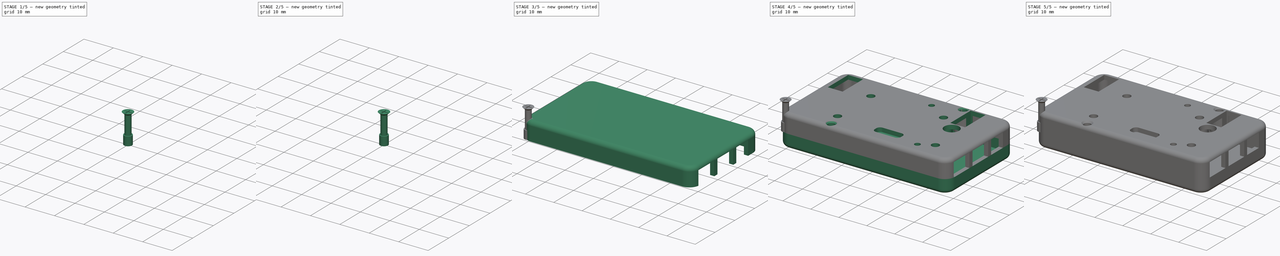
[diagram: build sequence overview — one tinted view per stage of 5, left to right]
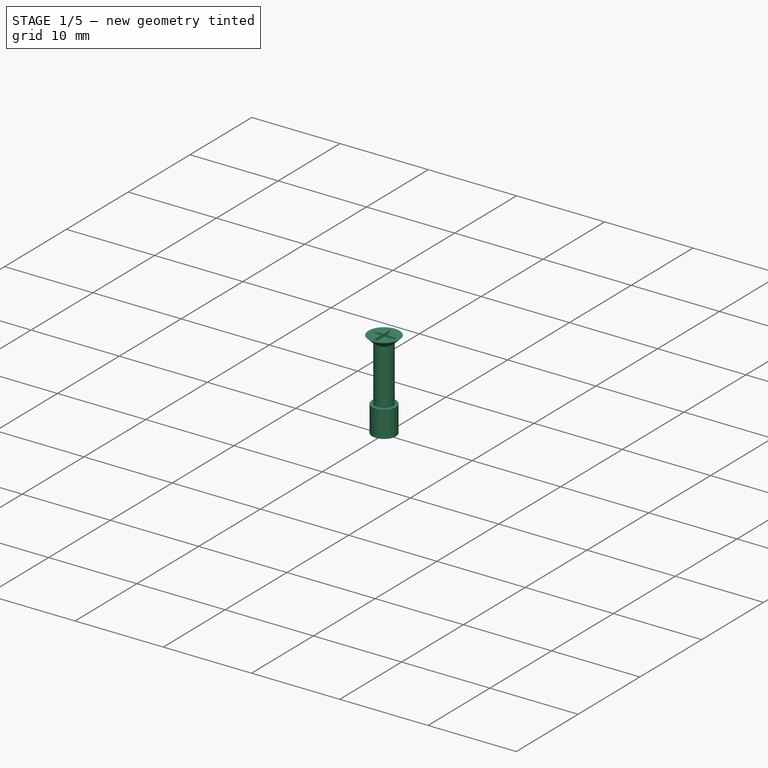
[diagram: stage 1 of 5 — iso view after this stage's code; geometry added in this stage tinted green]
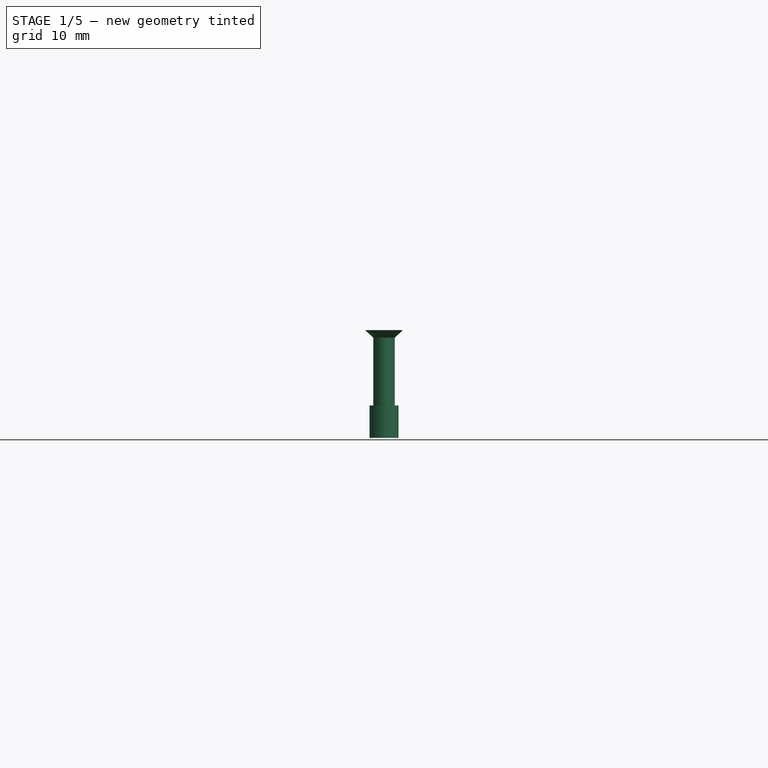
[diagram: stage 1 of 5 — front view after this stage's code; geometry added in this stage tinted green]
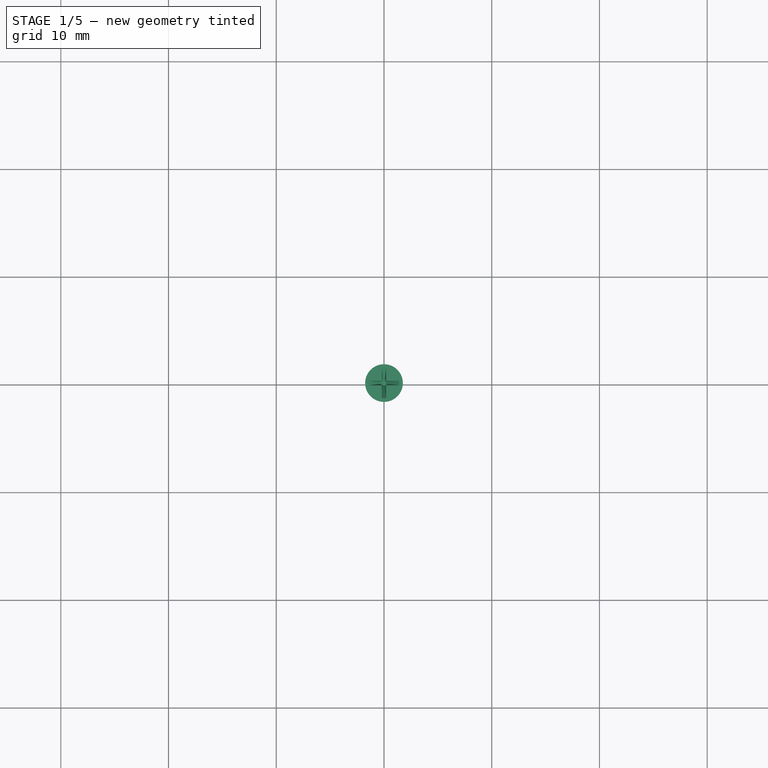
[diagram: stage 1 of 5 — top view after this stage's code; geometry added in this stage tinted green]
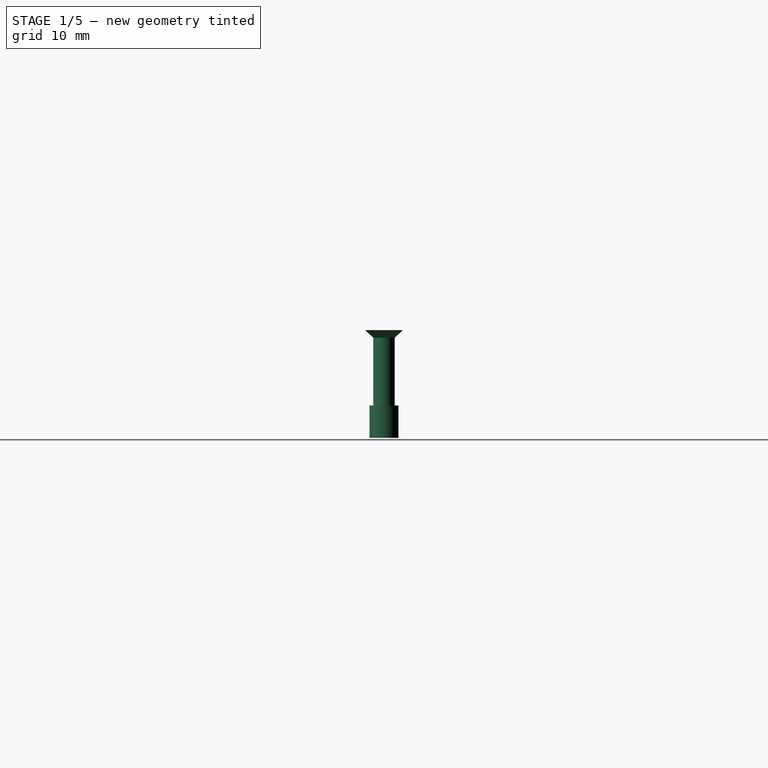
[diagram: stage 1 of 5 — right view after this stage's code; geometry added in this stage tinted green]
FCSTD DOCUMENT  (FreeCAD 0.21R33771 (Git))
Label: enclosure
License: All rights reserved
LicenseURL: https://en.wikipedia.org/wiki/All_rights_reserved
objects: Sketcher::SketchObject×30, PartDesign::AdditiveCylinder×30, PartDesign::Body×26, PartDesign::SubtractiveCylinder×18, PartDesign::AdditiveCone×10, PartDesign::SubtractiveLoft×10, PartDesign::Pad×6, PartDesign::SubtractiveBox×6, PartDesign::AdditiveBox×6, PartDesign::Pocket×4, PartDesign::Thickness×3, PartDesign::Chamfer×3, App::DocumentObjectGroup×3, PartDesign::SubtractiveCone×2, PartDesign::Fillet×2, Spreadsheet::Sheet×1, App::VRMLObject×1
note: 256 computed .brp shape members not serialized (recipe doc carries the construction recipe); baked Part::Feature solids carry a one-line shape summary decoded from their .brp

FEATURE [PartDesign::Body] Body007  label="Nut006"
  Group = -> [Cylinder016,Cylinder017]
  Origin = -> Origin007
  Placement = pos=(42.8,5.5,-4.9) rot=(0,0,1;0rad)
  Tip = -> Cylinder017
FEATURE [PartDesign::AdditiveCylinder] Cylinder018
  Angle = 360
  AttacherType = Attacher::AttachEngine3D
  FirstAngle = 0
  Height = 3
  MapMode = 5
  Radius = 1.35
  SecondAngle = 0
  Support = -> [XY_Plane008]
FEATURE [PartDesign::SubtractiveCylinder] Cylinder019
  Angle = 360
  AttacherType = Attacher::AttachEngine3D
  BaseFeature = -> Cylinder018
  FirstAngle = 0
  Height = 3
  MapMode = 5
  Radius = 1
  SecondAngle = 0
  Support = -> [XY_Plane008]
FEATURE [PartDesign::Body] Body008  label="Nut007"
  Group = -> [Cylinder018,Cylinder019]
  Origin = -> Origin008
  Placement = pos=(42.8,25.5,-4.9) rot=(0,0,1;0rad)
  Tip = -> Cylinder019
FEATURE [PartDesign::AdditiveCylinder] Cylinder020
  Angle = 360
  AttacherType = Attacher::AttachEngine3D
  FirstAngle = 0
  Height = 3
  MapMode = 5
  Radius = 1.35
  SecondAngle = 0
  Support = -> [XY_Plane009]
FEATURE [PartDesign::SubtractiveCylinder] Cylinder021
  Angle = 360
  AttacherType = Attacher::AttachEngine3D
  BaseFeature = -> Cylinder020
  FirstAngle = 0
  Height = 3
  MapMode = 5
  Radius = 1
  SecondAngle = 0
  Support = -> [XY_Plane009]
FEATURE [PartDesign::Body] Body009  label="Nut008"
  Group = -> [Cylinder020,Cylinder021]
  Origin = -> Origin009
  Placement = pos=(7.8,25.5,-4.9) rot=(0,0,1;0rad)
  Tip = -> Cylinder021
FEATURE [PartDesign::AdditiveCylinder] Cylinder022
  Angle = 360
  AttacherType = Attacher::AttachEngine3D
  AttachmentOffset = pos=(0,0,4) rot=(0,0,1;0rad)
  FirstAngle = 0
  Height = 5.5
  MapMode = 2
  Placement = pos=(0,0,4) rot=(0,0,1;0rad)
  Radius = 1
  SecondAngle = 0
  Support = -> [XY_Plane010]
FEATURE [PartDesign::AdditiveCone] Cone002
  Angle = 360
  AttacherType = Attacher::AttachEngine3D
  AttachmentOffset = pos=(0,0,9.3) rot=(0,0,1;0rad)
  BaseFeature = -> Cylinder022
  Height = 0.7
  MapMode = 5
  Placement = pos=(0,0,9.3) rot=(0,0,1;0rad)
  Radius1 = 1
  Radius2 = 1.75
  Support = -> [XY_Plane010]
FEATURE [Sketcher::SketchObject] Sketch008
  FullyConstrained = true
  MapMode = 5
  Placement = pos=(0,0,10) rot=(0,0,1;0rad)
  Support = -> [Cone002]
  sketch-geometry (18):
    g0: LineSegment StartX=-0.2 StartY=0.2 StartZ=0 EndX=-0.2 EndY=1.4 EndZ=0
    g1: LineSegment StartX=-0.2 StartY=1.4 StartZ=0 EndX=0.2 EndY=1.4 EndZ=0
    g2: LineSegment StartX=0.2 StartY=1.4 StartZ=0 EndX=0.2 EndY=0.2 EndZ=0
    g3: LineSegment StartX=0.2 StartY=0.2 StartZ=0 EndX=1.4 EndY=0.2 EndZ=0
    g4: LineSegment StartX=1.4 StartY=0.2 StartZ=0 EndX=1.4 EndY=-0.2 EndZ=0
    g5: LineSegment StartX=1.4 StartY=-0.2 StartZ=0 EndX=0.2 EndY=-0.2 EndZ=0
    g6: LineSegment StartX=0.2 StartY=-0.2 StartZ=0 EndX=0.2 EndY=-1.4 EndZ=0
    g7: LineSegment StartX=0.2 StartY=-1.4 StartZ=0 EndX=-0.2 EndY=-1.4 EndZ=0
    g8: LineSegment StartX=-0.2 StartY=-1.4 StartZ=0 EndX=-0.2 EndY=-0.2 EndZ=0
    g9: LineSegment StartX=-0.2 StartY=-0.2 StartZ=0 EndX=-1.4 EndY=-0.2 EndZ=0
    g10: LineSegment StartX=-1.4 StartY=-0.2 StartZ=0 EndX=-1.4 EndY=0.2 EndZ=0
    g11: LineSegment StartX=-1.4 StartY=0.2 StartZ=0 EndX=-0.2 EndY=0.2 EndZ=0
    g12: LineSegment StartX=-0.2 StartY=0.2 StartZ=0 EndX=0.2 EndY=0.2 EndZ=0
    g13: LineSegment StartX=0.2 StartY=0.2 StartZ=0 EndX=0.2 EndY=-0.2 EndZ=0
    g14: LineSegment StartX=0.2 StartY=-0.2 StartZ=0 EndX=-0.2 EndY=-0.2 EndZ=0
    g15: LineSegment StartX=-0.2 StartY=-0.2 StartZ=0 EndX=-0.2 EndY=0.2 EndZ=0
    g16: LineSegment StartX=-0.2 StartY=0.2 StartZ=0 EndX=0.2 EndY=-0.2 EndZ=0
    g17: LineSegment StartX=-0.2 StartY=-0.2 StartZ=0 EndX=0.2 EndY=0.2 EndZ=0
  constraints (48):
    c: Vertical(g0)
    c: Coincident(g0,g1)
    c: Horizontal(g1)
    c: Coincident(g1,g2)
    c: Vertical(g2)
    c: Coincident(g2,g3)
    c: Horizontal(g3)
    c: Coincident(g3,g4)
    c: Vertical(g4)
    c: Coincident(g4,g5)
    c: Horizontal(g5)
    c: Coincident(g5,g6)
    c: Vertical(g6)
    c: Coincident(g6,g7)
    c: Horizontal(g7)
    c: Coincident(g7,g8)
    c: Vertical(g8)
    c: Coincident(g8,g9)
    c: Horizontal(g9)
    c: Coincident(g9,g10)
    c: Vertical(g10)
    c: Coincident(g10,g11)
    c: Coincident(g11,g0)
    c: Horizontal(g11)
    c: Coincident(g12,g13)
    c: Coincident(g13,g14)
    c: Coincident(g14,g15)
    c: Coincident(g15,g12)
    c: Horizontal(g12)
    c: Horizontal(g14)
    c: Vertical(g13)
    c: Vertical(g15)
    c: Coincident(g12,g0)
    c: Coincident(g13,g5)
    c: Coincident(g8,g14)
    c: Coincident(g2,g12)
    c: Equal(g12,g13)
    c: Coincident(g16,g0)
    c: Coincident(g16,g5)
    c: Coincident(g17,g8)
    c: Coincident(g17,g2)
    c: PointOnObject(g-1,g17)
    c: PointOnObject(g-1,g16)
    c: DistanceX(g12,g12) = 0.4
    c: Equal(g2,g11)
    c: Equal(g11,g8)
    c: Equal(g8,g5)
    c: DistanceY(g2,g2) = 1.2
FEATURE [Sketcher::SketchObject] Sketch009
  AttachmentOffset = pos=(0,0,-1) rot=(0,0,1;0rad)
  FullyConstrained = true
  MapMode = 5
  Placement = pos=(0,0,9) rot=(0,0,1;0rad)
  Support = -> [Cone002]
  sketch-geometry (6):
    g0: LineSegment StartX=-0.2 StartY=0.2 StartZ=0 EndX=0.2 EndY=0.2 EndZ=0
    g1: LineSegment StartX=0.2 StartY=0.2 StartZ=0 EndX=0.2 EndY=-0.2 EndZ=0
    g2: LineSegment StartX=0.2 StartY=-0.2 StartZ=0 EndX=-0.2 EndY=-0.2 EndZ=0
    g3: LineSegment StartX=-0.2 StartY=-0.2 StartZ=0 EndX=-0.2 EndY=0.2 EndZ=0
    g4: LineSegment StartX=-0.2 StartY=0.2 StartZ=0 EndX=0.2 EndY=-0.2 EndZ=0
    g5: LineSegment StartX=-0.2 StartY=-0.2 StartZ=0 EndX=0.2 EndY=0.2 EndZ=0
  constraints (16):
    c: Coincident(g0,g1)
    c: Coincident(g1,g2)
    c: Coincident(g2,g3)
    c: Coincident(g3,g0)
    c: Horizontal(g0)
    c: Horizontal(g2)
    c: Vertical(g1)
    c: Vertical(g3)
    c: Equal(g0,g1)
    c: PointOnObject(g-1,g5)
    c: PointOnObject(g-1,g4)
    c: DistanceX(g0,g0) = 0.4
    c: Coincident(g5,g0)
    c: Coincident(g4,g0)
    c: Coincident(g4,g1)
    c: Coincident(g5,g2)
FEATURE [PartDesign::SubtractiveLoft] SubtractiveLoft
  BaseFeature = -> Cone002
  Closed = false
  Placement = pos=(0,0,9.3) rot=(0,0,1;0rad)
  Profile = -> Sketch008
  Ruled = false
  Sections = -> [Sketch009]
FEATURE [PartDesign::Body] Body010  label="ScrewP2.3_001"
  Group = -> [Cylinder022,Cone002,Sketch008,Sketch009,SubtractiveLoft]
  Origin = -> Origin010
  Placement = pos=(16,0.5,-3.5) rot=(0,0,1;0rad)
  Tip = -> SubtractiveLoft
FEATURE [PartDesign::AdditiveCylinder] Cylinder023
  Angle = 360
  AttacherType = Attacher::AttachEngine3D
  FirstAngle = 0
  Height = 9.5
  MapMode = 2
  Radius = 1
  SecondAngle = 0
  Support = -> [XY_Plane011]
FEATURE [PartDesign::AdditiveCone] Cone003
  Angle = 360
  AttacherType = Attacher::AttachEngine3D
  AttachmentOffset = pos=(0,0,9.3) rot=(0,0,1;0rad)
  BaseFeature = -> Cylinder023
  Height = 0.7
  MapMode = 5
  Placement = pos=(0,0,9.3) rot=(0,0,1;0rad)
  Radius1 = 1
  Radius2 = 1.75
  Support = -> [XY_Plane011]
FEATURE [Sketcher::SketchObject] Sketch010
  FullyConstrained = true
  MapMode = 5
  Placement = pos=(0,0,10) rot=(0,0,1;0rad)
  Support = -> [Cone003]
  sketch-geometry (18):
    g0: LineSegment StartX=-0.2 StartY=0.2 StartZ=0 EndX=-0.2 EndY=1.4 EndZ=0
    g1: LineSegment StartX=-0.2 StartY=1.4 StartZ=0 EndX=0.2 EndY=1.4 EndZ=0
    g2: LineSegment StartX=0.2 StartY=1.4 StartZ=0 EndX=0.2 EndY=0.2 EndZ=0
    g3: LineSegment StartX=0.2 StartY=0.2 StartZ=0 EndX=1.4 EndY=0.2 EndZ=0
    g4: LineSegment StartX=1.4 StartY=0.2 StartZ=0 EndX=1.4 EndY=-0.2 EndZ=0
    g5: LineSegment StartX=1.4 StartY=-0.2 StartZ=0 EndX=0.2 EndY=-0.2 EndZ=0
    g6: LineSegment StartX=0.2 StartY=-0.2 StartZ=0 EndX=0.2 EndY=-1.4 EndZ=0
    g7: LineSegment StartX=0.2 StartY=-1.4 StartZ=0 EndX=-0.2 EndY=-1.4 EndZ=0
    g8: LineSegment StartX=-0.2 StartY=-1.4 StartZ=0 EndX=-0.2 EndY=-0.2 EndZ=0
    g9: LineSegment StartX=-0.2 StartY=-0.2 StartZ=0 EndX=-1.4 EndY=-0.2 EndZ=0
    g10: LineSegment StartX=-1.4 StartY=-0.2 StartZ=0 EndX=-1.4 EndY=0.2 EndZ=0
    g11: LineSegment StartX=-1.4 StartY=0.2 StartZ=0 EndX=-0.2 EndY=0.2 EndZ=0
    g12: LineSegment StartX=-0.2 StartY=0.2 StartZ=0 EndX=0.2 EndY=0.2 EndZ=0
    g13: LineSegment StartX=0.2 StartY=0.2 StartZ=0 EndX=0.2 EndY=-0.2 EndZ=0
    g14: LineSegment StartX=0.2 StartY=-0.2 StartZ=0 EndX=-0.2 EndY=-0.2 EndZ=0
    g15: LineSegment StartX=-0.2 StartY=-0.2 StartZ=0 EndX=-0.2 EndY=0.2 EndZ=0
    g16: LineSegment StartX=-0.2 StartY=0.2 StartZ=0 EndX=0.2 EndY=-0.2 EndZ=0
    g17: LineSegment StartX=-0.2 StartY=-0.2 StartZ=0 EndX=0.2 EndY=0.2 EndZ=0
  constraints (48):
    c: Vertical(g0)
    c: Coincident(g0,g1)
    c: Horizontal(g1)
    c: Coincident(g1,g2)
    c: Vertical(g2)
    c: Coincident(g2,g3)
    c: Horizontal(g3)
    c: Coincident(g3,g4)
    c: Vertical(g4)
    c: Coincident(g4,g5)
    c: Horizontal(g5)
    c: Coincident(g5,g6)
    c: Vertical(g6)
    c: Coincident(g6,g7)
    c: Horizontal(g7)
    c: Coincident(g7,g8)
    c: Vertical(g8)
    c: Coincident(g8,g9)
    c: Horizontal(g9)
    c: Coincident(g9,g10)
    c: Vertical(g10)
    c: Coincident(g10,g11)
    c: Coincident(g11,g0)
    c: Horizontal(g11)
    c: Coincident(g12,g13)
    c: Coincident(g13,g14)
    c: Coincident(g14,g15)
    c: Coincident(g15,g12)
    c: Horizontal(g12)
    c: Horizontal(g14)
    c: Vertical(g13)
    c: Vertical(g15)
    c: Coincident(g12,g0)
    c: Coincident(g13,g5)
    c: Coincident(g8,g14)
    c: Coincident(g2,g12)
    c: Equal(g12,g13)
    c: Coincident(g16,g0)
    c: Coincident(g16,g5)
    c: Coincident(g17,g8)
    c: Coincident(g17,g2)
    c: PointOnObject(g-1,g17)
    c: PointOnObject(g-1,g16)
    c: DistanceX(g12,g12) = 0.4
    c: Equal(g2,g11)
    c: Equal(g11,g8)
    c: Equal(g8,g5)
    c: DistanceY(g2,g2) = 1.2
FEATURE [Sketcher::SketchObject] Sketch011
  AttachmentOffset = pos=(0,0,-1) rot=(0,0,1;0rad)
  FullyConstrained = true
  MapMode = 5
  Placement = pos=(0,0,9) rot=(0,0,1;0rad)
  Support = -> [Cone003]
  sketch-geometry (6):
    g0: LineSegment StartX=-0.2 StartY=0.2 StartZ=0 EndX=0.2 EndY=0.2 EndZ=0
    g1: LineSegment StartX=0.2 StartY=0.2 StartZ=0 EndX=0.2 EndY=-0.2 EndZ=0
    g2: LineSegment StartX=0.2 StartY=-0.2 StartZ=0 EndX=-0.2 EndY=-0.2 EndZ=0
    g3: LineSegment StartX=-0.2 StartY=-0.2 StartZ=0 EndX=-0.2 EndY=0.2 EndZ=0
    g4: LineSegment StartX=-0.2 StartY=0.2 StartZ=0 EndX=0.2 EndY=-0.2 EndZ=0
    g5: LineSegment StartX=-0.2 StartY=-0.2 StartZ=0 EndX=0.2 EndY=0.2 EndZ=0
  constraints (16):
    c: Coincident(g0,g1)
    c: Coincident(g1,g2)
    c: Coincident(g2,g3)
    c: Coincident(g3,g0)
    c: Horizontal(g0)
    c: Horizontal(g2)
    c: Vertical(g1)
    c: Vertical(g3)
    c: Equal(g0,g1)
    c: PointOnObject(g-1,g5)
    c: PointOnObject(g-1,g4)
    c: DistanceX(g0,g0) = 0.4
    c: Coincident(g5,g0)
    c: Coincident(g4,g0)
    c: Coincident(g4,g1)
    c: Coincident(g5,g2)
FEATURE [PartDesign::SubtractiveLoft] SubtractiveLoft001
  BaseFeature = -> Cone003
  Closed = false
  Placement = pos=(0,0,9.3) rot=(0,0,1;0rad)
  Profile = -> Sketch010
  Ruled = false
  Sections = -> [Sketch011]
FEATURE [PartDesign::Body] Body011  label="ScrewP2.3_002"
  Group = -> [Cylinder023,Cone003,Sketch010,Sketch011,SubtractiveLoft001]
  Origin = -> Origin011
  Placement = pos=(42.25,30.5,-3.5) rot=(0,0,1;0rad)
  Tip = -> SubtractiveLoft001
FEATURE [App::VRMLObject] bionico
  Resources = bionico/C_0402_1005Metric.wrl | bionico/ | bionico/ | bionico/ | bionico/ | bionico/ | bionico/ | bionico/ | bionico/ | bionico/ | bionico/ | bionico/ | bionico/ | bionico/ | bionico/ | bionico/ | bionico/ | bionico/ | bionico/ | bionico/ | bionico/
FEATURE [PartDesign::AdditiveBox] Box010
  AttacherType = Attacher::AttachEngine3D
  AttachmentOffset = pos=(-11.6,-1.7,-5) rot=(0,0,1;0rad)
  Height = 11.5
  Length = 80.7
  MapMode = 5
  Placement = pos=(-11.6,-1.7,-5) rot=(0,0,1;0rad)
  Support = -> [XY_Plane012]
  Width = 44.2
FEATURE [PartDesign::Fillet] Fillet
  Base = -> Box010 [Edge1,Edge3,Edge5,Edge7]
  BaseFeature = -> Box010
  Placement = pos=(-11.6,-1.7,-5) rot=(0,0,1;0rad)
  Radius = 5
  SupportTransform = false
  UseAllEdges = false
FEATURE [PartDesign::Thickness] Thickness002
  Base = -> Fillet [Face2,Face5]
  BaseFeature = -> Fillet
  Intersection = false
  Join = 0
  Mode = 0
  SupportTransform = false
  Value = 1.5
FEATURE [Sketcher::SketchObject] Sketch012
  AttachmentOffset = pos=(0,0,6.5) rot=(0,0,1;0rad)
  FullyConstrained = true
  MapMode = 5
  Placement = pos=(0,0,6.5) rot=(0,0,1;0rad)
  Support = -> [XY_Plane012]
  sketch-geometry (16):
    g0: LineSegment StartX=-6.6 StartY=-1.7 StartZ=0 EndX=64.1 EndY=-1.7 EndZ=0
    g1: LineSegment StartX=69.1 StartY=3.3 StartZ=0 EndX=69.1 EndY=37.5 EndZ=0
    g2: LineSegment StartX=64.1 StartY=42.5 StartZ=0 EndX=-6.6 EndY=42.5 EndZ=0
    g3: LineSegment StartX=-11.6 StartY=37.5 StartZ=0 EndX=-11.6 EndY=3.3 EndZ=0
    g4: ArcOfCircle CenterX=-6.6 CenterY=37.5 CenterZ=0 NormalX=0 NormalY=0 NormalZ=1 AngleXU=0 Radius=5 StartAngle=1.5708 EndAngle=3.14159
    g5: ArcOfCircle CenterX=64.1 CenterY=37.5 CenterZ=0 NormalX=0 NormalY=0 NormalZ=1 AngleXU=0 Radius=5 StartAngle=0 EndAngle=1.5708
    g6: ArcOfCircle CenterX=64.1 CenterY=3.3 CenterZ=0 NormalX=0 NormalY=0 NormalZ=1 AngleXU=0 Radius=5 StartAngle=4.71239 EndAngle=6.28319
    g7: ArcOfCircle CenterX=-6.6 CenterY=3.3 CenterZ=0 NormalX=0 NormalY=0 NormalZ=1 AngleXU=0 Radius=5 StartAngle=3.14159 EndAngle=4.71239
    g8: LineSegment StartX=-6.6 StartY=47.5 StartZ=0 EndX=64.1 EndY=47.5 EndZ=0
    g9: LineSegment StartX=74.1 StartY=37.5 StartZ=0 EndX=74.1 EndY=3.3 EndZ=0
    g10: LineSegment StartX=64.1 StartY=-6.7 StartZ=0 EndX=-6.6 EndY=-6.7 EndZ=0
    g11: LineSegment StartX=-16.6 StartY=3.3 StartZ=0 EndX=-16.6 EndY=37.5 EndZ=0
    g12: ArcOfCircle CenterX=-6.6 CenterY=37.5 CenterZ=0 NormalX=0 NormalY=0 NormalZ=1 AngleXU=0 Radius=10 StartAngle=1.5708 EndAngle=3.14159
    g13: ArcOfCircle CenterX=64.1 CenterY=37.5 CenterZ=0 NormalX=0 NormalY=0 NormalZ=1 AngleXU=0 Radius=10 StartAngle=0 EndAngle=1.5708
    g14: ArcOfCircle CenterX=64.1 CenterY=3.3 CenterZ=0 NormalX=0 NormalY=0 NormalZ=1 AngleXU=0 Radius=10 StartAngle=4.71239 EndAngle=6.28319
    g15: ArcOfCircle CenterX=-6.6 CenterY=3.3 CenterZ=0 NormalX=0 NormalY=0 NormalZ=1 AngleXU=0 Radius=10 StartAngle=3.14159 EndAngle=4.71239
  constraints (36):
    c: Horizontal(g0)
    c: Horizontal(g2)
    c: Vertical(g1)
    c: Vertical(g3)
    c: Tangent(g3,g4) = -1.5708
    c: Tangent(g2,g4) = -1.5708
    c: Tangent(g2,g5) = -1.5708
    c: Tangent(g1,g5) = -1.5708
    c: Tangent(g1,g6) = -1.5708
    c: Tangent(g0,g6) = -1.5708
    c: Tangent(g3,g7) = -1.5708
    c: Tangent(g0,g7) = -1.5708
    c: Equal(g4,g7)
    c: Equal(g4,g6)
    c: Equal(g4,g5)
    c: Radius(g4) = 5
    c: DistanceX(g3,g1) = 80.7
    c: DistanceY(g0,g2) = 44.2
    c: DistanceY(g0,g-1) = 1.7
    c: DistanceX(g3,g-1) = 11.6
    c: Horizontal(g8)
    c: Vertical(g9)
    c: Tangent(g11,g12) = 1.5708
    c: Tangent(g8,g12) = 1.5708
    c: Tangent(g8,g13) = 1.5708
    c: Tangent(g9,g13) = 1.5708
    c: Tangent(g9,g14) = 1.5708
    c: Tangent(g10,g14) = 1.5708
    c: Tangent(g10,g15) = 1.5708
    c: Tangent(g11,g15) = 1.5708
    c: Coincident(g15,g7)
    c: Coincident(g4,g12)
    c: Coincident(g5,g13)
    c: Coincident(g14,g6)
    c: Equal(g12,g15)
    c: DistanceX(g1,g9) = 5
FEATURE [PartDesign::Pad] Pad004
  BaseFeature = -> Thickness002
  Direction = (0,0,1)
  Length = 1.5
  Length2 = 10
  Profile = -> Sketch012
  ReferenceAxis = -> Sketch012 [N_Axis]
  Type = 0
FEATURE [PartDesign::AdditiveCylinder] Cylinder024
  Angle = 360
  AttacherType = Attacher::AttachEngine3D
  AttachmentOffset = pos=(-10.6,-0.7,-5) rot=(0,0,1;0rad)
  BaseFeature = -> Pad004
  FirstAngle = 0
  Height = 13
  MapMode = 5
  Placement = pos=(-10.6,-0.7,-5) rot=(0,0,1;0rad)
  Radius = 2.65
  SecondAngle = 0
  Support = -> [XY_Plane012]
FEATURE [PartDesign::AdditiveCylinder] Cylinder025
  Angle = 360
  AttacherType = Attacher::AttachEngine3D
  AttachmentOffset = pos=(68.1,-0.7,-5) rot=(0,0,1;0rad)
  BaseFeature = -> Cylinder024
  FirstAngle = 0
  Height = 13
  MapMode = 5
  Placement = pos=(68.1,-0.7,-5) rot=(0,0,1;0rad)
  Radius = 2.65
  SecondAngle = 0
  Support = -> [XY_Plane012]
FEATURE [PartDesign::AdditiveCylinder] Cylinder026
  Angle = 360
  AttacherType = Attacher::AttachEngine3D
  AttachmentOffset = pos=(-10.6,41.5,-5) rot=(0,0,1;0rad)
  BaseFeature = -> Cylinder025
  FirstAngle = 0
  Height = 13
  MapMode = 5
  Placement = pos=(-10.6,41.5,-5) rot=(0,0,1;0rad)
  Radius = 2.65
  SecondAngle = 0
  Support = -> [XY_Plane012]
FEATURE [PartDesign::AdditiveCylinder] Cylinder027
  Angle = 360
  AttacherType = Attacher::AttachEngine3D
  AttachmentOffset = pos=(68.1,41.5,-5) rot=(0,0,1;0rad)
  BaseFeature = -> Cylinder026
  FirstAngle = 0
  Height = 13
  MapMode = 5
  Placement = pos=(68.1,41.5,-5) rot=(0,0,1;0rad)
  Radius = 2.65
  SecondAngle = 0
  Support = -> [XY_Plane012]
FEATURE [PartDesign::SubtractiveCylinder] Cylinder028
  Angle = 360
  AttacherType = Attacher::AttachEngine3D
  AttachmentOffset = pos=(-10.6,-0.7,-5) rot=(0,0,1;0rad)
  BaseFeature = -> Cylinder027
  FirstAngle = 0
  Height = 13
  MapMode = 5
  Placement = pos=(-10.6,-0.7,-5) rot=(0,0,1;0rad)
  Radius = 1.35
  SecondAngle = 0
  Support = -> [XY_Plane012]
FEATURE [PartDesign::SubtractiveCylinder] Cylinder029
  Angle = 360
  AttacherType = Attacher::AttachEngine3D
  AttachmentOffset = pos=(-10.6,41.5,-5) rot=(0,0,1;0rad)
  BaseFeature = -> Cylinder028
  FirstAngle = 0
  Height = 13
  MapMode = 5
  Placement = pos=(-10.6,41.5,-5) rot=(0,0,1;0rad)
  Radius = 1.37
  SecondAngle = 0
  Support = -> [XY_Plane012]
FEATURE [PartDesign::SubtractiveCylinder] Cylinder030
  Angle = 360
  AttacherType = Attacher::AttachEngine3D
  AttachmentOffset = pos=(68.1,-0.7,-5) rot=(0,0,1;0rad)
  BaseFeature = -> Cylinder029
  FirstAngle = 0
  Height = 13
  MapMode = 5
  Placement = pos=(68.1,-0.7,-5) rot=(0,0,1;0rad)
  Radius = 1.35
  SecondAngle = 0
  Support = -> [XY_Plane012]
FEATURE [PartDesign::SubtractiveCylinder] Cylinder031
  Angle = 360
  AttacherType = Attacher::AttachEngine3D
  AttachmentOffset = pos=(68.1,41.5,-5) rot=(0,0,1;0rad)
  BaseFeature = -> Cylinder030
  FirstAngle = 0
  Height = 13
  MapMode = 5
  Placement = pos=(68.1,41.5,-5) rot=(0,0,1;0rad)
  Radius = 1.35
  SecondAngle = 0
  Support = -> [XY_Plane012]
FEATURE [PartDesign::Body] Body012  label="Hatch"
  Group = -> [Box010,Fillet,Thickness002,Sketch012,Pad004,Cylinder024,Cylinder025,Cylinder026,Cylinder027,Cylinder028,Cylinder029,Cylinder030,Cylinder031]
  Origin = -> Origin012
  Tip = -> Cylinder031
FEATURE [Sketcher::SketchObject] Sketch013
  AttachmentOffset = pos=(0,0,8) rot=(0,0,1;0rad)
  FullyConstrained = true
  MapMode = 5
  Placement = pos=(0,0,8) rot=(0,0,1;0rad)
  Support = -> [XY_Plane013]
  sketch-geometry (35):
    g0: LineSegment StartX=-10.6 StartY=41.5 StartZ=0 EndX=68.1 EndY=41.5 EndZ=0
    g1: LineSegment StartX=68.1 StartY=41.5 StartZ=0 EndX=68.1 EndY=-0.7 EndZ=0
    g2: LineSegment StartX=68.1 StartY=-0.7 StartZ=0 EndX=-10.6 EndY=-0.7 EndZ=0
    g3: LineSegment StartX=-10.6 StartY=-0.7 StartZ=0 EndX=-10.6 EndY=41.5 EndZ=0
    g4: ArcOfCircle CenterX=-10.6 CenterY=41.5 CenterZ=0 NormalX=0 NormalY=0 NormalZ=1 AngleXU=0 Radius=2.85 StartAngle=4.48534 EndAngle=6.51023
    g5: ArcOfCircle CenterX=68.1 CenterY=41.5 CenterZ=0 NormalX=0 NormalY=0 NormalZ=1 AngleXU=0 Radius=2.85 StartAngle=2.91454 EndAngle=4.93944
    g6: ArcOfCircle CenterX=68.1 CenterY=-0.7 CenterZ=0 NormalX=0 NormalY=0 NormalZ=1 AngleXU=0 Radius=2.85 StartAngle=1.34375 EndAngle=3.36864
    g7: ArcOfCircle CenterX=-10.6 CenterY=-0.7 CenterZ=0 NormalX=0 NormalY=0 NormalZ=1 AngleXU=0 Radius=2.85 StartAngle=6.05614 EndAngle=8.08103
    g8: LineSegment StartX=-6.6 StartY=37.5 StartZ=0 EndX=64.1 EndY=37.5 EndZ=0
    g9: LineSegment StartX=64.1 StartY=37.5 StartZ=0 EndX=64.1 EndY=3.3 EndZ=0
    g10: LineSegment StartX=64.1 StartY=3.3 StartZ=0 EndX=-6.6 EndY=3.3 EndZ=0
    g11: LineSegment StartX=-6.6 StartY=3.3 StartZ=0 EndX=-6.6 EndY=37.5 EndZ=0
    g12: LineSegment StartX=-10.6 StartY=41.5 StartZ=0 EndX=-6.6 EndY=37.5 EndZ=0
    g13: LineSegment StartX=64.1 StartY=3.3 StartZ=0 EndX=68.1 EndY=-0.7 EndZ=0
    g14: LineSegment StartX=68.1 StartY=41.5 StartZ=0 EndX=64.1 EndY=37.5 EndZ=0
    g15: LineSegment StartX=-10.6 StartY=-0.7 StartZ=0 EndX=-6.6 EndY=3.3 EndZ=0
    g16: ArcOfCircle CenterX=-6.6 CenterY=37.5 CenterZ=0 NormalX=0 NormalY=0 NormalZ=1 AngleXU=0 Radius=4.8 StartAngle=1.5708 EndAngle=1.82846
    g17: ArcOfCircle CenterX=-6.6 CenterY=37.5 CenterZ=0 NormalX=0 NormalY=0 NormalZ=1 AngleXU=0 Radius=4.8 StartAngle=2.88393 EndAngle=3.14159
    g18: LineSegment StartX=-6.6 StartY=42.3 StartZ=0 EndX=64.1 EndY=42.3 EndZ=0
    g19: ArcOfCircle CenterX=64.1 CenterY=37.5 CenterZ=0 NormalX=0 NormalY=0 NormalZ=1 AngleXU=0 Radius=4.8 StartAngle=1.31313 EndAngle=1.5708
    g20: ArcOfCircle CenterX=64.1 CenterY=37.5 CenterZ=0 NormalX=0 NormalY=0 NormalZ=1 AngleXU=0 Radius=4.8 StartAngle=5e-16 EndAngle=0.257664
    g21: LineSegment StartX=68.9 StartY=37.5 StartZ=0 EndX=68.9 EndY=3.3 EndZ=0
    g22: ArcOfCircle CenterX=64.1 CenterY=3.3 CenterZ=0 NormalX=0 NormalY=0 NormalZ=1 AngleXU=0 Radius=4.8 StartAngle=6.02552 EndAngle=6.28319
    g23: ArcOfCircle CenterX=64.1 CenterY=3.3 CenterZ=0 NormalX=0 NormalY=0 NormalZ=1 AngleXU=0 Radius=4.8 StartAngle=4.71239 EndAngle=4.97005
    g24: LineSegment StartX=64.1 StartY=-1.5 StartZ=0 EndX=-6.6 EndY=-1.5 EndZ=0
    g25: ArcOfCircle CenterX=-6.6 CenterY=3.3 CenterZ=0 NormalX=0 NormalY=0 NormalZ=1 AngleXU=0 Radius=4.8 StartAngle=4.45473 EndAngle=4.71239
    g26: ArcOfCircle CenterX=-6.6 CenterY=3.3 CenterZ=0 NormalX=0 NormalY=0 NormalZ=1 AngleXU=0 Radius=4.8 StartAngle=3.14159 EndAngle=3.39926
    g27: LineSegment StartX=-11.4 StartY=37.5 StartZ=0 EndX=-11.4 EndY=3.3 EndZ=0
    g28: LineSegment StartX=-11.4 StartY=42.3 StartZ=0 EndX=68.9 EndY=42.3 EndZ=0
    g29: LineSegment StartX=68.9 StartY=42.3 StartZ=0 EndX=68.9 EndY=-1.5 EndZ=0
    g30: LineSegment StartX=68.9 StartY=-1.5 StartZ=0 EndX=-11.4 EndY=-1.5 EndZ=0
    g31: LineSegment StartX=-11.4 StartY=-1.5 StartZ=0 EndX=-11.4 EndY=42.3 EndZ=0
    g32: LineSegment StartX=-11.4 StartY=42.3 StartZ=0 EndX=-10.6 EndY=41.5 EndZ=0
    g33: LineSegment StartX=68.1 StartY=41.5 StartZ=0 EndX=68.9 EndY=42.3 EndZ=0
    g34: LineSegment StartX=68.1 StartY=-0.7 StartZ=0 EndX=68.9 EndY=-1.5 EndZ=0
  constraints (90):
    c: Coincident(g0,g1)
    c: Coincident(g1,g2)
    c: Coincident(g2,g3)
    c: Coincident(g3,g0)
    c: Horizontal(g0)
    c: Horizontal(g2)
    c: Vertical(g1)
    c: Vertical(g3)
    c: DistanceY(g1,g1) = 42.2
    c: DistanceX(g0,g0) = 78.7
    c: Coincident(g4,g0)
    c: Coincident(g5,g0)
    c: Coincident(g6,g1)
    c: Coincident(g7,g2)
    c: Coincident(g8,g9)
    c: Coincident(g9,g10)
    c: Coincident(g10,g11)
    c: Coincident(g11,g8)
    c: Horizontal(g8)
    c: Horizontal(g10)
    c: Vertical(g9)
    c: Vertical(g11)
    c: Coincident(g12,g4)
    c: Coincident(g12,g8)
    c: Coincident(g13,g9)
    c: Coincident(g13,g6)
    c: Coincident(g14,g5)
    c: Coincident(g14,g8)
    c: Coincident(g15,g7)
    c: Coincident(g15,g10)
    c: Equal(g15,g14)
    c: Equal(g12,g13)
    c: DistanceY(g8,g4) = 4
    c: Angle(g3,g12) = 0.785398
    c: DistanceX(g7,g-1) = 10.6
    c: DistanceY(g7,g-1) = 0.7
    c: Equal(g7,g4)
    c: Equal(g7,g5)
    c: Equal(g7,g6)
    c: Radius(g7) = 2.85
    c: Coincident(g16,g8)
    c: Coincident(g16,g4)
    c: Coincident(g17,g16)
    c: Coincident(g17,g4)
    c: Horizontal(g18)
    c: Tangent(g18,g16) = 1.5708
    c: Coincident(g19,g8)
    c: Coincident(g19,g5)
    c: Tangent(g19,g18) = 1.5708
    c: Coincident(g20,g19)
    c: Coincident(g20,g5)
    c: Vertical(g21)
    c: Tangent(g21,g20) = 1.5708
    c: Coincident(g22,g9)
    c: Coincident(g22,g6)
    c: Tangent(g22,g21) = 1.5708
    c: Coincident(g23,g22)
    c: Coincident(g23,g6)
    c: Horizontal(g24)
    c: Tangent(g24,g23) = 1.5708
    c: Coincident(g25,g10)
    c: Coincident(g25,g7)
    c: Tangent(g25,g24) = 1.5708
    c: Coincident(g26,g25)
    c: Coincident(g26,g7)
    c: Vertical(g27)
    c: Tangent(g27,g26) = -1.5708
    c: Tangent(g27,g17) = -1.5708
    c: Coincident(g28,g29)
    c: Coincident(g29,g30)
    c: Coincident(g30,g31)
    c: Coincident(g31,g28)
    c: Horizontal(g28)
    c: Horizontal(g30)
    c: Vertical(g29)
    c: Vertical(g31)
    c: PointOnObject(g23,g30)
    c: PointOnObject(g26,g31)
    c: PointOnObject(g16,g28)
    c: PointOnObject(g20,g29)
    c: Coincident(g32,g28)
    c: Coincident(g32,g4)
    c: Parallel(g12,g32)
    c: Coincident(g33,g5)
    c: Coincident(g33,g28)
    c: Parallel(g33,g14)
    c: Coincident(g34,g6)
    c: Coincident(g34,g29)
    c: Parallel(g34,g13)
    c: DistanceX(g30,g7) = 0.8
FEATURE [PartDesign::Pad] Pad005
  Direction = (0,0,1)
  Length = 1.5
  Length2 = 10
  Profile = -> Sketch013
  ReferenceAxis = -> Sketch013 [N_Axis]
  Reversed = true
  Type = 0
FEATURE [PartDesign::AdditiveBox] Box011
  AttacherType = Attacher::AttachEngine3D
  AttachmentOffset = pos=(-16.6,-6.7,8) rot=(0,0,1;0rad)
  BaseFeature = -> Pad005
  Height = 1.5
  Length = 90.7
  MapMode = 5
  Placement = pos=(-16.6,-6.7,8) rot=(0,0,1;0rad)
  Support = -> [XY_Plane013]
  Width = 54.2
FEATURE [PartDesign::Fillet] Fillet001
  Base = -> Box011 [Edge1,Edge6,Edge11,Edge3]
  BaseFeature = -> Box011
  Placement = pos=(-16.6,-6.7,8) rot=(0,0,1;0rad)
  Radius = 10
  SupportTransform = false
  UseAllEdges = false
FEATURE [Sketcher::SketchObject] Sketch014
  AttachmentOffset = pos=(0,0,9.5) rot=(0,0,1;0rad)
  FullyConstrained = true
  MapMode = 5
  Placement = pos=(0,0,9.5) rot=(0,0,1;0rad)
  Support = -> [XY_Plane013]
  sketch-geometry (44):
    g0: LineSegment StartX=0.95 StartY=30.59 StartZ=0 EndX=6.25 EndY=30.59 EndZ=0
    g1: LineSegment StartX=6.25 StartY=30.59 StartZ=0 EndX=6.25 EndY=20.19 EndZ=0
    g2: LineSegment StartX=6.25 StartY=20.19 StartZ=0 EndX=0.95 EndY=20.19 EndZ=0
    g3: LineSegment StartX=0.95 StartY=20.19 StartZ=0 EndX=0.95 EndY=30.59 EndZ=0
    g4: LineSegment StartX=44.55 StartY=30.9 StartZ=0 EndX=49.85 EndY=30.9 EndZ=0
    g5: LineSegment StartX=49.85 StartY=30.9 StartZ=0 EndX=49.85 EndY=20.5 EndZ=0
    g6: LineSegment StartX=49.85 StartY=20.5 StartZ=0 EndX=44.55 EndY=20.5 EndZ=0
    g7: LineSegment StartX=44.55 StartY=20.5 StartZ=0 EndX=44.55 EndY=30.9 EndZ=0
    g8: LineSegment StartX=30.2 StartY=2.925 StartZ=0 EndX=37 EndY=2.925 EndZ=0
    g9: LineSegment StartX=37 StartY=6.425 StartZ=0 EndX=30.2 EndY=6.425 EndZ=0
    g10: Circle CenterX=47.135 CenterY=17.52 CenterZ=0 NormalX=0 NormalY=0 NormalZ=1 AngleXU=0 Radius=2.65
    g11: LineSegment StartX=0.95 StartY=30.59 StartZ=0 EndX=6.25 EndY=20.19 EndZ=0
    g12: LineSegment StartX=0.95 StartY=20.19 StartZ=0 EndX=6.25 EndY=30.59 EndZ=0
    g13: LineSegment StartX=44.55 StartY=20.5 StartZ=0 EndX=49.85 EndY=30.9 EndZ=0
    g14: LineSegment StartX=44.55 StartY=30.9 StartZ=0 EndX=49.85 EndY=20.5 EndZ=0
    g15: GeomPoint X=3.6 Y=25.39 Z=0
    g16: GeomPoint X=47.2 Y=25.7 Z=0
    g17: LineSegment StartX=30.2 StartY=6.425 StartZ=0 EndX=37 EndY=2.925 EndZ=0
    g18: LineSegment StartX=37 StartY=6.425 StartZ=0 EndX=30.2 EndY=2.925 EndZ=0
    g19: GeomPoint X=33.6 Y=4.675 Z=0
    g20: LineSegment StartX=30.2 StartY=6.425 StartZ=0 EndX=30.2 EndY=2.925 EndZ=0
    g21: LineSegment StartX=28.9 StartY=5.125 StartZ=0 EndX=28.9 EndY=4.225 EndZ=0
    g22: LineSegment StartX=38.3 StartY=5.125 StartZ=0 EndX=38.3 EndY=4.225 EndZ=0
    g23: LineSegment StartX=28.9 StartY=5.125 StartZ=0 EndX=38.3 EndY=4.225 EndZ=0
    g24: LineSegment StartX=38.3 StartY=5.125 StartZ=0 EndX=28.9 EndY=4.225 EndZ=0
    g25: ArcOfCircle CenterX=30.2 CenterY=5.125 CenterZ=0 NormalX=0 NormalY=0 NormalZ=1 AngleXU=0 Radius=1.3 StartAngle=1.5708 EndAngle=3.14159
    g26: ArcOfCircle CenterX=30.2 CenterY=4.225 CenterZ=0 NormalX=0 NormalY=0 NormalZ=1 AngleXU=0 Radius=1.3 StartAngle=3.14159 EndAngle=4.71239
    g27: ArcOfCircle CenterX=37 CenterY=5.125 CenterZ=0 NormalX=0 NormalY=0 NormalZ=1 AngleXU=0 Radius=1.3 StartAngle=3e-16 EndAngle=1.5708
    g28: ArcOfCircle CenterX=37 CenterY=4.225 CenterZ=0 NormalX=0 NormalY=0 NormalZ=1 AngleXU=0 Radius=1.3 StartAngle=4.71239 EndAngle=6.28319
    g29: LineSegment StartX=37 StartY=6.425 StartZ=0 EndX=37 EndY=2.925 EndZ=0
    g30: Circle CenterX=45.15 CenterY=2.85 CenterZ=0 NormalX=0 NormalY=0 NormalZ=1 AngleXU=0 Radius=1
    g31: Circle CenterX=33.1 CenterY=27.275 CenterZ=0 NormalX=0 NormalY=0 NormalZ=1 AngleXU=0 Radius=1
    g32: Circle CenterX=14.8 CenterY=22.4 CenterZ=0 NormalX=0 NormalY=0 NormalZ=1 AngleXU=0 Radius=1.1
    g33: Circle CenterX=40.8 CenterY=22.4 CenterZ=0 NormalX=0 NormalY=0 NormalZ=1 AngleXU=0 Radius=1.1
    g34: Circle CenterX=49.8 CenterY=5.4 CenterZ=0 NormalX=0 NormalY=0 NormalZ=1 AngleXU=0 Radius=1.1
    g35: Circle CenterX=14.8 CenterY=5.4 CenterZ=0 NormalX=0 NormalY=0 NormalZ=1 AngleXU=0 Radius=1.1
    g36: LineSegment StartX=-10.6 StartY=41.5 StartZ=0 EndX=68.1 EndY=41.5 EndZ=0
    g37: LineSegment StartX=68.1 StartY=41.5 StartZ=0 EndX=68.1 EndY=-0.7 EndZ=0
    g38: LineSegment StartX=68.1 StartY=-0.7 StartZ=0 EndX=-10.6 EndY=-0.7 EndZ=0
    g39: LineSegment StartX=-10.6 StartY=-0.7 StartZ=0 EndX=-10.6 EndY=41.5 EndZ=0
    g40: Circle CenterX=-10.6 CenterY=41.5 CenterZ=0 NormalX=0 NormalY=0 NormalZ=1 AngleXU=0 Radius=1.1
    g41: Circle CenterX=68.1 CenterY=41.5 CenterZ=0 NormalX=0 NormalY=0 NormalZ=1 AngleXU=0 Radius=1.1
    g42: Circle CenterX=68.1 CenterY=-0.7 CenterZ=0 NormalX=0 NormalY=0 NormalZ=1 AngleXU=0 Radius=1.1
    g43: Circle CenterX=-10.6 CenterY=-0.7 CenterZ=0 NormalX=0 NormalY=0 NormalZ=1 AngleXU=0 Radius=1.1
  constraints (111):
    c: Coincident(g0,g1)
    c: Coincident(g1,g2)
    c: Coincident(g2,g3)
    c: Coincident(g3,g0)
    c: Horizontal(g0)
    c: Horizontal(g2)
    c: Vertical(g1)
    c: Vertical(g3)
    c: Coincident(g4,g5)
    c: Coincident(g5,g6)
    c: Coincident(g6,g7)
    c: Coincident(g7,g4)
    c: Horizontal(g4)
    c: Horizontal(g6)
    c: Vertical(g5)
    c: Vertical(g7)
    c: Coincident(g18,g8) = -1.5708
    c: Coincident(g8,g17) = -1.5708
    c: Coincident(g18,g9) = -1.5708
    c: Coincident(g9,g17) = -1.5708
    c: Horizontal(g8)
    c: DistanceX(g-1,g10) = 47.135
    c: DistanceY(g-1,g10) = 17.52
    c: Radius(g10) = 2.65
    c: Equal(g0,g4)
    c: Equal(g1,g5)
    c: DistanceX(g0,g0) = 5.3
    c: DistanceY(g3,g3) = 10.4
    c: Coincident(g11,g0)
    c: Coincident(g11,g1)
    c: Coincident(g12,g2)
    c: Coincident(g12,g0)
    c: Coincident(g13,g6)
    c: Coincident(g13,g4)
    c: Coincident(g14,g4)
    c: Coincident(g14,g5)
    c: PointOnObject(g15,g11)
    c: PointOnObject(g16,g14)
    c: PointOnObject(g16,g13)
    c: PointOnObject(g15,g12)
    c: DistanceX(g-1,g16) = 47.2
    c: DistanceY(g-1,g16) = 25.7
    c: DistanceY(g-1,g15) = 25.39
    c: DistanceX(g-1,g15) = 3.6
    c: PointOnObject(g19,g17)
    c: PointOnObject(g19,g18)
    c: DistanceX(g-1,g19) = 33.6
    c: DistanceY(g-1,g19) = 4.675
    c: Coincident(g20,g9)
    c: Coincident(g20,g8)
    c: Vertical(g20)
    c: DistanceY(g20,g20) = 3.5
    c: Vertical(g21)
    c: Vertical(g22)
    c: DistanceX(g21,g22) = 9.4
    c: Coincident(g23,g21)
    c: Coincident(g23,g22)
    c: Coincident(g24,g22)
    c: Coincident(g24,g21)
    c: PointOnObject(g19,g23)
    c: PointOnObject(g19,g24)
    c: Equal(g22,g21)
    c: Coincident(g29,g9)
    c: Coincident(g29,g8)
    c: Tangent(g25,g9) = -1.5708
    c: Tangent(g25,g21) = -1.5708
    c: Tangent(g26,g21) = -1.5708
    c: Tangent(g26,g8) = -1.5708
    c: Tangent(g28,g8) = -1.5708
    c: Tangent(g28,g22) = 1.5708
    c: Tangent(g27,g22) = 1.5708
    c: Tangent(g27,g9) = -1.5708
    c: Radius(g25) = 1.3
    c: Equal(g31,g30)
    c: Diameter(g31) = 2
    c: DistanceX(g-1,g30) = 45.15
    c: DistanceY(g-1,g30) = 2.85
    c: DistanceY(g-1,g31) = 27.275
    c: DistanceX(g-1,g31) = 33.1
    c: Equal(g35,g32)
    c: Equal(g35,g33)
    c: Equal(g35,g34)
    c: Diameter(g35) = 2.2
    c: DistanceX(g-1,g32) = 14.8
    c: DistanceY(g-1,g32) = 22.4
    c: DistanceX(g-1,g35) = 14.8
    c: DistanceY(g-1,g35) = 5.4
    c: DistanceX(g-1,g34) = 49.8
    c: DistanceY(g-1,g34) = 5.4
    c: DistanceX(g-1,g33) = 40.8
    c: DistanceY(g-1,g33) = 22.4
    c: Coincident(g36,g37)
    c: Coincident(g37,g38)
    c: Coincident(g38,g39)
    c: Coincident(g39,g36)
    c: Horizontal(g36)
    c: Horizontal(g38)
    c: Vertical(g37)
    c: Vertical(g39)
    c: DistanceX(g36,g36) = 78.7
    c: DistanceY(g37,g37) = 42.2
    c: DistanceY(g38,g-1) = 0.7
    c: DistanceX(g38,g-1) = 10.6
    c: Coincident(g40,g36)
    c: Coincident(g41,g36)
    c: Coincident(g42,g37)
    c: Coincident(g43,g38)
    c: Equal(g43,g40)
    c: Equal(g43,g41)
    c: Equal(g43,g42)
    c: Equal(g35,g43)
FEATURE [PartDesign::Pocket] Pocket003
  BaseFeature = -> Fillet001
  Direction = (0,0,-1)
  Length = 5
  Length2 = 5
  Placement = pos=(-16.6,-6.7,8) rot=(0,0,1;0rad)
  Profile = -> Sketch014
  ReferenceAxis = -> Sketch014 [N_Axis]
  Type = 1
FEATURE [PartDesign::Chamfer] Chamfer002
  Angle = 45
  Base = -> Pocket003 [Edge12,Edge31,Edge38,Edge23,Edge32,Edge24,Edge13,Edge30]
  BaseFeature = -> Pocket003
  ChamferType = 0
  FlipDirection = false
  Placement = pos=(-16.6,-6.7,8) rot=(0,0,1;0rad)
  Size = 1
  Size2 = 1
  SupportTransform = false
  UseAllEdges = false
FEATURE [PartDesign::Body] Body013  label="Lid"
  Group = -> [Sketch013,Pad005,Box011,Fillet001,Sketch014,Pocket003,Chamfer002]
  Origin = -> Origin013
  Tip = -> Chamfer002
FEATURE [App::DocumentObjectGroup] Group  label="Fab"
  Group = -> [Body,Body001,Body012,Body013]
FEATURE [PartDesign::AdditiveCylinder] Cylinder032
  Angle = 360
  AttacherType = Attacher::AttachEngine3D
  AttachmentOffset = pos=(0,0,4) rot=(0,0,1;0rad)
  FirstAngle = 0
  Height = 5.5
  MapMode = 2
  Placement = pos=(0,0,4) rot=(0,0,1;0rad)
  Radius = 1
  SecondAngle = 0
  Support = -> [XY_Plane014]
FEATURE [PartDesign::AdditiveCone] Cone004
  Angle = 360
  AttacherType = Attacher::AttachEngine3D
  AttachmentOffset = pos=(0,0,9.3) rot=(0,0,1;0rad)
  BaseFeature = -> Cylinder032
  Height = 0.7
  MapMode = 5
  Placement = pos=(0,0,9.3) rot=(0,0,1;0rad)
  Radius1 = 1
  Radius2 = 2
  Support = -> [XY_Plane014]
FEATURE [Sketcher::SketchObject] Sketch015
  FullyConstrained = true
  MapMode = 5
  Placement = pos=(0,0,10) rot=(0,0,1;0rad)
  Support = -> [Cone004]
  sketch-geometry (18):
    g0: LineSegment StartX=-0.2 StartY=0.2 StartZ=0 EndX=-0.2 EndY=1.4 EndZ=0
    g1: LineSegment StartX=-0.2 StartY=1.4 StartZ=0 EndX=0.2 EndY=1.4 EndZ=0
    g2: LineSegment StartX=0.2 StartY=1.4 StartZ=0 EndX=0.2 EndY=0.2 EndZ=0
    g3: LineSegment StartX=0.2 StartY=0.2 StartZ=0 EndX=1.4 EndY=0.2 EndZ=0
    g4: LineSegment StartX=1.4 StartY=0.2 StartZ=0 EndX=1.4 EndY=-0.2 EndZ=0
    g5: LineSegment StartX=1.4 StartY=-0.2 StartZ=0 EndX=0.2 EndY=-0.2 EndZ=0
    g6: LineSegment StartX=0.2 StartY=-0.2 StartZ=0 EndX=0.2 EndY=-1.4 EndZ=0
    g7: LineSegment StartX=0.2 StartY=-1.4 StartZ=0 EndX=-0.2 EndY=-1.4 EndZ=0
    g8: LineSegment StartX=-0.2 StartY=-1.4 StartZ=0 EndX=-0.2 EndY=-0.2 EndZ=0
    g9: LineSegment StartX=-0.2 StartY=-0.2 StartZ=0 EndX=-1.4 EndY=-0.2 EndZ=0
    g10: LineSegment StartX=-1.4 StartY=-0.2 StartZ=0 EndX=-1.4 EndY=0.2 EndZ=0
    g11: LineSegment StartX=-1.4 StartY=0.2 StartZ=0 EndX=-0.2 EndY=0.2 EndZ=0
    g12: LineSegment StartX=-0.2 StartY=0.2 StartZ=0 EndX=0.2 EndY=0.2 EndZ=0
    g13: LineSegment StartX=0.2 StartY=0.2 StartZ=0 EndX=0.2 EndY=-0.2 EndZ=0
    g14: LineSegment StartX=0.2 StartY=-0.2 StartZ=0 EndX=-0.2 EndY=-0.2 EndZ=0
    g15: LineSegment StartX=-0.2 StartY=-0.2 StartZ=0 EndX=-0.2 EndY=0.2 EndZ=0
    g16: LineSegment StartX=-0.2 StartY=0.2 StartZ=0 EndX=0.2 EndY=-0.2 EndZ=0
    g17: LineSegment StartX=-0.2 StartY=-0.2 StartZ=0 EndX=0.2 EndY=0.2 EndZ=0
  constraints (48):
    c: Vertical(g0)
    c: Coincident(g0,g1)
    c: Horizontal(g1)
    c: Coincident(g1,g2)
    c: Vertical(g2)
    c: Coincident(g2,g3)
    c: Horizontal(g3)
    c: Coincident(g3,g4)
    c: Vertical(g4)
    c: Coincident(g4,g5)
    c: Horizontal(g5)
    c: Coincident(g5,g6)
    c: Vertical(g6)
    c: Coincident(g6,g7)
    c: Horizontal(g7)
    c: Coincident(g7,g8)
    c: Vertical(g8)
    c: Coincident(g8,g9)
    c: Horizontal(g9)
    c: Coincident(g9,g10)
    c: Vertical(g10)
    c: Coincident(g10,g11)
    c: Coincident(g11,g0)
    c: Horizontal(g11)
    c: Coincident(g12,g13)
    c: Coincident(g13,g14)
    c: Coincident(g14,g15)
    c: Coincident(g15,g12)
    c: Horizontal(g12)
    c: Horizontal(g14)
    c: Vertical(g13)
    c: Vertical(g15)
    c: Coincident(g12,g0)
    c: Coincident(g13,g5)
    c: Coincident(g8,g14)
    c: Coincident(g2,g12)
    c: Equal(g12,g13)
    c: Coincident(g16,g0)
    c: Coincident(g16,g5)
    c: Coincident(g17,g8)
    c: Coincident(g17,g2)
    c: PointOnObject(g-1,g17)
    c: PointOnObject(g-1,g16)
    c: DistanceX(g12,g12) = 0.4
    c: Equal(g2,g11)
    c: Equal(g11,g8)
    c: Equal(g8,g5)
    c: DistanceY(g2,g2) = 1.2
FEATURE [Sketcher::SketchObject] Sketch016
  AttachmentOffset = pos=(0,0,-1) rot=(0,0,1;0rad)
  FullyConstrained = true
  MapMode = 5
  Placement = pos=(0,0,9) rot=(0,0,1;0rad)
  Support = -> [Cone004]
  sketch-geometry (6):
    g0: LineSegment StartX=-0.2 StartY=0.2 StartZ=0 EndX=0.2 EndY=0.2 EndZ=0
    g1: LineSegment StartX=0.2 StartY=0.2 StartZ=0 EndX=0.2 EndY=-0.2 EndZ=0
    g2: LineSegment StartX=0.2 StartY=-0.2 StartZ=0 EndX=-0.2 EndY=-0.2 EndZ=0
    g3: LineSegment StartX=-0.2 StartY=-0.2 StartZ=0 EndX=-0.2 EndY=0.2 EndZ=0
    g4: LineSegment StartX=-0.2 StartY=0.2 StartZ=0 EndX=0.2 EndY=-0.2 EndZ=0
    g5: LineSegment StartX=-0.2 StartY=-0.2 StartZ=0 EndX=0.2 EndY=0.2 EndZ=0
  constraints (16):
    c: Coincident(g0,g1)
    c: Coincident(g1,g2)
    c: Coincident(g2,g3)
    c: Coincident(g3,g0)
    c: Horizontal(g0)
    c: Horizontal(g2)
    c: Vertical(g1)
    c: Vertical(g3)
    c: Equal(g0,g1)
    c: PointOnObject(g-1,g5)
    c: PointOnObject(g-1,g4)
    c: DistanceX(g0,g0) = 0.4
    c: Coincident(g5,g0)
    c: Coincident(g4,g0)
    c: Coincident(g4,g1)
    c: Coincident(g5,g2)
FEATURE [PartDesign::SubtractiveLoft] SubtractiveLoft002
  BaseFeature = -> Cone004
  Closed = false
  Placement = pos=(0,0,9.3) rot=(0,0,1;0rad)
  Profile = -> Sketch015
  Ruled = false
  Sections = -> [Sketch016]
FEATURE [PartDesign::Body] Body014  label="ScrewM2_001"
  Group = -> [Cylinder032,Cone004,Sketch015,Sketch016,SubtractiveLoft002]
  Origin = -> Origin014
  Placement = pos=(14.8,5.4,-0.5) rot=(0,0,1;0rad)
  Tip = -> SubtractiveLoft002
FEATURE [PartDesign::AdditiveCylinder] Cylinder033
  Angle = 360
  AttacherType = Attacher::AttachEngine3D
  AttachmentOffset = pos=(0,0,4) rot=(0,0,1;0rad)
  FirstAngle = 0
  Height = 5.5
  MapMode = 2
  Placement = pos=(0,0,4) rot=(0,0,1;0rad)
  Radius = 1
  SecondAngle = 0
  Support = -> [XY_Plane015]
FEATURE [PartDesign::AdditiveCone] Cone005
  Angle = 360
  AttacherType = Attacher::AttachEngine3D
  AttachmentOffset = pos=(0,0,9.3) rot=(0,0,1;0rad)
  BaseFeature = -> Cylinder033
  Height = 0.7
  MapMode = 5
  Placement = pos=(0,0,9.3) rot=(0,0,1;0rad)
  Radius1 = 1
  Radius2 = 2
  Support = -> [XY_Plane015]
FEATURE [Sketcher::SketchObject] Sketch017
  FullyConstrained = true
  MapMode = 5
  Placement = pos=(0,0,10) rot=(0,0,1;0rad)
  Support = -> [Cone005]
  sketch-geometry (18):
    g0: LineSegment StartX=-0.2 StartY=0.2 StartZ=0 EndX=-0.2 EndY=1.4 EndZ=0
    g1: LineSegment StartX=-0.2 StartY=1.4 StartZ=0 EndX=0.2 EndY=1.4 EndZ=0
    g2: LineSegment StartX=0.2 StartY=1.4 StartZ=0 EndX=0.2 EndY=0.2 EndZ=0
    g3: LineSegment StartX=0.2 StartY=0.2 StartZ=0 EndX=1.4 EndY=0.2 EndZ=0
    g4: LineSegment StartX=1.4 StartY=0.2 StartZ=0 EndX=1.4 EndY=-0.2 EndZ=0
    g5: LineSegment StartX=1.4 StartY=-0.2 StartZ=0 EndX=0.2 EndY=-0.2 EndZ=0
    g6: LineSegment StartX=0.2 StartY=-0.2 StartZ=0 EndX=0.2 EndY=-1.4 EndZ=0
    g7: LineSegment StartX=0.2 StartY=-1.4 StartZ=0 EndX=-0.2 EndY=-1.4 EndZ=0
    g8: LineSegment StartX=-0.2 StartY=-1.4 StartZ=0 EndX=-0.2 EndY=-0.2 EndZ=0
    g9: LineSegment StartX=-0.2 StartY=-0.2 StartZ=0 EndX=-1.4 EndY=-0.2 EndZ=0
    g10: LineSegment StartX=-1.4 StartY=-0.2 StartZ=0 EndX=-1.4 EndY=0.2 EndZ=0
    g11: LineSegment StartX=-1.4 StartY=0.2 StartZ=0 EndX=-0.2 EndY=0.2 EndZ=0
    g12: LineSegment StartX=-0.2 StartY=0.2 StartZ=0 EndX=0.2 EndY=0.2 EndZ=0
    g13: LineSegment StartX=0.2 StartY=0.2 StartZ=0 EndX=0.2 EndY=-0.2 EndZ=0
    g14: LineSegment StartX=0.2 StartY=-0.2 StartZ=0 EndX=-0.2 EndY=-0.2 EndZ=0
    g15: LineSegment StartX=-0.2 StartY=-0.2 StartZ=0 EndX=-0.2 EndY=0.2 EndZ=0
    g16: LineSegment StartX=-0.2 StartY=0.2 StartZ=0 EndX=0.2 EndY=-0.2 EndZ=0
    g17: LineSegment StartX=-0.2 StartY=-0.2 StartZ=0 EndX=0.2 EndY=0.2 EndZ=0
  constraints (48):
    c: Vertical(g0)
    c: Coincident(g0,g1)
    c: Horizontal(g1)
    c: Coincident(g1,g2)
    c: Vertical(g2)
    c: Coincident(g2,g3)
    c: Horizontal(g3)
    c: Coincident(g3,g4)
    c: Vertical(g4)
    c: Coincident(g4,g5)
    c: Horizontal(g5)
    c: Coincident(g5,g6)
    c: Vertical(g6)
    c: Coincident(g6,g7)
    c: Horizontal(g7)
    c: Coincident(g7,g8)
    c: Vertical(g8)
    c: Coincident(g8,g9)
    c: Horizontal(g9)
    c: Coincident(g9,g10)
    c: Vertical(g10)
    c: Coincident(g10,g11)
    c: Coincident(g11,g0)
    c: Horizontal(g11)
    c: Coincident(g12,g13)
    c: Coincident(g13,g14)
    c: Coincident(g14,g15)
    c: Coincident(g15,g12)
    c: Horizontal(g12)
    c: Horizontal(g14)
    c: Vertical(g13)
    c: Vertical(g15)
    c: Coincident(g12,g0)
    c: Coincident(g13,g5)
    c: Coincident(g8,g14)
    c: Coincident(g2,g12)
    c: Equal(g12,g13)
    c: Coincident(g16,g0)
    c: Coincident(g16,g5)
    c: Coincident(g17,g8)
    c: Coincident(g17,g2)
    c: PointOnObject(g-1,g17)
    c: PointOnObject(g-1,g16)
    c: DistanceX(g12,g12) = 0.4
    c: Equal(g2,g11)
    c: Equal(g11,g8)
    c: Equal(g8,g5)
    c: DistanceY(g2,g2) = 1.2
FEATURE [Sketcher::SketchObject] Sketch018
  AttachmentOffset = pos=(0,0,-1) rot=(0,0,1;0rad)
  FullyConstrained = true
  MapMode = 5
  Placement = pos=(0,0,9) rot=(0,0,1;0rad)
  Support = -> [Cone005]
  sketch-geometry (6):
    g0: LineSegment StartX=-0.2 StartY=0.2 StartZ=0 EndX=0.2 EndY=0.2 EndZ=0
    g1: LineSegment StartX=0.2 StartY=0.2 StartZ=0 EndX=0.2 EndY=-0.2 EndZ=0
    g2: LineSegment StartX=0.2 StartY=-0.2 StartZ=0 EndX=-0.2 EndY=-0.2 EndZ=0
    g3: LineSegment StartX=-0.2 StartY=-0.2 StartZ=0 EndX=-0.2 EndY=0.2 EndZ=0
    g4: LineSegment StartX=-0.2 StartY=0.2 StartZ=0 EndX=0.2 EndY=-0.2 EndZ=0
    g5: LineSegment StartX=-0.2 StartY=-0.2 StartZ=0 EndX=0.2 EndY=0.2 EndZ=0
  constraints (16):
    c: Coincident(g0,g1)
    c: Coincident(g1,g2)
    c: Coincident(g2,g3)
    c: Coincident(g3,g0)
    c: Horizontal(g0)
    c: Horizontal(g2)
    c: Vertical(g1)
    c: Vertical(g3)
    c: Equal(g0,g1)
    c: PointOnObject(g-1,g5)
    c: PointOnObject(g-1,g4)
    c: DistanceX(g0,g0) = 0.4
    c: Coincident(g5,g0)
    c: Coincident(g4,g0)
    c: Coincident(g4,g1)
    c: Coincident(g5,g2)
FEATURE [PartDesign::SubtractiveLoft] SubtractiveLoft003
  BaseFeature = -> Cone005
  Closed = false
  Placement = pos=(0,0,9.3) rot=(0,0,1;0rad)
  Profile = -> Sketch017
  Ruled = false
  Sections = -> [Sketch018]
FEATURE [PartDesign::Body] Body015  label="ScrewM2_002"
  Group = -> [Cylinder033,Cone005,Sketch017,Sketch018,SubtractiveLoft003]
  Origin = -> Origin015
  Placement = pos=(49.8,5.4,-0.5) rot=(0,0,1;0rad)
  Tip = -> SubtractiveLoft003
FEATURE [PartDesign::AdditiveCylinder] Cylinder034
  Angle = 360
  AttacherType = Attacher::AttachEngine3D
  AttachmentOffset = pos=(0,0,4) rot=(0,0,1;0rad)
  FirstAngle = 0
  Height = 5.5
  MapMode = 2
  Placement = pos=(0,0,4) rot=(0,0,1;0rad)
  Radius = 1
  SecondAngle = 0
  Support = -> [XY_Plane016]
FEATURE [PartDesign::AdditiveCone] Cone006
  Angle = 360
  AttacherType = Attacher::AttachEngine3D
  AttachmentOffset = pos=(0,0,9.3) rot=(0,0,1;0rad)
  BaseFeature = -> Cylinder034
  Height = 0.7
  MapMode = 5
  Placement = pos=(0,0,9.3) rot=(0,0,1;0rad)
  Radius1 = 1
  Radius2 = 2
  Support = -> [XY_Plane016]
FEATURE [Sketcher::SketchObject] Sketch019
  FullyConstrained = true
  MapMode = 5
  Placement = pos=(0,0,10) rot=(0,0,1;0rad)
  Support = -> [Cone006]
  sketch-geometry (18):
    g0: LineSegment StartX=-0.2 StartY=0.2 StartZ=0 EndX=-0.2 EndY=1.4 EndZ=0
    g1: LineSegment StartX=-0.2 StartY=1.4 StartZ=0 EndX=0.2 EndY=1.4 EndZ=0
    g2: LineSegment StartX=0.2 StartY=1.4 StartZ=0 EndX=0.2 EndY=0.2 EndZ=0
    g3: LineSegment StartX=0.2 StartY=0.2 StartZ=0 EndX=1.4 EndY=0.2 EndZ=0
    g4: LineSegment StartX=1.4 StartY=0.2 StartZ=0 EndX=1.4 EndY=-0.2 EndZ=0
    g5: LineSegment StartX=1.4 StartY=-0.2 StartZ=0 EndX=0.2 EndY=-0.2 EndZ=0
    g6: LineSegment StartX=0.2 StartY=-0.2 StartZ=0 EndX=0.2 EndY=-1.4 EndZ=0
    g7: LineSegment StartX=0.2 StartY=-1.4 StartZ=0 EndX=-0.2 EndY=-1.4 EndZ=0
    g8: LineSegment StartX=-0.2 StartY=-1.4 StartZ=0 EndX=-0.2 EndY=-0.2 EndZ=0
    g9: LineSegment StartX=-0.2 StartY=-0.2 StartZ=0 EndX=-1.4 EndY=-0.2 EndZ=0
    g10: LineSegment StartX=-1.4 StartY=-0.2 StartZ=0 EndX=-1.4 EndY=0.2 EndZ=0
    g11: LineSegment StartX=-1.4 StartY=0.2 StartZ=0 EndX=-0.2 EndY=0.2 EndZ=0
    g12: LineSegment StartX=-0.2 StartY=0.2 StartZ=0 EndX=0.2 EndY=0.2 EndZ=0
    g13: LineSegment StartX=0.2 StartY=0.2 StartZ=0 EndX=0.2 EndY=-0.2 EndZ=0
    g14: LineSegment StartX=0.2 StartY=-0.2 StartZ=0 EndX=-0.2 EndY=-0.2 EndZ=0
    g15: LineSegment StartX=-0.2 StartY=-0.2 StartZ=0 EndX=-0.2 EndY=0.2 EndZ=0
    g16: LineSegment StartX=-0.2 StartY=0.2 StartZ=0 EndX=0.2 EndY=-0.2 EndZ=0
    g17: LineSegment StartX=-0.2 StartY=-0.2 StartZ=0 EndX=0.2 EndY=0.2 EndZ=0
  constraints (48):
    c: Vertical(g0)
    c: Coincident(g0,g1)
    c: Horizontal(g1)
    c: Coincident(g1,g2)
    c: Vertical(g2)
    c: Coincident(g2,g3)
    c: Horizontal(g3)
    c: Coincident(g3,g4)
    c: Vertical(g4)
    c: Coincident(g4,g5)
    c: Horizontal(g5)
    c: Coincident(g5,g6)
    c: Vertical(g6)
    c: Coincident(g6,g7)
    c: Horizontal(g7)
    c: Coincident(g7,g8)
    c: Vertical(g8)
    c: Coincident(g8,g9)
    c: Horizontal(g9)
    c: Coincident(g9,g10)
    c: Vertical(g10)
    c: Coincident(g10,g11)
    c: Coincident(g11,g0)
    c: Horizontal(g11)
    c: Coincident(g12,g13)
    c: Coincident(g13,g14)
    c: Coincident(g14,g15)
    c: Coincident(g15,g12)
    c: Horizontal(g12)
    c: Horizontal(g14)
    c: Vertical(g13)
    c: Vertical(g15)
    c: Coincident(g12,g0)
    c: Coincident(g13,g5)
    c: Coincident(g8,g14)
    c: Coincident(g2,g12)
    c: Equal(g12,g13)
    c: Coincident(g16,g0)
    c: Coincident(g16,g5)
    c: Coincident(g17,g8)
    c: Coincident(g17,g2)
    c: PointOnObject(g-1,g17)
    c: PointOnObject(g-1,g16)
    c: DistanceX(g12,g12) = 0.4
    c: Equal(g2,g11)
    c: Equal(g11,g8)
    c: Equal(g8,g5)
    c: DistanceY(g2,g2) = 1.2
FEATURE [Sketcher::SketchObject] Sketch020
  AttachmentOffset = pos=(0,0,-1) rot=(0,0,1;0rad)
  FullyConstrained = true
  MapMode = 5
  Placement = pos=(0,0,9) rot=(0,0,1;0rad)
  Support = -> [Cone006]
  sketch-geometry (6):
    g0: LineSegment StartX=-0.2 StartY=0.2 StartZ=0 EndX=0.2 EndY=0.2 EndZ=0
    g1: LineSegment StartX=0.2 StartY=0.2 StartZ=0 EndX=0.2 EndY=-0.2 EndZ=0
    g2: LineSegment StartX=0.2 StartY=-0.2 StartZ=0 EndX=-0.2 EndY=-0.2 EndZ=0
    g3: LineSegment StartX=-0.2 StartY=-0.2 StartZ=0 EndX=-0.2 EndY=0.2 EndZ=0
    g4: LineSegment StartX=-0.2 StartY=0.2 StartZ=0 EndX=0.2 EndY=-0.2 EndZ=0
    g5: LineSegment StartX=-0.2 StartY=-0.2 StartZ=0 EndX=0.2 EndY=0.2 EndZ=0
  constraints (16):
    c: Coincident(g0,g1)
    c: Coincident(g1,g2)
    c: Coincident(g2,g3)
    c: Coincident(g3,g0)
    c: Horizontal(g0)
    c: Horizontal(g2)
    c: Vertical(g1)
    c: Vertical(g3)
    c: Equal(g0,g1)
    c: PointOnObject(g-1,g5)
    c: PointOnObject(g-1,g4)
    c: DistanceX(g0,g0) = 0.4
    c: Coincident(g5,g0)
    c: Coincident(g4,g0)
    c: Coincident(g4,g1)
    c: Coincident(g5,g2)
FEATURE [PartDesign::SubtractiveLoft] SubtractiveLoft004
  BaseFeature = -> Cone006
  Closed = false
  Placement = pos=(0,0,9.3) rot=(0,0,1;0rad)
  Profile = -> Sketch019
  Ruled = false
  Sections = -> [Sketch020]
FEATURE [PartDesign::Body] Body016  label="ScrewM2_003"
  Group = -> [Cylinder034,Cone006,Sketch019,Sketch020,SubtractiveLoft004]
  Origin = -> Origin016
  Placement = pos=(14.8,22.4,-0.5) rot=(0,0,1;0rad)
  Tip = -> SubtractiveLoft004
FEATURE [PartDesign::AdditiveCylinder] Cylinder035
  Angle = 360
  AttacherType = Attacher::AttachEngine3D
  AttachmentOffset = pos=(0,0,4) rot=(0,0,1;0rad)
  FirstAngle = 0
  Height = 5.5
  MapMode = 2
  Placement = pos=(0,0,4) rot=(0,0,1;0rad)
  Radius = 1
  SecondAngle = 0
  Support = -> [XY_Plane017]
FEATURE [PartDesign::AdditiveCone] Cone007
  Angle = 360
  AttacherType = Attacher::AttachEngine3D
  AttachmentOffset = pos=(0,0,9.3) rot=(0,0,1;0rad)
  BaseFeature = -> Cylinder035
  Height = 0.7
  MapMode = 5
  Placement = pos=(0,0,9.3) rot=(0,0,1;0rad)
  Radius1 = 1
  Radius2 = 2
  Support = -> [XY_Plane017]
FEATURE [Sketcher::SketchObject] Sketch021
  FullyConstrained = true
  MapMode = 5
  Placement = pos=(0,0,10) rot=(0,0,1;0rad)
  Support = -> [Cone007]
  sketch-geometry (18):
    g0: LineSegment StartX=-0.2 StartY=0.2 StartZ=0 EndX=-0.2 EndY=1.4 EndZ=0
    g1: LineSegment StartX=-0.2 StartY=1.4 StartZ=0 EndX=0.2 EndY=1.4 EndZ=0
    g2: LineSegment StartX=0.2 StartY=1.4 StartZ=0 EndX=0.2 EndY=0.2 EndZ=0
    g3: LineSegment StartX=0.2 StartY=0.2 StartZ=0 EndX=1.4 EndY=0.2 EndZ=0
    g4: LineSegment StartX=1.4 StartY=0.2 StartZ=0 EndX=1.4 EndY=-0.2 EndZ=0
    g5: LineSegment StartX=1.4 StartY=-0.2 StartZ=0 EndX=0.2 EndY=-0.2 EndZ=0
    g6: LineSegment StartX=0.2 StartY=-0.2 StartZ=0 EndX=0.2 EndY=-1.4 EndZ=0
    g7: LineSegment StartX=0.2 StartY=-1.4 StartZ=0 EndX=-0.2 EndY=-1.4 EndZ=0
    g8: LineSegment StartX=-0.2 StartY=-1.4 StartZ=0 EndX=-0.2 EndY=-0.2 EndZ=0
    g9: LineSegment StartX=-0.2 StartY=-0.2 StartZ=0 EndX=-1.4 EndY=-0.2 EndZ=0
    g10: LineSegment StartX=-1.4 StartY=-0.2 StartZ=0 EndX=-1.4 EndY=0.2 EndZ=0
    g11: LineSegment StartX=-1.4 StartY=0.2 StartZ=0 EndX=-0.2 EndY=0.2 EndZ=0
    g12: LineSegment StartX=-0.2 StartY=0.2 StartZ=0 EndX=0.2 EndY=0.2 EndZ=0
    g13: LineSegment StartX=0.2 StartY=0.2 StartZ=0 EndX=0.2 EndY=-0.2 EndZ=0
    g14: LineSegment StartX=0.2 StartY=-0.2 StartZ=0 EndX=-0.2 EndY=-0.2 EndZ=0
    g15: LineSegment StartX=-0.2 StartY=-0.2 StartZ=0 EndX=-0.2 EndY=0.2 EndZ=0
    g16: LineSegment StartX=-0.2 StartY=0.2 StartZ=0 EndX=0.2 EndY=-0.2 EndZ=0
    g17: LineSegment StartX=-0.2 StartY=-0.2 StartZ=0 EndX=0.2 EndY=0.2 EndZ=0
  constraints (48):
    c: Vertical(g0)
    c: Coincident(g0,g1)
    c: Horizontal(g1)
    c: Coincident(g1,g2)
    c: Vertical(g2)
    c: Coincident(g2,g3)
    c: Horizontal(g3)
    c: Coincident(g3,g4)
    c: Vertical(g4)
    c: Coincident(g4,g5)
    c: Horizontal(g5)
    c: Coincident(g5,g6)
    c: Vertical(g6)
    c: Coincident(g6,g7)
    c: Horizontal(g7)
    c: Coincident(g7,g8)
    c: Vertical(g8)
    c: Coincident(g8,g9)
    c: Horizontal(g9)
    c: Coincident(g9,g10)
    c: Vertical(g10)
    c: Coincident(g10,g11)
    c: Coincident(g11,g0)
    c: Horizontal(g11)
    c: Coincident(g12,g13)
    c: Coincident(g13,g14)
    c: Coincident(g14,g15)
    c: Coincident(g15,g12)
    c: Horizontal(g12)
    c: Horizontal(g14)
    c: Vertical(g13)
    c: Vertical(g15)
    c: Coincident(g12,g0)
    c: Coincident(g13,g5)
    c: Coincident(g8,g14)
    c: Coincident(g2,g12)
    c: Equal(g12,g13)
    c: Coincident(g16,g0)
    c: Coincident(g16,g5)
    c: Coincident(g17,g8)
    c: Coincident(g17,g2)
    c: PointOnObject(g-1,g17)
    c: PointOnObject(g-1,g16)
    c: DistanceX(g12,g12) = 0.4
    c: Equal(g2,g11)
    c: Equal(g11,g8)
    c: Equal(g8,g5)
    c: DistanceY(g2,g2) = 1.2
FEATURE [Sketcher::SketchObject] Sketch022
  AttachmentOffset = pos=(0,0,-1) rot=(0,0,1;0rad)
  FullyConstrained = true
  MapMode = 5
  Placement = pos=(0,0,9) rot=(0,0,1;0rad)
  Support = -> [Cone007]
  sketch-geometry (6):
    g0: LineSegment StartX=-0.2 StartY=0.2 StartZ=0 EndX=0.2 EndY=0.2 EndZ=0
    g1: LineSegment StartX=0.2 StartY=0.2 StartZ=0 EndX=0.2 EndY=-0.2 EndZ=0
    g2: LineSegment StartX=0.2 StartY=-0.2 StartZ=0 EndX=-0.2 EndY=-0.2 EndZ=0
    g3: LineSegment StartX=-0.2 StartY=-0.2 StartZ=0 EndX=-0.2 EndY=0.2 EndZ=0
    g4: LineSegment StartX=-0.2 StartY=0.2 StartZ=0 EndX=0.2 EndY=-0.2 EndZ=0
    g5: LineSegment StartX=-0.2 StartY=-0.2 StartZ=0 EndX=0.2 EndY=0.2 EndZ=0
  constraints (16):
    c: Coincident(g0,g1)
    c: Coincident(g1,g2)
    c: Coincident(g2,g3)
    c: Coincident(g3,g0)
    c: Horizontal(g0)
    c: Horizontal(g2)
    c: Vertical(g1)
    c: Vertical(g3)
    c: Equal(g0,g1)
    c: PointOnObject(g-1,g5)
    c: PointOnObject(g-1,g4)
    c: DistanceX(g0,g0) = 0.4
    c: Coincident(g5,g0)
    c: Coincident(g4,g0)
    c: Coincident(g4,g1)
    c: Coincident(g5,g2)
FEATURE [PartDesign::SubtractiveLoft] SubtractiveLoft005
  BaseFeature = -> Cone007
  Closed = false
  Placement = pos=(0,0,9.3) rot=(0,0,1;0rad)
  Profile = -> Sketch021
  Ruled = false
  Sections = -> [Sketch022]
FEATURE [PartDesign::Body] Body017  label="ScrewM2_004"
  Group = -> [Cylinder035,Cone007,Sketch021,Sketch022,SubtractiveLoft005]
  Origin = -> Origin017
  Placement = pos=(40.8,22.4,-0.5) rot=(0,0,1;0rad)
  Tip = -> SubtractiveLoft005
FEATURE [PartDesign::AdditiveCylinder] Cylinder036
  Angle = 360
  AttacherType = Attacher::AttachEngine3D
  AttachmentOffset = pos=(0,0,4) rot=(0,0,1;0rad)
  FirstAngle = 0
  Height = 5.5
  MapMode = 2
  Placement = pos=(0,0,4) rot=(0,0,1;0rad)
  Radius = 1
  SecondAngle = 0
  Support = -> [XY_Plane018]
FEATURE [PartDesign::AdditiveCone] Cone008
  Angle = 360
  AttacherType = Attacher::AttachEngine3D
  AttachmentOffset = pos=(0,0,9.3) rot=(0,0,1;0rad)
  BaseFeature = -> Cylinder036
  Height = 0.7
  MapMode = 5
  Placement = pos=(0,0,9.3) rot=(0,0,1;0rad)
  Radius1 = 1
  Radius2 = 2
  Support = -> [XY_Plane018]
FEATURE [Sketcher::SketchObject] Sketch023
  FullyConstrained = true
  MapMode = 5
  Placement = pos=(0,0,10) rot=(0,0,1;0rad)
  Support = -> [Cone008]
  sketch-geometry (18):
    g0: LineSegment StartX=-0.2 StartY=0.2 StartZ=0 EndX=-0.2 EndY=1.4 EndZ=0
    g1: LineSegment StartX=-0.2 StartY=1.4 StartZ=0 EndX=0.2 EndY=1.4 EndZ=0
    g2: LineSegment StartX=0.2 StartY=1.4 StartZ=0 EndX=0.2 EndY=0.2 EndZ=0
    g3: LineSegment StartX=0.2 StartY=0.2 StartZ=0 EndX=1.4 EndY=0.2 EndZ=0
    g4: LineSegment StartX=1.4 StartY=0.2 StartZ=0 EndX=1.4 EndY=-0.2 EndZ=0
    g5: LineSegment StartX=1.4 StartY=-0.2 StartZ=0 EndX=0.2 EndY=-0.2 EndZ=0
    g6: LineSegment StartX=0.2 StartY=-0.2 StartZ=0 EndX=0.2 EndY=-1.4 EndZ=0
    g7: LineSegment StartX=0.2 StartY=-1.4 StartZ=0 EndX=-0.2 EndY=-1.4 EndZ=0
    g8: LineSegment StartX=-0.2 StartY=-1.4 StartZ=0 EndX=-0.2 EndY=-0.2 EndZ=0
    g9: LineSegment StartX=-0.2 StartY=-0.2 StartZ=0 EndX=-1.4 EndY=-0.2 EndZ=0
    g10: LineSegment StartX=-1.4 StartY=-0.2 StartZ=0 EndX=-1.4 EndY=0.2 EndZ=0
    g11: LineSegment StartX=-1.4 StartY=0.2 StartZ=0 EndX=-0.2 EndY=0.2 EndZ=0
    g12: LineSegment StartX=-0.2 StartY=0.2 StartZ=0 EndX=0.2 EndY=0.2 EndZ=0
    g13: LineSegment StartX=0.2 StartY=0.2 StartZ=0 EndX=0.2 EndY=-0.2 EndZ=0
    g14: LineSegment StartX=0.2 StartY=-0.2 StartZ=0 EndX=-0.2 EndY=-0.2 EndZ=0
    g15: LineSegment StartX=-0.2 StartY=-0.2 StartZ=0 EndX=-0.2 EndY=0.2 EndZ=0
    g16: LineSegment StartX=-0.2 StartY=0.2 StartZ=0 EndX=0.2 EndY=-0.2 EndZ=0
    g17: LineSegment StartX=-0.2 StartY=-0.2 StartZ=0 EndX=0.2 EndY=0.2 EndZ=0
  constraints (48):
    c: Vertical(g0)
    c: Coincident(g0,g1)
    c: Horizontal(g1)
    c: Coincident(g1,g2)
    c: Vertical(g2)
    c: Coincident(g2,g3)
    c: Horizontal(g3)
    c: Coincident(g3,g4)
    c: Vertical(g4)
    c: Coincident(g4,g5)
    c: Horizontal(g5)
    c: Coincident(g5,g6)
    c: Vertical(g6)
    c: Coincident(g6,g7)
    c: Horizontal(g7)
    c: Coincident(g7,g8)
    c: Vertical(g8)
    c: Coincident(g8,g9)
    c: Horizontal(g9)
    c: Coincident(g9,g10)
    c: Vertical(g10)
    c: Coincident(g10,g11)
    c: Coincident(g11,g0)
    c: Horizontal(g11)
    c: Coincident(g12,g13)
    c: Coincident(g13,g14)
    c: Coincident(g14,g15)
    c: Coincident(g15,g12)
    c: Horizontal(g12)
    c: Horizontal(g14)
    c: Vertical(g13)
    c: Vertical(g15)
    c: Coincident(g12,g0)
    c: Coincident(g13,g5)
    c: Coincident(g8,g14)
    c: Coincident(g2,g12)
    c: Equal(g12,g13)
    c: Coincident(g16,g0)
    c: Coincident(g16,g5)
    c: Coincident(g17,g8)
    c: Coincident(g17,g2)
    c: PointOnObject(g-1,g17)
    c: PointOnObject(g-1,g16)
    c: DistanceX(g12,g12) = 0.4
    c: Equal(g2,g11)
    c: Equal(g11,g8)
    c: Equal(g8,g5)
    c: DistanceY(g2,g2) = 1.2
FEATURE [Sketcher::SketchObject] Sketch024
  AttachmentOffset = pos=(0,0,-1) rot=(0,0,1;0rad)
  FullyConstrained = true
  MapMode = 5
  Placement = pos=(0,0,9) rot=(0,0,1;0rad)
  Support = -> [Cone008]
  sketch-geometry (6):
    g0: LineSegment StartX=-0.2 StartY=0.2 StartZ=0 EndX=0.2 EndY=0.2 EndZ=0
    g1: LineSegment StartX=0.2 StartY=0.2 StartZ=0 EndX=0.2 EndY=-0.2 EndZ=0
    g2: LineSegment StartX=0.2 StartY=-0.2 StartZ=0 EndX=-0.2 EndY=-0.2 EndZ=0
    g3: LineSegment StartX=-0.2 StartY=-0.2 StartZ=0 EndX=-0.2 EndY=0.2 EndZ=0
    g4: LineSegment StartX=-0.2 StartY=0.2 StartZ=0 EndX=0.2 EndY=-0.2 EndZ=0
    g5: LineSegment StartX=-0.2 StartY=-0.2 StartZ=0 EndX=0.2 EndY=0.2 EndZ=0
  constraints (16):
    c: Coincident(g0,g1)
    c: Coincident(g1,g2)
    c: Coincident(g2,g3)
    c: Coincident(g3,g0)
    c: Horizontal(g0)
    c: Horizontal(g2)
    c: Vertical(g1)
    c: Vertical(g3)
    c: Equal(g0,g1)
    c: PointOnObject(g-1,g5)
    c: PointOnObject(g-1,g4)
    c: DistanceX(g0,g0) = 0.4
    c: Coincident(g5,g0)
    c: Coincident(g4,g0)
    c: Coincident(g4,g1)
    c: Coincident(g5,g2)
FEATURE [PartDesign::SubtractiveLoft] SubtractiveLoft006
  BaseFeature = -> Cone008
  Closed = false
  Placement = pos=(0,0,9.3) rot=(0,0,1;0rad)
  Profile = -> Sketch023
  Ruled = false
  Sections = -> [Sketch024]
FEATURE [PartDesign::Body] Body018  label="ScrewM2_005"
  Group = -> [Cylinder036,Cone008,Sketch023,Sketch024,SubtractiveLoft006]
  Origin = -> Origin018
  Placement = pos=(-10.6,-0.7,-0.5) rot=(0,0,1;0rad)
  Tip = -> SubtractiveLoft006
FEATURE [PartDesign::AdditiveCylinder] Cylinder037
  Angle = 360
  AttacherType = Attacher::AttachEngine3D
  AttachmentOffset = pos=(0,0,4) rot=(0,0,1;0rad)
  FirstAngle = 0
  Height = 5.5
  MapMode = 2
  Placement = pos=(0,0,4) rot=(0,0,1;0rad)
  Radius = 1
  SecondAngle = 0
  Support = -> [XY_Plane019]
FEATURE [PartDesign::AdditiveCone] Cone009
  Angle = 360
  AttacherType = Attacher::AttachEngine3D
  AttachmentOffset = pos=(0,0,9.3) rot=(0,0,1;0rad)
  BaseFeature = -> Cylinder037
  Height = 0.7
  MapMode = 5
  Placement = pos=(0,0,9.3) rot=(0,0,1;0rad)
  Radius1 = 1
  Radius2 = 2
  Support = -> [XY_Plane019]
FEATURE [Sketcher::SketchObject] Sketch025
  FullyConstrained = true
  MapMode = 5
  Placement = pos=(0,0,10) rot=(0,0,1;0rad)
  Support = -> [Cone009]
  sketch-geometry (18):
    g0: LineSegment StartX=-0.2 StartY=0.2 StartZ=0 EndX=-0.2 EndY=1.4 EndZ=0
    g1: LineSegment StartX=-0.2 StartY=1.4 StartZ=0 EndX=0.2 EndY=1.4 EndZ=0
    g2: LineSegment StartX=0.2 StartY=1.4 StartZ=0 EndX=0.2 EndY=0.2 EndZ=0
    g3: LineSegment StartX=0.2 StartY=0.2 StartZ=0 EndX=1.4 EndY=0.2 EndZ=0
    g4: LineSegment StartX=1.4 StartY=0.2 StartZ=0 EndX=1.4 EndY=-0.2 EndZ=0
    g5: LineSegment StartX=1.4 StartY=-0.2 StartZ=0 EndX=0.2 EndY=-0.2 EndZ=0
    g6: LineSegment StartX=0.2 StartY=-0.2 StartZ=0 EndX=0.2 EndY=-1.4 EndZ=0
    g7: LineSegment StartX=0.2 StartY=-1.4 StartZ=0 EndX=-0.2 EndY=-1.4 EndZ=0
    g8: LineSegment StartX=-0.2 StartY=-1.4 StartZ=0 EndX=-0.2 EndY=-0.2 EndZ=0
    g9: LineSegment StartX=-0.2 StartY=-0.2 StartZ=0 EndX=-1.4 EndY=-0.2 EndZ=0
    g10: LineSegment StartX=-1.4 StartY=-0.2 StartZ=0 EndX=-1.4 EndY=0.2 EndZ=0
    g11: LineSegment StartX=-1.4 StartY=0.2 StartZ=0 EndX=-0.2 EndY=0.2 EndZ=0
    g12: LineSegment StartX=-0.2 StartY=0.2 StartZ=0 EndX=0.2 EndY=0.2 EndZ=0
    g13: LineSegment StartX=0.2 StartY=0.2 StartZ=0 EndX=0.2 EndY=-0.2 EndZ=0
    g14: LineSegment StartX=0.2 StartY=-0.2 StartZ=0 EndX=-0.2 EndY=-0.2 EndZ=0
    g15: LineSegment StartX=-0.2 StartY=-0.2 StartZ=0 EndX=-0.2 EndY=0.2 EndZ=0
    g16: LineSegment StartX=-0.2 StartY=0.2 StartZ=0 EndX=0.2 EndY=-0.2 EndZ=0
    g17: LineSegment StartX=-0.2 StartY=-0.2 StartZ=0 EndX=0.2 EndY=0.2 EndZ=0
  constraints (48):
    c: Vertical(g0)
    c: Coincident(g0,g1)
    c: Horizontal(g1)
    c: Coincident(g1,g2)
    c: Vertical(g2)
    c: Coincident(g2,g3)
    c: Horizontal(g3)
    c: Coincident(g3,g4)
    c: Vertical(g4)
    c: Coincident(g4,g5)
    c: Horizontal(g5)
    c: Coincident(g5,g6)
    c: Vertical(g6)
    c: Coincident(g6,g7)
    c: Horizontal(g7)
    c: Coincident(g7,g8)
    c: Vertical(g8)
    c: Coincident(g8,g9)
    c: Horizontal(g9)
    c: Coincident(g9,g10)
    c: Vertical(g10)
    c: Coincident(g10,g11)
    c: Coincident(g11,g0)
    c: Horizontal(g11)
    c: Coincident(g12,g13)
    c: Coincident(g13,g14)
    c: Coincident(g14,g15)
    c: Coincident(g15,g12)
    c: Horizontal(g12)
    c: Horizontal(g14)
    c: Vertical(g13)
    c: Vertical(g15)
    c: Coincident(g12,g0)
    c: Coincident(g13,g5)
    c: Coincident(g8,g14)
    c: Coincident(g2,g12)
    c: Equal(g12,g13)
    c: Coincident(g16,g0)
    c: Coincident(g16,g5)
    c: Coincident(g17,g8)
    c: Coincident(g17,g2)
    c: PointOnObject(g-1,g17)
    c: PointOnObject(g-1,g16)
    c: DistanceX(g12,g12) = 0.4
    c: Equal(g2,g11)
    c: Equal(g11,g8)
    c: Equal(g8,g5)
    c: DistanceY(g2,g2) = 1.2
FEATURE [Sketcher::SketchObject] Sketch026
  AttachmentOffset = pos=(0,0,-1) rot=(0,0,1;0rad)
  FullyConstrained = true
  MapMode = 5
  Placement = pos=(0,0,9) rot=(0,0,1;0rad)
  Support = -> [Cone009]
  sketch-geometry (6):
    g0: LineSegment StartX=-0.2 StartY=0.2 StartZ=0 EndX=0.2 EndY=0.2 EndZ=0
    g1: LineSegment StartX=0.2 StartY=0.2 StartZ=0 EndX=0.2 EndY=-0.2 EndZ=0
    g2: LineSegment StartX=0.2 StartY=-0.2 StartZ=0 EndX=-0.2 EndY=-0.2 EndZ=0
    g3: LineSegment StartX=-0.2 StartY=-0.2 StartZ=0 EndX=-0.2 EndY=0.2 EndZ=0
    g4: LineSegment StartX=-0.2 StartY=0.2 StartZ=0 EndX=0.2 EndY=-0.2 EndZ=0
    g5: LineSegment StartX=-0.2 StartY=-0.2 StartZ=0 EndX=0.2 EndY=0.2 EndZ=0
  constraints (16):
    c: Coincident(g0,g1)
    c: Coincident(g1,g2)
    c: Coincident(g2,g3)
    c: Coincident(g3,g0)
    c: Horizontal(g0)
    c: Horizontal(g2)
    c: Vertical(g1)
    c: Vertical(g3)
    c: Equal(g0,g1)
    c: PointOnObject(g-1,g5)
    c: PointOnObject(g-1,g4)
    c: DistanceX(g0,g0) = 0.4
    c: Coincident(g5,g0)
    c: Coincident(g4,g0)
    c: Coincident(g4,g1)
    c: Coincident(g5,g2)
FEATURE [PartDesign::SubtractiveLoft] SubtractiveLoft007
  BaseFeature = -> Cone009
  Closed = false
  Placement = pos=(0,0,9.3) rot=(0,0,1;0rad)
  Profile = -> Sketch025
  Ruled = false
  Sections = -> [Sketch026]
FEATURE [PartDesign::Body] Body019  label="ScrewM2_006"
  Group = -> [Cylinder037,Cone009,Sketch025,Sketch026,SubtractiveLoft007]
  Origin = -> Origin019
  Placement = pos=(-10.6,41.5,-0.5) rot=(0,0,1;0rad)
  Tip = -> SubtractiveLoft007
FEATURE [PartDesign::AdditiveCylinder] Cylinder038
  Angle = 360
  AttacherType = Attacher::AttachEngine3D
  AttachmentOffset = pos=(0,0,4) rot=(0,0,1;0rad)
  FirstAngle = 0
  Height = 5.5
  MapMode = 2
  Placement = pos=(0,0,4) rot=(0,0,1;0rad)
  Radius = 1
  SecondAngle = 0
  Support = -> [XY_Plane020]
FEATURE [PartDesign::AdditiveCone] Cone010
  Angle = 360
  AttacherType = Attacher::AttachEngine3D
  AttachmentOffset = pos=(0,0,9.3) rot=(0,0,1;0rad)
  BaseFeature = -> Cylinder038
  Height = 0.7
  MapMode = 5
  Placement = pos=(0,0,9.3) rot=(0,0,1;0rad)
  Radius1 = 1
  Radius2 = 2
  Support = -> [XY_Plane020]
FEATURE [Sketcher::SketchObject] Sketch027
  FullyConstrained = true
  MapMode = 5
  Placement = pos=(0,0,10) rot=(0,0,1;0rad)
  Support = -> [Cone010]
  sketch-geometry (18):
    g0: LineSegment StartX=-0.2 StartY=0.2 StartZ=0 EndX=-0.2 EndY=1.4 EndZ=0
    g1: LineSegment StartX=-0.2 StartY=1.4 StartZ=0 EndX=0.2 EndY=1.4 EndZ=0
    g2: LineSegment StartX=0.2 StartY=1.4 StartZ=0 EndX=0.2 EndY=0.2 EndZ=0
    g3: LineSegment StartX=0.2 StartY=0.2 StartZ=0 EndX=1.4 EndY=0.2 EndZ=0
    g4: LineSegment StartX=1.4 StartY=0.2 StartZ=0 EndX=1.4 EndY=-0.2 EndZ=0
    g5: LineSegment StartX=1.4 StartY=-0.2 StartZ=0 EndX=0.2 EndY=-0.2 EndZ=0
    g6: LineSegment StartX=0.2 StartY=-0.2 StartZ=0 EndX=0.2 EndY=-1.4 EndZ=0
    g7: LineSegment StartX=0.2 StartY=-1.4 StartZ=0 EndX=-0.2 EndY=-1.4 EndZ=0
    g8: LineSegment StartX=-0.2 StartY=-1.4 StartZ=0 EndX=-0.2 EndY=-0.2 EndZ=0
    g9: LineSegment StartX=-0.2 StartY=-0.2 StartZ=0 EndX=-1.4 EndY=-0.2 EndZ=0
    g10: LineSegment StartX=-1.4 StartY=-0.2 StartZ=0 EndX=-1.4 EndY=0.2 EndZ=0
    g11: LineSegment StartX=-1.4 StartY=0.2 StartZ=0 EndX=-0.2 EndY=0.2 EndZ=0
    g12: LineSegment StartX=-0.2 StartY=0.2 StartZ=0 EndX=0.2 EndY=0.2 EndZ=0
    g13: LineSegment StartX=0.2 StartY=0.2 StartZ=0 EndX=0.2 EndY=-0.2 EndZ=0
    g14: LineSegment StartX=0.2 StartY=-0.2 StartZ=0 EndX=-0.2 EndY=-0.2 EndZ=0
    g15: LineSegment StartX=-0.2 StartY=-0.2 StartZ=0 EndX=-0.2 EndY=0.2 EndZ=0
    g16: LineSegment StartX=-0.2 StartY=0.2 StartZ=0 EndX=0.2 EndY=-0.2 EndZ=0
    g17: LineSegment StartX=-0.2 StartY=-0.2 StartZ=0 EndX=0.2 EndY=0.2 EndZ=0
  constraints (48):
    c: Vertical(g0)
    c: Coincident(g0,g1)
    c: Horizontal(g1)
    c: Coincident(g1,g2)
    c: Vertical(g2)
    c: Coincident(g2,g3)
    c: Horizontal(g3)
    c: Coincident(g3,g4)
    c: Vertical(g4)
    c: Coincident(g4,g5)
    c: Horizontal(g5)
    c: Coincident(g5,g6)
    c: Vertical(g6)
    c: Coincident(g6,g7)
    c: Horizontal(g7)
    c: Coincident(g7,g8)
    c: Vertical(g8)
    c: Coincident(g8,g9)
    c: Horizontal(g9)
    c: Coincident(g9,g10)
    c: Vertical(g10)
    c: Coincident(g10,g11)
    c: Coincident(g11,g0)
    c: Horizontal(g11)
    c: Coincident(g12,g13)
    c: Coincident(g13,g14)
    c: Coincident(g14,g15)
    c: Coincident(g15,g12)
    c: Horizontal(g12)
    c: Horizontal(g14)
    c: Vertical(g13)
    c: Vertical(g15)
    c: Coincident(g12,g0)
    c: Coincident(g13,g5)
    c: Coincident(g8,g14)
    c: Coincident(g2,g12)
    c: Equal(g12,g13)
    c: Coincident(g16,g0)
    c: Coincident(g16,g5)
    c: Coincident(g17,g8)
    c: Coincident(g17,g2)
    c: PointOnObject(g-1,g17)
    c: PointOnObject(g-1,g16)
    c: DistanceX(g12,g12) = 0.4
    c: Equal(g2,g11)
    c: Equal(g11,g8)
    c: Equal(g8,g5)
    c: DistanceY(g2,g2) = 1.2
FEATURE [Sketcher::SketchObject] Sketch028
  AttachmentOffset = pos=(0,0,-1) rot=(0,0,1;0rad)
  FullyConstrained = true
  MapMode = 5
  Placement = pos=(0,0,9) rot=(0,0,1;0rad)
  Support = -> [Cone010]
  sketch-geometry (6):
    g0: LineSegment StartX=-0.2 StartY=0.2 StartZ=0 EndX=0.2 EndY=0.2 EndZ=0
    g1: LineSegment StartX=0.2 StartY=0.2 StartZ=0 EndX=0.2 EndY=-0.2 EndZ=0
    g2: LineSegment StartX=0.2 StartY=-0.2 StartZ=0 EndX=-0.2 EndY=-0.2 EndZ=0
    g3: LineSegment StartX=-0.2 StartY=-0.2 StartZ=0 EndX=-0.2 EndY=0.2 EndZ=0
    g4: LineSegment StartX=-0.2 StartY=0.2 StartZ=0 EndX=0.2 EndY=-0.2 EndZ=0
    g5: LineSegment StartX=-0.2 StartY=-0.2 StartZ=0 EndX=0.2 EndY=0.2 EndZ=0
  constraints (16):
    c: Coincident(g0,g1)
    c: Coincident(g1,g2)
    c: Coincident(g2,g3)
    c: Coincident(g3,g0)
    c: Horizontal(g0)
    c: Horizontal(g2)
    c: Vertical(g1)
    c: Vertical(g3)
    c: Equal(g0,g1)
    c: PointOnObject(g-1,g5)
    c: PointOnObject(g-1,g4)
    c: DistanceX(g0,g0) = 0.4
    c: Coincident(g5,g0)
    c: Coincident(g4,g0)
    c: Coincident(g4,g1)
    c: Coincident(g5,g2)
FEATURE [PartDesign::SubtractiveLoft] SubtractiveLoft008
  BaseFeature = -> Cone010
  Closed = false
  Placement = pos=(0,0,9.3) rot=(0,0,1;0rad)
  Profile = -> Sketch027
  Ruled = false
  Sections = -> [Sketch028]
FEATURE [PartDesign::Body] Body020  label="ScrewM2_007"
  Group = -> [Cylinder038,Cone010,Sketch027,Sketch028,SubtractiveLoft008]
  Origin = -> Origin020
  Placement = pos=(68.1,41.5,-0.5) rot=(0,0,1;0rad)
  Tip = -> SubtractiveLoft008
FEATURE [PartDesign::AdditiveCylinder] Cylinder039
  Angle = 360
  AttacherType = Attacher::AttachEngine3D
  AttachmentOffset = pos=(0,0,4) rot=(0,0,1;0rad)
  FirstAngle = 0
  Height = 5.5
  MapMode = 2
  Placement = pos=(0,0,4) rot=(0,0,1;0rad)
  Radius = 1
  SecondAngle = 0
  Support = -> [XY_Plane021]
FEATURE [PartDesign::AdditiveCone] Cone011
  Angle = 360
  AttacherType = Attacher::AttachEngine3D
  AttachmentOffset = pos=(0,0,9.3) rot=(0,0,1;0rad)
  BaseFeature = -> Cylinder039
  Height = 0.7
  MapMode = 5
  Placement = pos=(0,0,9.3) rot=(0,0,1;0rad)
  Radius1 = 1
  Radius2 = 2
  Support = -> [XY_Plane021]
FEATURE [Sketcher::SketchObject] Sketch029
  FullyConstrained = true
  MapMode = 5
  Placement = pos=(0,0,10) rot=(0,0,1;0rad)
  Support = -> [Cone011]
  sketch-geometry (18):
    g0: LineSegment StartX=-0.2 StartY=0.2 StartZ=0 EndX=-0.2 EndY=1.4 EndZ=0
    g1: LineSegment StartX=-0.2 StartY=1.4 StartZ=0 EndX=0.2 EndY=1.4 EndZ=0
    g2: LineSegment StartX=0.2 StartY=1.4 StartZ=0 EndX=0.2 EndY=0.2 EndZ=0
    g3: LineSegment StartX=0.2 StartY=0.2 StartZ=0 EndX=1.4 EndY=0.2 EndZ=0
    g4: LineSegment StartX=1.4 StartY=0.2 StartZ=0 EndX=1.4 EndY=-0.2 EndZ=0
    g5: LineSegment StartX=1.4 StartY=-0.2 StartZ=0 EndX=0.2 EndY=-0.2 EndZ=0
    g6: LineSegment StartX=0.2 StartY=-0.2 StartZ=0 EndX=0.2 EndY=-1.4 EndZ=0
    g7: LineSegment StartX=0.2 StartY=-1.4 StartZ=0 EndX=-0.2 EndY=-1.4 EndZ=0
    g8: LineSegment StartX=-0.2 StartY=-1.4 StartZ=0 EndX=-0.2 EndY=-0.2 EndZ=0
    g9: LineSegment StartX=-0.2 StartY=-0.2 StartZ=0 EndX=-1.4 EndY=-0.2 EndZ=0
    g10: LineSegment StartX=-1.4 StartY=-0.2 StartZ=0 EndX=-1.4 EndY=0.2 EndZ=0
    g11: LineSegment StartX=-1.4 StartY=0.2 StartZ=0 EndX=-0.2 EndY=0.2 EndZ=0
    g12: LineSegment StartX=-0.2 StartY=0.2 StartZ=0 EndX=0.2 EndY=0.2 EndZ=0
    g13: LineSegment StartX=0.2 StartY=0.2 StartZ=0 EndX=0.2 EndY=-0.2 EndZ=0
    g14: LineSegment StartX=0.2 StartY=-0.2 StartZ=0 EndX=-0.2 EndY=-0.2 EndZ=0
    g15: LineSegment StartX=-0.2 StartY=-0.2 StartZ=0 EndX=-0.2 EndY=0.2 EndZ=0
    g16: LineSegment StartX=-0.2 StartY=0.2 StartZ=0 EndX=0.2 EndY=-0.2 EndZ=0
    g17: LineSegment StartX=-0.2 StartY=-0.2 StartZ=0 EndX=0.2 EndY=0.2 EndZ=0
  constraints (48):
    c: Vertical(g0)
    c: Coincident(g0,g1)
    c: Horizontal(g1)
    c: Coincident(g1,g2)
    c: Vertical(g2)
    c: Coincident(g2,g3)
    c: Horizontal(g3)
    c: Coincident(g3,g4)
    c: Vertical(g4)
    c: Coincident(g4,g5)
    c: Horizontal(g5)
    c: Coincident(g5,g6)
    c: Vertical(g6)
    c: Coincident(g6,g7)
    c: Horizontal(g7)
    c: Coincident(g7,g8)
    c: Vertical(g8)
    c: Coincident(g8,g9)
    c: Horizontal(g9)
    c: Coincident(g9,g10)
    c: Vertical(g10)
    c: Coincident(g10,g11)
    c: Coincident(g11,g0)
    c: Horizontal(g11)
    c: Coincident(g12,g13)
    c: Coincident(g13,g14)
    c: Coincident(g14,g15)
    c: Coincident(g15,g12)
    c: Horizontal(g12)
    c: Horizontal(g14)
    c: Vertical(g13)
    c: Vertical(g15)
    c: Coincident(g12,g0)
    c: Coincident(g13,g5)
    c: Coincident(g8,g14)
    c: Coincident(g2,g12)
    c: Equal(g12,g13)
    c: Coincident(g16,g0)
    c: Coincident(g16,g5)
    c: Coincident(g17,g8)
    c: Coincident(g17,g2)
    c: PointOnObject(g-1,g17)
    c: PointOnObject(g-1,g16)
    c: DistanceX(g12,g12) = 0.4
    c: Equal(g2,g11)
    c: Equal(g11,g8)
    c: Equal(g8,g5)
    c: DistanceY(g2,g2) = 1.2
FEATURE [Sketcher::SketchObject] Sketch030
  AttachmentOffset = pos=(0,0,-1) rot=(0,0,1;0rad)
  FullyConstrained = true
  MapMode = 5
  Placement = pos=(0,0,9) rot=(0,0,1;0rad)
  Support = -> [Cone011]
  sketch-geometry (6):
    g0: LineSegment StartX=-0.2 StartY=0.2 StartZ=0 EndX=0.2 EndY=0.2 EndZ=0
    g1: LineSegment StartX=0.2 StartY=0.2 StartZ=0 EndX=0.2 EndY=-0.2 EndZ=0
    g2: LineSegment StartX=0.2 StartY=-0.2 StartZ=0 EndX=-0.2 EndY=-0.2 EndZ=0
    g3: LineSegment StartX=-0.2 StartY=-0.2 StartZ=0 EndX=-0.2 EndY=0.2 EndZ=0
    g4: LineSegment StartX=-0.2 StartY=0.2 StartZ=0 EndX=0.2 EndY=-0.2 EndZ=0
    g5: LineSegment StartX=-0.2 StartY=-0.2 StartZ=0 EndX=0.2 EndY=0.2 EndZ=0
  constraints (16):
    c: Coincident(g0,g1)
    c: Coincident(g1,g2)
    c: Coincident(g2,g3)
    c: Coincident(g3,g0)
    c: Horizontal(g0)
    c: Horizontal(g2)
    c: Vertical(g1)
    c: Vertical(g3)
    c: Equal(g0,g1)
    c: PointOnObject(g-1,g5)
    c: PointOnObject(g-1,g4)
    c: DistanceX(g0,g0) = 0.4
    c: Coincident(g5,g0)
    c: Coincident(g4,g0)
    c: Coincident(g4,g1)
    c: Coincident(g5,g2)
FEATURE [PartDesign::SubtractiveLoft] SubtractiveLoft009
  BaseFeature = -> Cone011
  Closed = false
  Placement = pos=(0,0,9.3) rot=(0,0,1;0rad)
  Profile = -> Sketch029
  Ruled = false
  Sections = -> [Sketch030]
FEATURE [PartDesign::Body] Body021  label="ScrewM2_008"
  Group = -> [Cylinder039,Cone011,Sketch029,Sketch030,SubtractiveLoft009]
  Origin = -> Origin021
  Placement = pos=(68.1,-0.7,-0.5) rot=(0,0,1;0rad)
  Tip = -> SubtractiveLoft009
FEATURE [PartDesign::AdditiveCylinder] Cylinder040
  Angle = 360
  AttacherType = Attacher::AttachEngine3D
  FirstAngle = 0
  Height = 3
  MapMode = 5
  Radius = 1.35
  SecondAngle = 0
  Support = -> [XY_Plane022]
FEATURE [PartDesign::SubtractiveCylinder] Cylinder041
  Angle = 360
  AttacherType = Attacher::AttachEngine3D
  BaseFeature = -> Cylinder040
  FirstAngle = 0
  Height = 3
  MapMode = 5
  Radius = 1
  SecondAngle = 0
  Support = -> [XY_Plane022]
FEATURE [PartDesign::Body] Body022  label="Nut009"
  Group = -> [Cylinder040,Cylinder041]
  Origin = -> Origin022
  Placement = pos=(-10.6,-0.7,5) rot=(0,0,1;0rad)
  Tip = -> Cylinder041
FEATURE [PartDesign::AdditiveCylinder] Cylinder042
  Angle = 360
  AttacherType = Attacher::AttachEngine3D
  FirstAngle = 0
  Height = 3
  MapMode = 5
  Radius = 1.35
  SecondAngle = 0
  Support = -> [XY_Plane023]
FEATURE [PartDesign::SubtractiveCylinder] Cylinder043
  Angle = 360
  AttacherType = Attacher::AttachEngine3D
  BaseFeature = -> Cylinder042
  FirstAngle = 0
  Height = 3
  MapMode = 5
  Radius = 1
  SecondAngle = 0
  Support = -> [XY_Plane023]
FEATURE [PartDesign::Body] Body023  label="Nut010"
  Group = -> [Cylinder042,Cylinder043]
  Origin = -> Origin023
  Placement = pos=(68.1,-0.7,5) rot=(0,0,1;0rad)
  Tip = -> Cylinder043
FEATURE [PartDesign::AdditiveCylinder] Cylinder044
  Angle = 360
  AttacherType = Attacher::AttachEngine3D
  FirstAngle = 0
  Height = 3
  MapMode = 5
  Radius = 1.35
  SecondAngle = 0
  Support = -> [XY_Plane024]
FEATURE [PartDesign::SubtractiveCylinder] Cylinder045
  Angle = 360
  AttacherType = Attacher::AttachEngine3D
  BaseFeature = -> Cylinder044
  FirstAngle = 0
  Height = 3
  MapMode = 5
  Radius = 1
  SecondAngle = 0
  Support = -> [XY_Plane024]
FEATURE [PartDesign::Body] Body024  label="Nut011"
  Group = -> [Cylinder044,Cylinder045]
  Origin = -> Origin024
  Placement = pos=(-10.6,41.5,5) rot=(0,0,1;0rad)
  Tip = -> Cylinder045
FEATURE [PartDesign::AdditiveCylinder] Cylinder046
  Angle = 360
  AttacherType = Attacher::AttachEngine3D
  FirstAngle = 0
  Height = 3
  MapMode = 5
  Radius = 1.35
  SecondAngle = 0
  Support = -> [XY_Plane025]
FEATURE [PartDesign::SubtractiveCylinder] Cylinder047
  Angle = 360
  AttacherType = Attacher::AttachEngine3D
  BaseFeature = -> Cylinder046
  FirstAngle = 0
  Height = 3
  MapMode = 5
  Radius = 1
  SecondAngle = 0
  Support = -> [XY_Plane025]
FEATURE [PartDesign::Body] Body025  label="Nut012"
  Group = -> [Cylinder046,Cylinder047]
  Origin = -> Origin025
  Placement = pos=(68.1,41.5,5) rot=(0,0,1;0rad)
  Tip = -> Cylinder047
FEATURE [App::DocumentObjectGroup] Group001  label="NoFab"
  Group = -> [Body002,Body003,Body004,Body005,Body006,Body007,Body008,Body009,Body010,Body011,Body014,Body015,Body016,Body017,Body018,Body019,Body020,Body021,bionico,Body022,Body023,Body024,Body025]
FEATURE [App::DocumentObjectGroup] Group002  label="Global"
  Group = -> [Group,Group001]
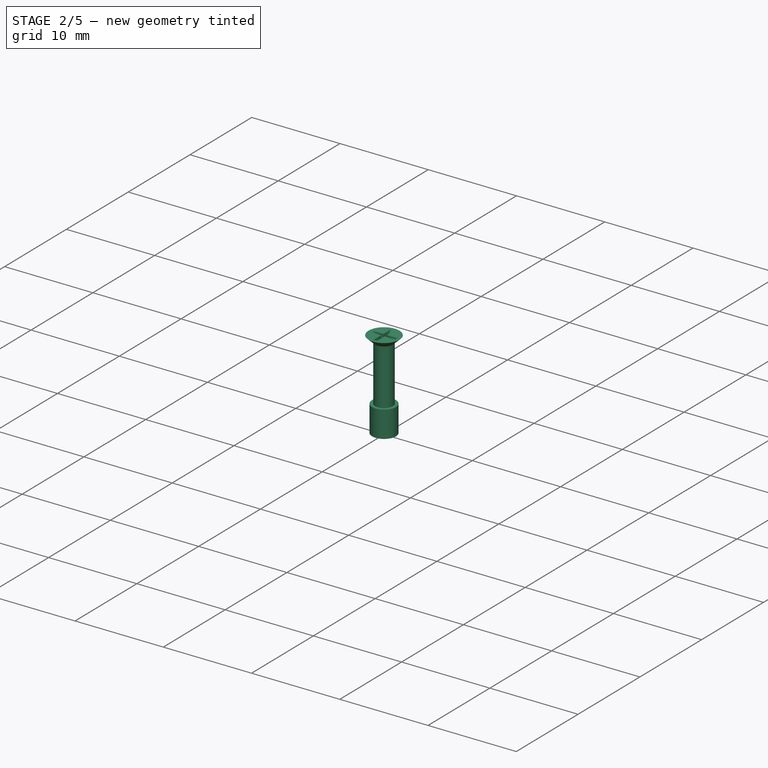
[diagram: stage 2 of 5 — iso view after this stage's code; geometry added in this stage tinted green]
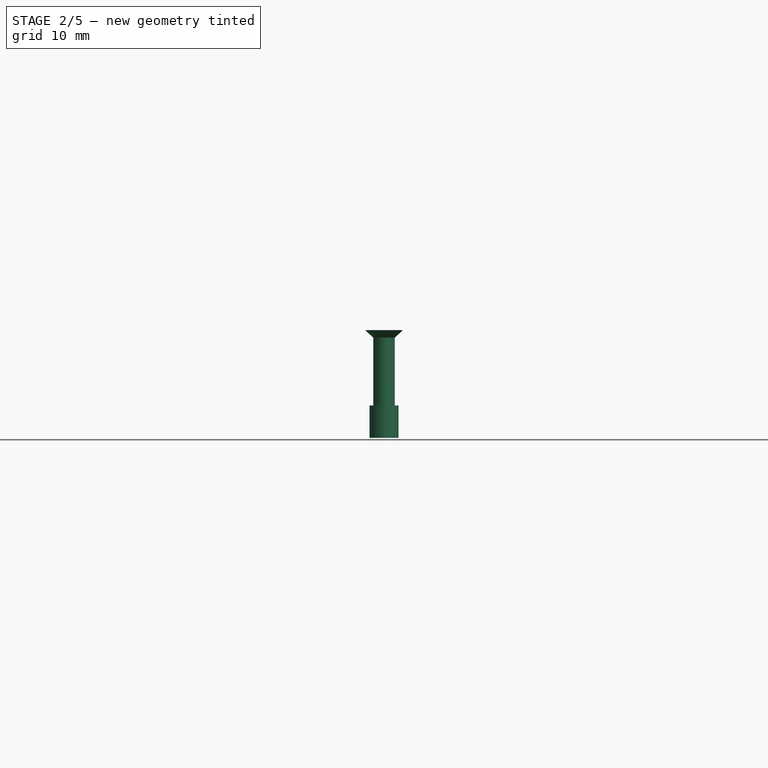
[diagram: stage 2 of 5 — front view after this stage's code; geometry added in this stage tinted green]
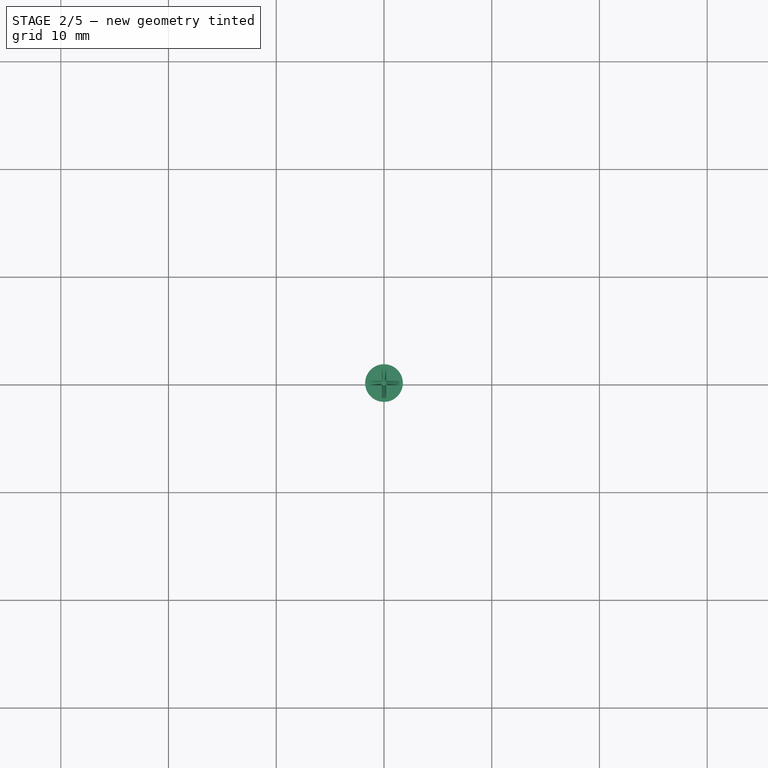
[diagram: stage 2 of 5 — top view after this stage's code; geometry added in this stage tinted green]
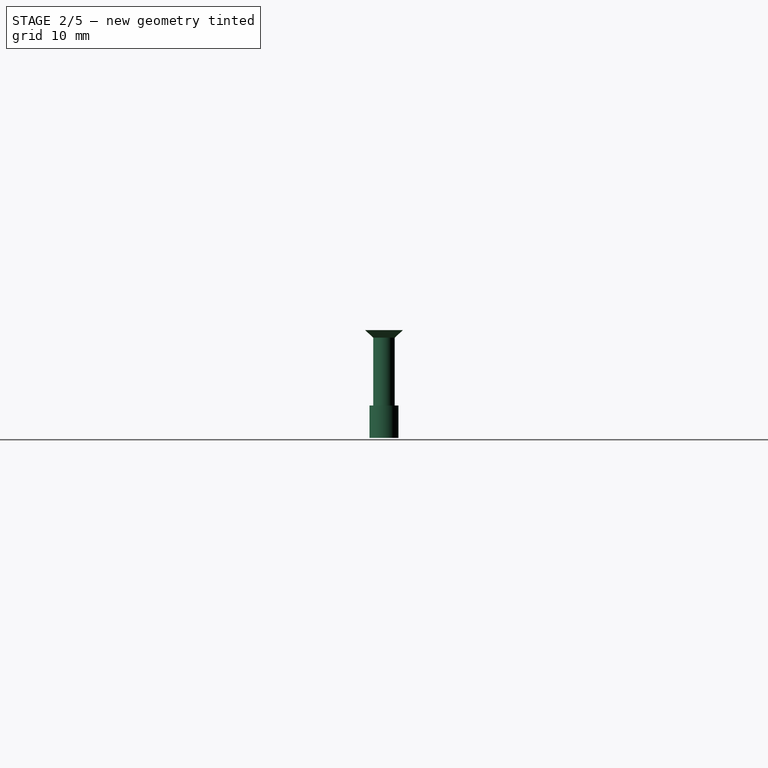
[diagram: stage 2 of 5 — right view after this stage's code; geometry added in this stage tinted green]
FEATURE [PartDesign::Body] Body002  label="Nut001"
  Group = -> [Cylinder006,Cylinder007]
  Origin = -> Origin002
  Placement = pos=(14.8,5.4,3.5) rot=(0,0,1;0rad)
  Tip = -> Cylinder007
FEATURE [PartDesign::AdditiveCylinder] Cylinder008
  Angle = 360
  AttacherType = Attacher::AttachEngine3D
  FirstAngle = 0
  Height = 3
  MapMode = 5
  Radius = 1.35
  SecondAngle = 0
  Support = -> [XY_Plane003]
FEATURE [PartDesign::SubtractiveCylinder] Cylinder009
  Angle = 360
  AttacherType = Attacher::AttachEngine3D
  BaseFeature = -> Cylinder008
  FirstAngle = 0
  Height = 3
  MapMode = 5
  Radius = 1
  SecondAngle = 0
  Support = -> [XY_Plane003]
FEATURE [PartDesign::Body] Body003  label="Nut002"
  Group = -> [Cylinder008,Cylinder009]
  Origin = -> Origin003
  Placement = pos=(14.8,22.4,3.5) rot=(0,0,1;0rad)
  Tip = -> Cylinder009
FEATURE [PartDesign::AdditiveCylinder] Cylinder010
  Angle = 360
  AttacherType = Attacher::AttachEngine3D
  FirstAngle = 0
  Height = 3
  MapMode = 5
  Radius = 1.35
  SecondAngle = 0
  Support = -> [XY_Plane004]
FEATURE [PartDesign::SubtractiveCylinder] Cylinder011
  Angle = 360
  AttacherType = Attacher::AttachEngine3D
  BaseFeature = -> Cylinder010
  FirstAngle = 0
  Height = 3
  MapMode = 5
  Radius = 1
  SecondAngle = 0
  Support = -> [XY_Plane004]
FEATURE [PartDesign::Body] Body004  label="Nut003"
  Group = -> [Cylinder010,Cylinder011]
  Origin = -> Origin004
  Placement = pos=(40.8,22.4,3.5) rot=(0,0,1;0rad)
  Tip = -> Cylinder011
FEATURE [PartDesign::AdditiveCylinder] Cylinder012
  Angle = 360
  AttacherType = Attacher::AttachEngine3D
  FirstAngle = 0
  Height = 3
  MapMode = 5
  Radius = 1.35
  SecondAngle = 0
  Support = -> [XY_Plane005]
FEATURE [PartDesign::SubtractiveCylinder] Cylinder013
  Angle = 360
  AttacherType = Attacher::AttachEngine3D
  BaseFeature = -> Cylinder012
  FirstAngle = 0
  Height = 3
  MapMode = 5
  Radius = 1
  SecondAngle = 0
  Support = -> [XY_Plane005]
FEATURE [PartDesign::Body] Body005  label="Nut004"
  Group = -> [Cylinder012,Cylinder013]
  Origin = -> Origin005
  Placement = pos=(49.8,5.4,3.5) rot=(0,0,1;0rad)
  Tip = -> Cylinder013
FEATURE [PartDesign::AdditiveCylinder] Cylinder014
  Angle = 360
  AttacherType = Attacher::AttachEngine3D
  FirstAngle = 0
  Height = 3
  MapMode = 5
  Radius = 1.35
  SecondAngle = 0
  Support = -> [XY_Plane006]
FEATURE [PartDesign::SubtractiveCylinder] Cylinder015
  Angle = 360
  AttacherType = Attacher::AttachEngine3D
  BaseFeature = -> Cylinder014
  FirstAngle = 0
  Height = 3
  MapMode = 5
  Radius = 1
  SecondAngle = 0
  Support = -> [XY_Plane006]
FEATURE [PartDesign::Body] Body006  label="Nut005"
  Group = -> [Cylinder014,Cylinder015]
  Origin = -> Origin006
  Placement = pos=(7.8,5.5,-4.9) rot=(0,0,1;0rad)
  Tip = -> Cylinder015
FEATURE [PartDesign::AdditiveCylinder] Cylinder016
  Angle = 360
  AttacherType = Attacher::AttachEngine3D
  FirstAngle = 0
  Height = 3
  MapMode = 5
  Radius = 1.35
  SecondAngle = 0
  Support = -> [XY_Plane007]
FEATURE [PartDesign::SubtractiveCylinder] Cylinder017
  Angle = 360
  AttacherType = Attacher::AttachEngine3D
  BaseFeature = -> Cylinder016
  FirstAngle = 0
  Height = 3
  MapMode = 5
  Radius = 1
  SecondAngle = 0
  Support = -> [XY_Plane007]
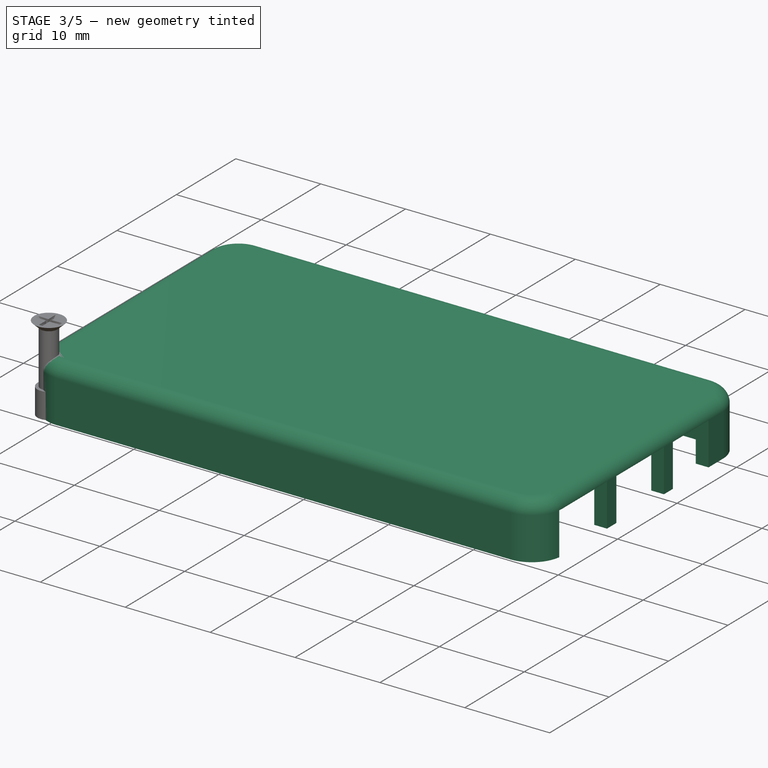
[diagram: stage 3 of 5 — iso view after this stage's code; geometry added in this stage tinted green]
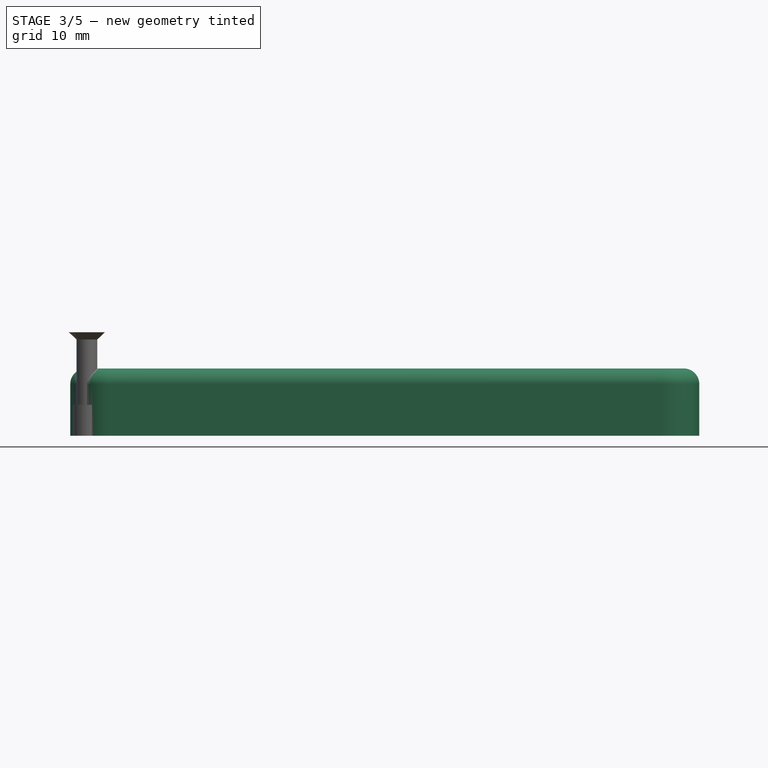
[diagram: stage 3 of 5 — front view after this stage's code; geometry added in this stage tinted green]
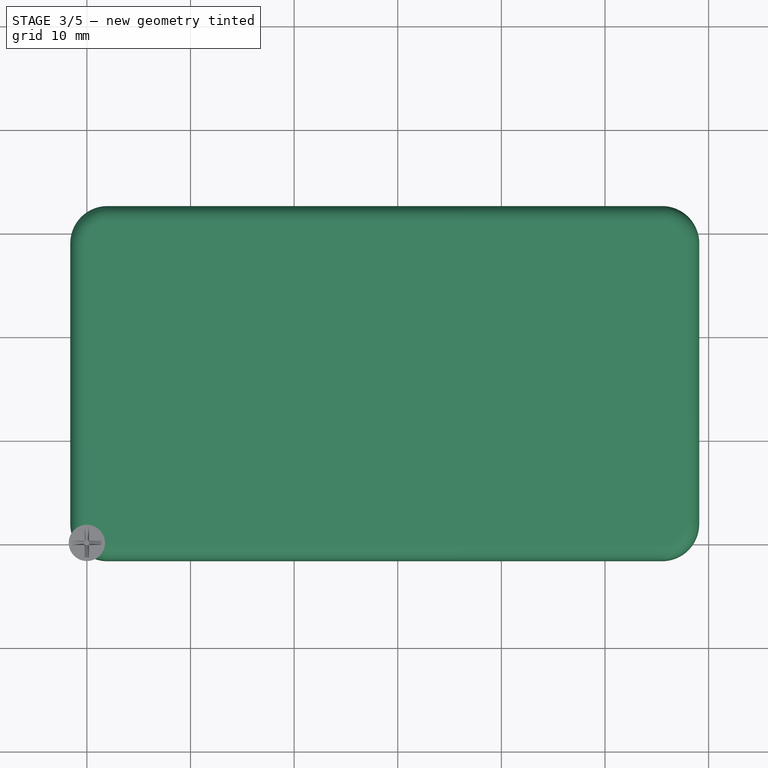
[diagram: stage 3 of 5 — top view after this stage's code; geometry added in this stage tinted green]
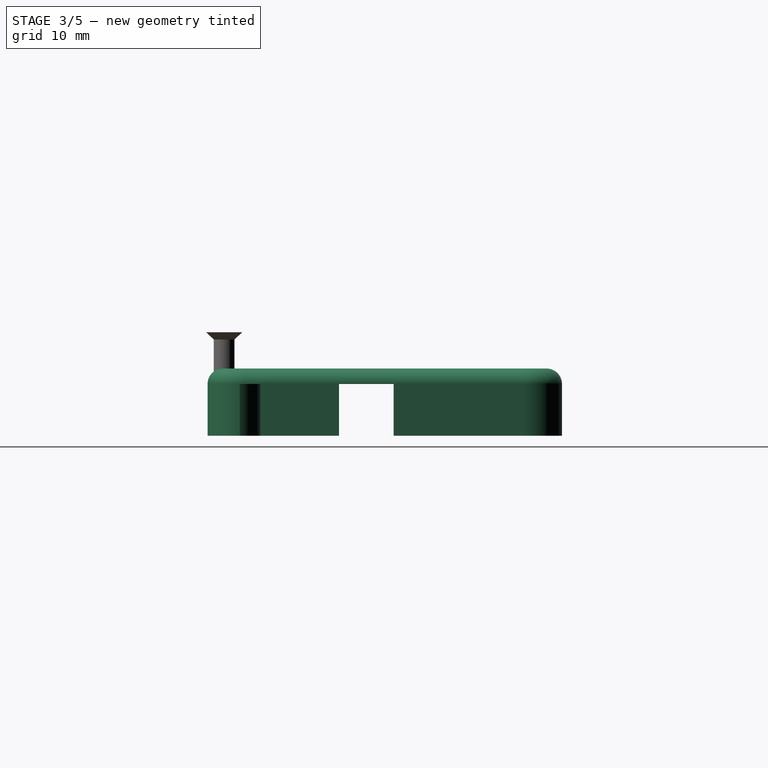
[diagram: stage 3 of 5 — right view after this stage's code; geometry added in this stage tinted green]
FEATURE [Sketcher::SketchObject] Sketch001
  FullyConstrained = true
  MapMode = 5
  Support = -> [XY_Plane001]
  sketch-geometry (16):
    g0: LineSegment StartX=2 StartY=0 StartZ=0 EndX=55.5 EndY=0 EndZ=0
    g1: LineSegment StartX=57.5 StartY=2 StartZ=0 EndX=57.5 EndY=29 EndZ=0
    g2: LineSegment StartX=55.5 StartY=31 StartZ=0 EndX=2 EndY=31 EndZ=0
    g3: LineSegment StartX=1.008e-13 StartY=29 StartZ=0 EndX=1.008e-13 EndY=2 EndZ=0
    g4: ArcOfCircle CenterX=2 CenterY=29 CenterZ=0 NormalX=0 NormalY=0 NormalZ=1 AngleXU=0 Radius=2 StartAngle=1.5708 EndAngle=3.14159
    g5: ArcOfCircle CenterX=55.5 CenterY=29 CenterZ=0 NormalX=0 NormalY=0 NormalZ=1 AngleXU=0 Radius=2 StartAngle=1e-16 EndAngle=1.5708
    g6: ArcOfCircle CenterX=55.5 CenterY=2 CenterZ=0 NormalX=0 NormalY=0 NormalZ=1 AngleXU=0 Radius=2 StartAngle=4.71239 EndAngle=6.28319
    g7: ArcOfCircle CenterX=2 CenterY=2 CenterZ=0 NormalX=0 NormalY=0 NormalZ=1 AngleXU=0 Radius=2 StartAngle=3.14159 EndAngle=4.71239
    g8: LineSegment StartX=2 StartY=31.1 StartZ=0 EndX=55.5 EndY=31.1 EndZ=0
    g9: LineSegment StartX=57.6 StartY=29 StartZ=0 EndX=57.6 EndY=2 EndZ=0
    g10: LineSegment StartX=55.5 StartY=-0.1 StartZ=0 EndX=2 EndY=-0.1 EndZ=0
    g11: LineSegment StartX=-0.1 StartY=2 StartZ=0 EndX=-0.1 EndY=29 EndZ=0
    g12: ArcOfCircle CenterX=2 CenterY=29 CenterZ=0 NormalX=0 NormalY=0 NormalZ=1 AngleXU=0 Radius=2.1 StartAngle=1.5708 EndAngle=3.14159
    g13: ArcOfCircle CenterX=55.5 CenterY=29 CenterZ=0 NormalX=0 NormalY=0 NormalZ=1 AngleXU=0 Radius=2.1 StartAngle=-4.4e-15 EndAngle=1.5708
    g14: ArcOfCircle CenterX=55.5 CenterY=2 CenterZ=0 NormalX=0 NormalY=0 NormalZ=1 AngleXU=0 Radius=2.1 StartAngle=4.71239 EndAngle=6.28319
    g15: ArcOfCircle CenterX=2 CenterY=2 CenterZ=0 NormalX=0 NormalY=0 NormalZ=1 AngleXU=0 Radius=2.1 StartAngle=3.14159 EndAngle=4.71239
  constraints (36):
    c: Horizontal(g0)
    c: Horizontal(g2)
    c: Vertical(g1)
    c: Vertical(g3)
    c: Tangent(g3,g4) = -1.5708
    c: Tangent(g2,g4) = -1.5708
    c: Tangent(g2,g5) = -1.5708
    c: Tangent(g1,g5) = -1.5708
    c: Tangent(g1,g6) = -1.5708
    c: Tangent(g0,g6) = -1.5708
    c: Tangent(g0,g7) = -1.5708
    c: Tangent(g3,g7) = -1.5708
    c: Equal(g4,g7)
    c: Equal(g4,g6)
    c: Equal(g4,g5)
    c: Radius(g4) = 2
    c: DistanceY(g0,g2) = 31
    c: PointOnObject(g0,g-1)
    c: PointOnObject(g3,g-2)
    c: DistanceX(g3,g1) = 57.5
    c: Horizontal(g8)
    c: Horizontal(g10)
    c: Vertical(g9)
    c: Tangent(g11,g12) = 1.5708
    c: Tangent(g8,g12) = 1.5708
    c: Tangent(g8,g13) = 1.5708
    c: Tangent(g9,g13) = 1.5708
    c: Tangent(g9,g14) = 1.5708
    c: Tangent(g10,g14) = 1.5708
    c: Tangent(g10,g15) = 1.5708
    c: Tangent(g11,g15) = 1.5708
    c: Coincident(g15,g7)
    c: Coincident(g5,g13)
    c: Coincident(g4,g12)
    c: Coincident(g6,g14)
    c: Radius(g12) = 2.1
FEATURE [PartDesign::Pad] Pad001
  Direction = (0,0,1)
  Length = 5
  Length2 = 10
  Profile = -> Sketch001
  ReferenceAxis = -> Sketch001 [N_Axis]
  Type = 0
FEATURE [PartDesign::Thickness] Thickness001
  Base = -> Pad001 [Face9]
  BaseFeature = -> Pad001
  Intersection = false
  Join = 0
  Mode = 0
  SupportTransform = false
  Value = 1.5
FEATURE [PartDesign::SubtractiveBox] Box
  AttacherType = Attacher::AttachEngine3D
  AttachmentOffset = pos=(57.5,1.5,0) rot=(0,0,1;0rad)
  BaseFeature = -> Thickness001
  Height = 5
  Length = 2
  MapMode = 5
  Placement = pos=(57.5,1.5,0) rot=(0,0,1;0rad)
  Support = -> [XY_Plane001]
  Width = 8
FEATURE [PartDesign::SubtractiveBox] Box001
  AttacherType = Attacher::AttachEngine3D
  AttachmentOffset = pos=(57.5,11.08,0) rot=(0,0,1;0rad)
  BaseFeature = -> Box
  Height = 5
  Length = 2
  MapMode = 5
  Placement = pos=(57.5,11.08,0) rot=(0,0,1;0rad)
  Support = -> [XY_Plane001]
  Width = 8
FEATURE [PartDesign::SubtractiveBox] Box002
  AttacherType = Attacher::AttachEngine3D
  AttachmentOffset = pos=(57.5,20.575,0) rot=(0,0,1;0rad)
  BaseFeature = -> Box001
  Height = 5
  Length = 2
  MapMode = 5
  Placement = pos=(57.5,20.575,0) rot=(0,0,1;0rad)
  Support = -> [XY_Plane001]
  Width = 6
FEATURE [PartDesign::SubtractiveBox] Box003
  AttacherType = Attacher::AttachEngine3D
  AttachmentOffset = pos=(-2,10.35,0) rot=(0,0,1;0rad)
  BaseFeature = -> Box002
  Height = 5
  Length = 2
  MapMode = 5
  Placement = pos=(-2,10.35,0) rot=(0,0,1;0rad)
  Support = -> [XY_Plane001]
  Width = 6
FEATURE [PartDesign::AdditiveCylinder] Cylinder001
  Angle = 180
  AttacherType = Attacher::AttachEngine3D
  AttachmentOffset = pos=(16,0.5,0) rot=(0,0,1;0rad)
  BaseFeature = -> Box003
  FirstAngle = 0
  Height = 5
  MapMode = 5
  Placement = pos=(16,0.5,0) rot=(0,0,1;0rad)
  Radius = 3
  SecondAngle = 0
  Support = -> [XY_Plane001]
FEATURE [PartDesign::AdditiveBox] Box005
  AttacherType = Attacher::AttachEngine3D
  AttachmentOffset = pos=(13,-0.1,0) rot=(0,0,1;0rad)
  BaseFeature = -> Cylinder001
  Height = 5
  Length = 6
  MapMode = 5
  Placement = pos=(13,-0.1,0) rot=(0,0,1;0rad)
  Support = -> [XY_Plane001]
  Width = 0.6
FEATURE [PartDesign::AdditiveCylinder] Cylinder005
  Angle = 180
  AttacherType = Attacher::AttachEngine3D
  AttachmentOffset = pos=(42.25,30.5,0) rot=(0,0,1;3.14159rad)
  BaseFeature = -> Box005
  FirstAngle = 0
  Height = 5
  MapMode = 5
  Placement = pos=(42.25,30.5,0) rot=(0,0,1;3.14159rad)
  Radius = 3
  SecondAngle = 0
  Support = -> [XY_Plane001]
FEATURE [PartDesign::Body] Body001  label="Top"
  Group = -> [Sketch001,Pad001,Thickness001,Box,Box001,Box002,Box003,Sketch002,Cylinder001,Box005,Cylinder005,Box007,Pocket,Cone,Cone001,Box008,Box009,Sketch006,Pad003,Sketch007,Pocket002]
  Origin = -> Origin001
  Tip = -> Pocket002
FEATURE [PartDesign::AdditiveCylinder] Cylinder006
  Angle = 360
  AttacherType = Attacher::AttachEngine3D
  FirstAngle = 0
  Height = 3
  MapMode = 5
  Radius = 1.35
  SecondAngle = 0
  Support = -> [XY_Plane002]
FEATURE [PartDesign::SubtractiveCylinder] Cylinder007
  Angle = 360
  AttacherType = Attacher::AttachEngine3D
  BaseFeature = -> Cylinder006
  FirstAngle = 0
  Height = 3
  MapMode = 5
  Radius = 1
  SecondAngle = 0
  Support = -> [XY_Plane002]
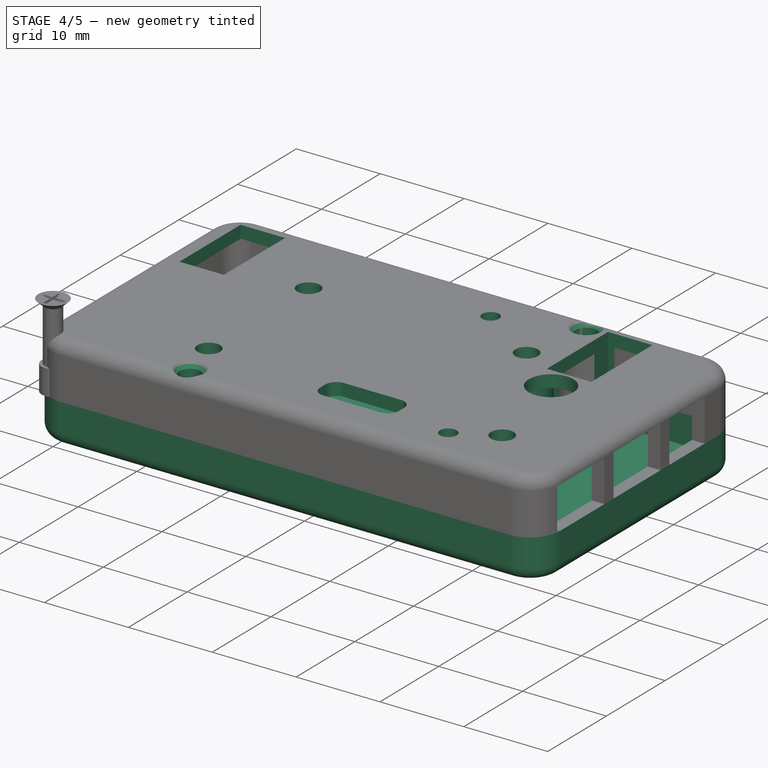
[diagram: stage 4 of 5 — iso view after this stage's code; geometry added in this stage tinted green]
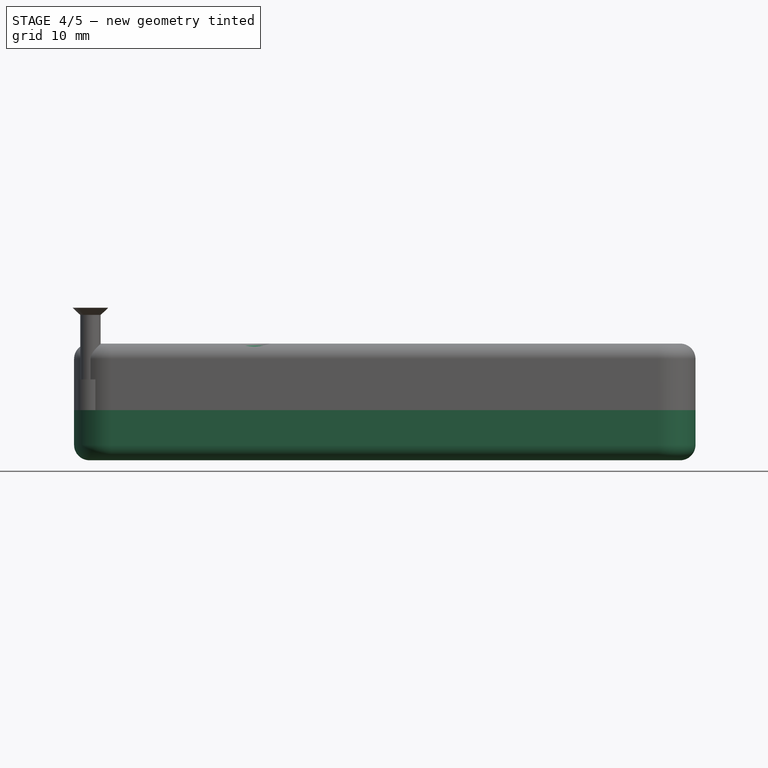
[diagram: stage 4 of 5 — front view after this stage's code; geometry added in this stage tinted green]
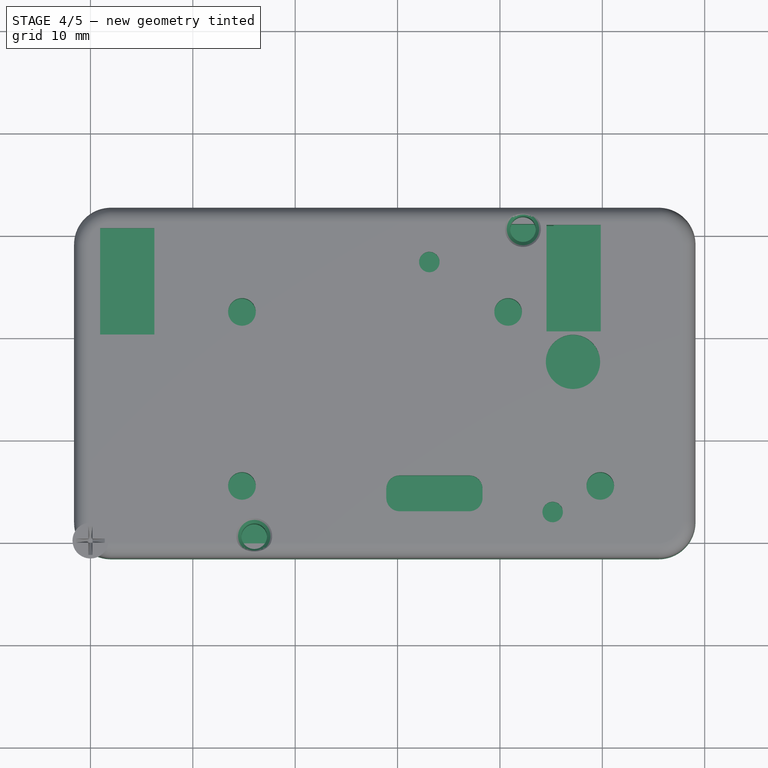
[diagram: stage 4 of 5 — top view after this stage's code; geometry added in this stage tinted green]
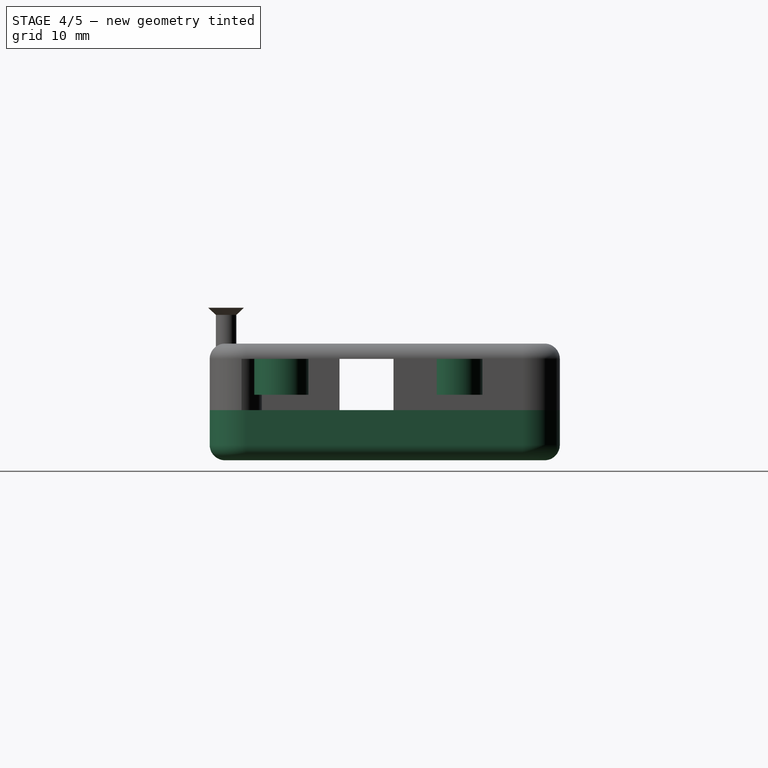
[diagram: stage 4 of 5 — right view after this stage's code; geometry added in this stage tinted green]
FEATURE [Sketcher::SketchObject] Sketch
  FullyConstrained = true
  MapMode = 5
  Support = -> [XY_Plane]
  sketch-geometry (16):
    g0: LineSegment StartX=2 StartY=0 StartZ=0 EndX=55.5 EndY=0 EndZ=0
    g1: LineSegment StartX=57.5 StartY=2 StartZ=0 EndX=57.5 EndY=29 EndZ=0
    g2: LineSegment StartX=55.5 StartY=31 StartZ=0 EndX=2 EndY=31 EndZ=0
    g3: LineSegment StartX=0 StartY=29 StartZ=0 EndX=0 EndY=2 EndZ=0
    g4: ArcOfCircle CenterX=2 CenterY=29 CenterZ=0 NormalX=0 NormalY=0 NormalZ=1 AngleXU=0 Radius=2 StartAngle=1.5708 EndAngle=3.14159
    g5: ArcOfCircle CenterX=55.5 CenterY=29 CenterZ=0 NormalX=0 NormalY=0 NormalZ=1 AngleXU=0 Radius=2 StartAngle=1e-16 EndAngle=1.5708
    g6: ArcOfCircle CenterX=55.5 CenterY=2 CenterZ=0 NormalX=0 NormalY=0 NormalZ=1 AngleXU=0 Radius=2 StartAngle=4.71239 EndAngle=6.28319
    g7: ArcOfCircle CenterX=2 CenterY=2 CenterZ=0 NormalX=0 NormalY=0 NormalZ=1 AngleXU=0 Radius=2 StartAngle=3.14159 EndAngle=4.71239
    g8: LineSegment StartX=2 StartY=31.1 StartZ=0 EndX=55.5 EndY=31.1 EndZ=0
    g9: LineSegment StartX=57.6 StartY=29 StartZ=0 EndX=57.6 EndY=2 EndZ=0
    g10: LineSegment StartX=55.5 StartY=-0.1 StartZ=0 EndX=2 EndY=-0.1 EndZ=0
    g11: LineSegment StartX=-0.1 StartY=2 StartZ=0 EndX=-0.1 EndY=29 EndZ=0
    g12: ArcOfCircle CenterX=2 CenterY=29 CenterZ=0 NormalX=0 NormalY=0 NormalZ=1 AngleXU=0 Radius=2.1 StartAngle=1.5708 EndAngle=3.14159
    g13: ArcOfCircle CenterX=55.5 CenterY=29 CenterZ=0 NormalX=0 NormalY=0 NormalZ=1 AngleXU=0 Radius=2.1 StartAngle=-4.4e-15 EndAngle=1.5708
    g14: ArcOfCircle CenterX=55.5 CenterY=2 CenterZ=0 NormalX=0 NormalY=0 NormalZ=1 AngleXU=0 Radius=2.1 StartAngle=4.71239 EndAngle=6.28319
    g15: ArcOfCircle CenterX=2 CenterY=2 CenterZ=0 NormalX=0 NormalY=0 NormalZ=1 AngleXU=0 Radius=2.1 StartAngle=3.14159 EndAngle=4.71239
  constraints (36):
    c: Horizontal(g0)
    c: Horizontal(g2)
    c: Vertical(g1)
    c: Vertical(g3)
    c: Tangent(g3,g4) = -1.5708
    c: Tangent(g2,g4) = -1.5708
    c: Tangent(g2,g5) = -1.5708
    c: Tangent(g1,g5) = -1.5708
    c: Tangent(g1,g6) = -1.5708
    c: Tangent(g0,g6) = -1.5708
    c: Tangent(g0,g7) = -1.5708
    c: Tangent(g3,g7) = -1.5708
    c: Equal(g4,g7)
    c: Equal(g4,g6)
    c: Equal(g4,g5)
    c: Radius(g4) = 2
    c: DistanceY(g0,g2) = 31
    c: PointOnObject(g0,g-1)
    c: PointOnObject(g3,g-2)
    c: DistanceX(g3,g1) = 57.5
    c: Horizontal(g8)
    c: Horizontal(g10)
    c: Vertical(g9)
    c: Tangent(g11,g12) = 1.5708
    c: Tangent(g8,g12) = 1.5708
    c: Tangent(g8,g13) = 1.5708
    c: Tangent(g9,g13) = 1.5708
    c: Tangent(g9,g14) = 1.5708
    c: Tangent(g10,g14) = 1.5708
    c: Tangent(g10,g15) = 1.5708
    c: Tangent(g11,g15) = 1.5708
    c: Coincident(g15,g7)
    c: Coincident(g5,g13)
    c: Coincident(g4,g12)
    c: Coincident(g6,g14)
    c: Radius(g12) = 2.1
FEATURE [PartDesign::Pad] Pad
  Direction = (0,0,1)
  Length = 3.4
  Length2 = 10
  Profile = -> Sketch
  ReferenceAxis = -> Sketch [N_Axis]
  Reversed = true
  Type = 0
FEATURE [PartDesign::Thickness] Thickness
  Base = -> Pad [Face9]
  BaseFeature = -> Pad
  Intersection = false
  Join = 0
  Mode = 0
  SupportTransform = false
  Value = 1.5
FEATURE [PartDesign::AdditiveBox] Box007
  AttacherType = Attacher::AttachEngine3D
  AttachmentOffset = pos=(39.25,30.5,0) rot=(0,0,1;0rad)
  BaseFeature = -> Cylinder005
  Height = 5
  Length = 6
  MapMode = 5
  Placement = pos=(39.25,30.5,0) rot=(0,0,1;0rad)
  Support = -> [XY_Plane001]
  Width = 0.6
FEATURE [PartDesign::Pocket] Pocket
  BaseFeature = -> Box007
  Direction = (0,0,-1)
  Length = 5
  Length2 = 5
  Placement = pos=(39.25,30.5,0) rot=(0,0,1;0rad)
  Profile = -> Sketch002
  ReferenceAxis = -> Sketch002 [N_Axis]
  Reversed = true
  Type = 1
FEATURE [PartDesign::SubtractiveCone] Cone
  Angle = 360
  AttacherType = Attacher::AttachEngine3D
  AttachmentOffset = pos=(16,0.5,5.8) rot=(0,0,1;0rad)
  BaseFeature = -> Pocket
  Height = 0.7
  MapMode = 5
  Placement = pos=(16,0.5,5.8) rot=(0,0,1;0rad)
  Radius1 = 1.15
  Radius2 = 1.75
  Support = -> [XY_Plane001]
  expr: .AttachmentOffset.Base.z = 6.5 mm - Height
FEATURE [PartDesign::SubtractiveCone] Cone001
  Angle = 360
  AttacherType = Attacher::AttachEngine3D
  AttachmentOffset = pos=(42.25,30.5,5.8) rot=(0,0,1;0rad)
  BaseFeature = -> Cone
  Height = 0.7
  MapMode = 5
  Placement = pos=(42.25,30.5,5.8) rot=(0,0,1;0rad)
  Radius1 = 1.15
  Radius2 = 1.75
  Support = -> [XY_Plane001]
  expr: .AttachmentOffset.Base.z = 6.5 mm - Height
FEATURE [PartDesign::Body] Body  label="Bottom"
  Group = -> [Sketch,Pad,Thickness,Cylinder,Box004,Cylinder002,Chamfer,Cylinder003,Box006,Cylinder004,Chamfer001,Sketch004,Pad002,Sketch005,Pocket001]
  Origin = -> Origin
  Tip = -> Pocket001
FEATURE [PartDesign::SubtractiveBox] Box008
  AttacherType = Attacher::AttachEngine3D
  AttachmentOffset = pos=(10.35,31,0) rot=(0,0,1;0rad)
  BaseFeature = -> Cone001
  Height = 4.9
  Length = 8
  MapMode = 5
  Placement = pos=(10.35,31,0) rot=(0,0,1;0rad)
  Support = -> [XY_Plane001]
  Width = 2
FEATURE [PartDesign::SubtractiveBox] Box009
  AttacherType = Attacher::AttachEngine3D
  AttachmentOffset = pos=(21.82,31,0) rot=(0,0,1;0rad)
  BaseFeature = -> Box008
  Height = 4.9
  Length = 8
  MapMode = 2
  Placement = pos=(21.82,31,0) rot=(0,0,1;0rad)
  Support = -> [XY_Plane001]
  Width = 2
FEATURE [Sketcher::SketchObject] Sketch006
  AttachmentOffset = pos=(0,0,5) rot=(0,0,1;0rad)
  FullyConstrained = true
  MapMode = 5
  Placement = pos=(0,0,5) rot=(0,0,1;0rad)
  Support = -> [XY_Plane001]
  sketch-geometry (11):
    g0: Circle CenterX=14.8 CenterY=22.4 CenterZ=0 NormalX=0 NormalY=0 NormalZ=1 AngleXU=0 Radius=2.65
    g1: Circle CenterX=49.8 CenterY=5.4 CenterZ=0 NormalX=0 NormalY=0 NormalZ=1 AngleXU=0 Radius=2.65
    g2: Circle CenterX=40.8 CenterY=22.4 CenterZ=0 NormalX=0 NormalY=0 NormalZ=1 AngleXU=0 Radius=2.65
    g3: Circle CenterX=14.8 CenterY=5.4 CenterZ=0 NormalX=0 NormalY=0 NormalZ=1 AngleXU=0 Radius=2.65
    g4: LineSegment StartX=0 StartY=0 StartZ=0 EndX=57.5 EndY=0 EndZ=0
    g5: LineSegment StartX=57.5 StartY=0 StartZ=0 EndX=57.5 EndY=31 EndZ=0
    g6: LineSegment StartX=57.5 StartY=31 StartZ=0 EndX=0 EndY=31 EndZ=0
    g7: LineSegment StartX=0 StartY=31 StartZ=0 EndX=0 EndY=0 EndZ=0
    g8: LineSegment StartX=14.8 StartY=5.4 StartZ=0 EndX=49.8 EndY=5.4 EndZ=0
    g9: LineSegment StartX=14.8 StartY=22.4 StartZ=0 EndX=40.8 EndY=22.4 EndZ=0
    g10: LineSegment StartX=14.8 StartY=5.4 StartZ=0 EndX=14.8 EndY=22.4 EndZ=0
  constraints (29):
    c: Equal(g3,g0)
    c: Equal(g3,g1)
    c: Equal(g3,g2)
    c: Diameter(g3) = 5.3
    c: Coincident(g4,g5)
    c: Coincident(g5,g6)
    c: Coincident(g6,g7)
    c: Coincident(g7,g4)
    c: Horizontal(g4)
    c: Horizontal(g6)
    c: Vertical(g5)
    c: Vertical(g7)
    c: Coincident(g4,g-1)
    c: DistanceX(g6,g6) = 57.5
    c: DistanceY(g5,g5) = 31
    c: Coincident(g8,g3)
    c: Coincident(g8,g1)
    c: Horizontal(g8)
    c: Coincident(g9,g0)
    c: Coincident(g9,g2)
    c: Horizontal(g9)
    c: Coincident(g10,g3)
    c: Coincident(g10,g0)
    c: Vertical(g10)
    c: DistanceY(g4,g3) = 5.4
    c: DistanceX(g4,g3) = 14.8
    c: DistanceX(g9,g9) = 26
    c: DistanceY(g10,g10) = 17
    c: DistanceX(g8,g8) = 35
FEATURE [PartDesign::Pad] Pad003
  BaseFeature = -> Box009
  Direction = (0,0,1)
  Length = 3.5
  Length2 = 10
  Placement = pos=(21.82,31,0) rot=(0,0,1;0rad)
  Profile = -> Sketch006
  ReferenceAxis = -> Sketch006 [N_Axis]
  Reversed = true
  Type = 0
FEATURE [Sketcher::SketchObject] Sketch007
  AttachmentOffset = pos=(0,0,6.5) rot=(0,0,1;0rad)
  FullyConstrained = true
  MapMode = 5
  Placement = pos=(0,0,6.5) rot=(0,0,1;0rad)
  Support = -> [XY_Plane001]
  sketch-geometry (11):
    g0: Circle CenterX=14.8 CenterY=22.4 CenterZ=0 NormalX=0 NormalY=0 NormalZ=1 AngleXU=0 Radius=1.35
    g1: Circle CenterX=49.8 CenterY=5.4 CenterZ=0 NormalX=0 NormalY=0 NormalZ=1 AngleXU=0 Radius=1.35
    g2: Circle CenterX=40.8 CenterY=22.4 CenterZ=0 NormalX=0 NormalY=0 NormalZ=1 AngleXU=0 Radius=1.35
    g3: Circle CenterX=14.8 CenterY=5.4 CenterZ=0 NormalX=0 NormalY=0 NormalZ=1 AngleXU=0 Radius=1.35
    g4: LineSegment StartX=0 StartY=0 StartZ=0 EndX=57.5 EndY=0 EndZ=0
    g5: LineSegment StartX=57.5 StartY=0 StartZ=0 EndX=57.5 EndY=31 EndZ=0
    g6: LineSegment StartX=57.5 StartY=31 StartZ=0 EndX=0 EndY=31 EndZ=0
    g7: LineSegment StartX=0 StartY=31 StartZ=0 EndX=0 EndY=0 EndZ=0
    g8: LineSegment StartX=14.8 StartY=5.4 StartZ=0 EndX=49.8 EndY=5.4 EndZ=0
    g9: LineSegment StartX=14.8 StartY=22.4 StartZ=0 EndX=40.8 EndY=22.4 EndZ=0
    g10: LineSegment StartX=14.8 StartY=5.4 StartZ=0 EndX=14.8 EndY=22.4 EndZ=0
  constraints (29):
    c: Equal(g3,g0)
    c: Equal(g3,g1)
    c: Equal(g3,g2)
    c: Diameter(g3) = 2.7
    c: Coincident(g4,g5)
    c: Coincident(g5,g6)
    c: Coincident(g6,g7)
    c: Coincident(g7,g4)
    c: Horizontal(g4)
    c: Horizontal(g6)
    c: Vertical(g5)
    c: Vertical(g7)
    c: Coincident(g4,g-1)
    c: DistanceX(g6,g6) = 57.5
    c: DistanceY(g5,g5) = 31
    c: Coincident(g8,g3)
    c: Coincident(g8,g1)
    c: Horizontal(g8)
    c: Coincident(g9,g0)
    c: Coincident(g9,g2)
    c: Horizontal(g9)
    c: Coincident(g10,g3)
    c: Coincident(g10,g0)
    c: Vertical(g10)
    c: DistanceY(g4,g3) = 5.4
    c: DistanceX(g4,g3) = 14.8
    c: DistanceX(g9,g9) = 26
    c: DistanceY(g10,g10) = 17
    c: DistanceX(g8,g8) = 35
FEATURE [PartDesign::Pocket] Pocket002
  BaseFeature = -> Pad003
  Direction = (0,0,-1)
  Length = 3.5
  Length2 = 5
  Placement = pos=(21.82,31,0) rot=(0,0,1;0rad)
  Profile = -> Sketch007
  ReferenceAxis = -> Sketch007 [N_Axis]
  Type = 0
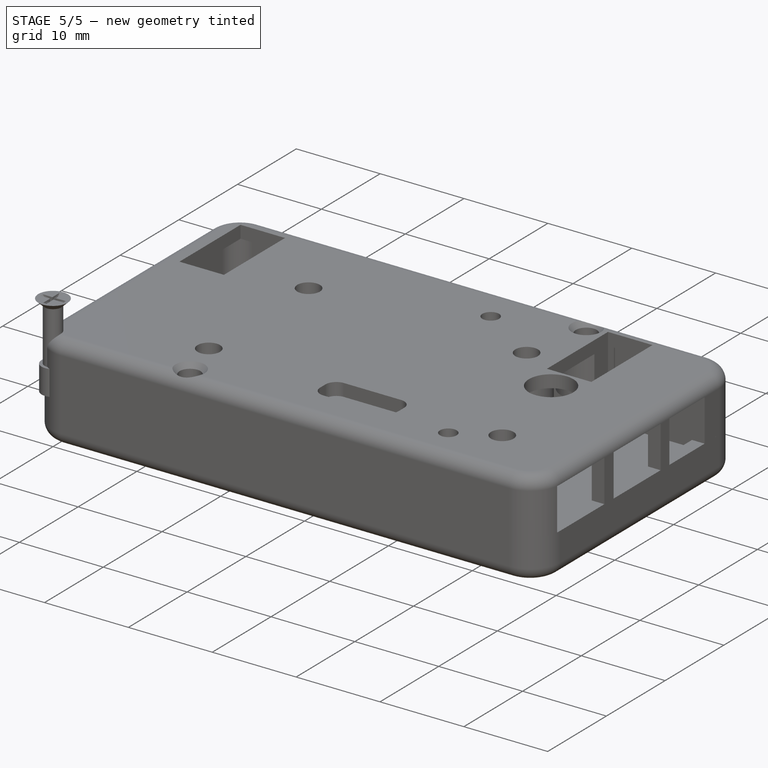
[diagram: stage 5 of 5 — iso view after this stage's code; geometry added in this stage tinted green]
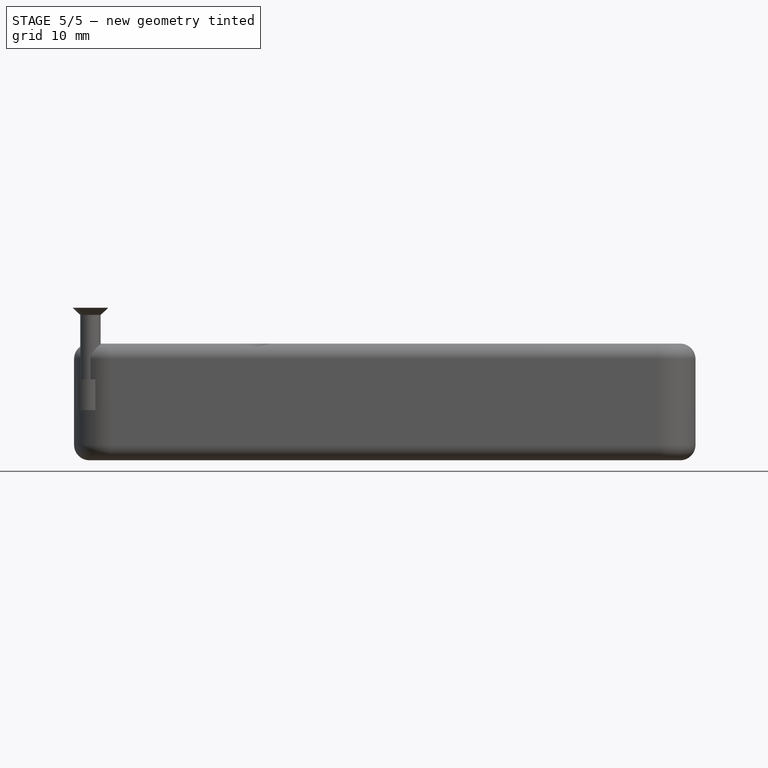
[diagram: stage 5 of 5 — front view after this stage's code; geometry added in this stage tinted green]
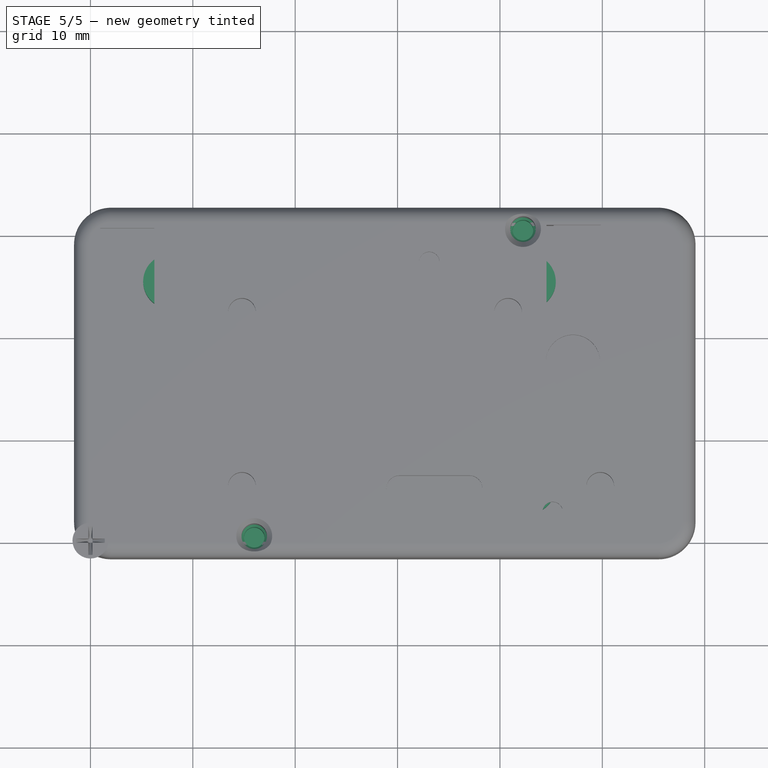
[diagram: stage 5 of 5 — top view after this stage's code; geometry added in this stage tinted green]
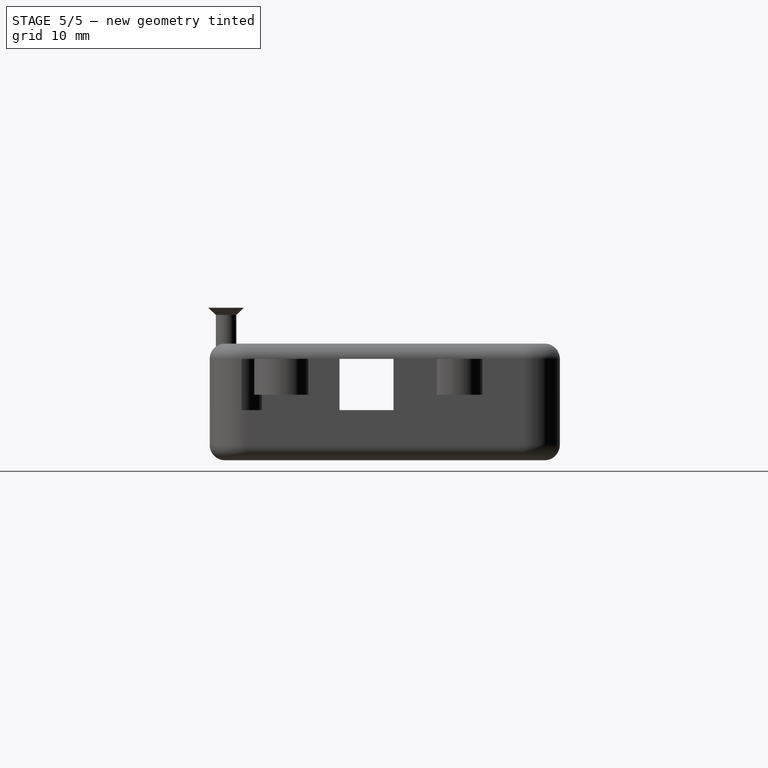
[diagram: stage 5 of 5 — right view after this stage's code; geometry added in this stage tinted green]
FEATURE [PartDesign::AdditiveCylinder] Cylinder
  Angle = 180
  AttacherType = Attacher::AttachEngine3D
  AttachmentOffset = pos=(16,0.5,-3.4) rot=(0,0,1;0rad)
  BaseFeature = -> Thickness
  FirstAngle = 0
  Height = 3.4
  MapMode = 5
  Placement = pos=(16,0.5,-3.4) rot=(0,0,1;0rad)
  Radius = 2.2
  SecondAngle = 0
  Support = -> [XY_Plane]
  expr: .AttachmentOffset.Base.z = -Height
FEATURE [Sketcher::SketchObject] Sketch002
  FullyConstrained = true
  MapMode = 5
  Support = -> [XY_Plane001]
  sketch-geometry (34):
    g0: LineSegment StartX=0.95 StartY=30.59 StartZ=0 EndX=6.25 EndY=30.59 EndZ=0
    g1: LineSegment StartX=6.25 StartY=30.59 StartZ=0 EndX=6.25 EndY=20.19 EndZ=0
    g2: LineSegment StartX=6.25 StartY=20.19 StartZ=0 EndX=0.95 EndY=20.19 EndZ=0
    g3: LineSegment StartX=0.95 StartY=20.19 StartZ=0 EndX=0.95 EndY=30.59 EndZ=0
    g4: LineSegment StartX=44.55 StartY=30.9 StartZ=0 EndX=49.85 EndY=30.9 EndZ=0
    g5: LineSegment StartX=49.85 StartY=30.9 StartZ=0 EndX=49.85 EndY=20.5 EndZ=0
    g6: LineSegment StartX=49.85 StartY=20.5 StartZ=0 EndX=44.55 EndY=20.5 EndZ=0
    g7: LineSegment StartX=44.55 StartY=20.5 StartZ=0 EndX=44.55 EndY=30.9 EndZ=0
    g8: LineSegment StartX=30.2 StartY=2.925 StartZ=0 EndX=37 EndY=2.925 EndZ=0
    g9: LineSegment StartX=37 StartY=6.425 StartZ=0 EndX=30.2 EndY=6.425 EndZ=0
    g10: Circle CenterX=47.135 CenterY=17.52 CenterZ=0 NormalX=0 NormalY=0 NormalZ=1 AngleXU=0 Radius=2.65
    g11: LineSegment StartX=0.95 StartY=30.59 StartZ=0 EndX=6.25 EndY=20.19 EndZ=0
    g12: LineSegment StartX=0.95 StartY=20.19 StartZ=0 EndX=6.25 EndY=30.59 EndZ=0
    g13: LineSegment StartX=44.55 StartY=20.5 StartZ=0 EndX=49.85 EndY=30.9 EndZ=0
    g14: LineSegment StartX=44.55 StartY=30.9 StartZ=0 EndX=49.85 EndY=20.5 EndZ=0
    g15: GeomPoint X=3.6 Y=25.39 Z=0
    g16: GeomPoint X=47.2 Y=25.7 Z=0
    g17: LineSegment StartX=30.2 StartY=6.425 StartZ=0 EndX=37 EndY=2.925 EndZ=0
    g18: LineSegment StartX=37 StartY=6.425 StartZ=0 EndX=30.2 EndY=2.925 EndZ=0
    g19: GeomPoint X=33.6 Y=4.675 Z=0
    g20: LineSegment StartX=30.2 StartY=6.425 StartZ=0 EndX=30.2 EndY=2.925 EndZ=0
    g21: LineSegment StartX=28.9 StartY=5.125 StartZ=0 EndX=28.9 EndY=4.225 EndZ=0
    g22: LineSegment StartX=38.3 StartY=5.125 StartZ=0 EndX=38.3 EndY=4.225 EndZ=0
    g23: LineSegment StartX=28.9 StartY=5.125 StartZ=0 EndX=38.3 EndY=4.225 EndZ=0
    g24: LineSegment StartX=38.3 StartY=5.125 StartZ=0 EndX=28.9 EndY=4.225 EndZ=0
    g25: ArcOfCircle CenterX=30.2 CenterY=5.125 CenterZ=0 NormalX=0 NormalY=0 NormalZ=1 AngleXU=0 Radius=1.3 StartAngle=1.5708 EndAngle=3.14159
    g26: ArcOfCircle CenterX=30.2 CenterY=4.225 CenterZ=0 NormalX=0 NormalY=0 NormalZ=1 AngleXU=0 Radius=1.3 StartAngle=3.14159 EndAngle=4.71239
    g27: ArcOfCircle CenterX=37 CenterY=5.125 CenterZ=0 NormalX=0 NormalY=0 NormalZ=1 AngleXU=0 Radius=1.3 StartAngle=4e-16 EndAngle=1.5708
    g28: ArcOfCircle CenterX=37 CenterY=4.225 CenterZ=0 NormalX=0 NormalY=0 NormalZ=1 AngleXU=0 Radius=1.3 StartAngle=4.71239 EndAngle=6.28319
    g29: LineSegment StartX=37 StartY=6.425 StartZ=0 EndX=37 EndY=2.925 EndZ=0
    g30: Circle CenterX=16 CenterY=0.5 CenterZ=0 NormalX=0 NormalY=0 NormalZ=1 AngleXU=0 Radius=1.25
    g31: Circle CenterX=42.25 CenterY=30.5 CenterZ=0 NormalX=0 NormalY=0 NormalZ=1 AngleXU=0 Radius=1.25
    g32: Circle CenterX=45.15 CenterY=2.85 CenterZ=0 NormalX=0 NormalY=0 NormalZ=1 AngleXU=0 Radius=1
    g33: Circle CenterX=33.1 CenterY=27.275 CenterZ=0 NormalX=0 NormalY=0 NormalZ=1 AngleXU=0 Radius=1
  constraints (85):
    c: Coincident(g0,g1)
    c: Coincident(g1,g2)
    c: Coincident(g2,g3)
    c: Coincident(g3,g0)
    c: Horizontal(g0)
    c: Horizontal(g2)
    c: Vertical(g1)
    c: Vertical(g3)
    c: Coincident(g4,g5)
    c: Coincident(g5,g6)
    c: Coincident(g6,g7)
    c: Coincident(g7,g4)
    c: Horizontal(g4)
    c: Horizontal(g6)
    c: Vertical(g5)
    c: Vertical(g7)
    c: Coincident(g18,g8) = -1.5708
    c: Coincident(g8,g17) = -1.5708
    c: Coincident(g18,g9) = -1.5708
    c: Coincident(g9,g17) = -1.5708
    c: Horizontal(g8)
    c: DistanceX(g-1,g10) = 47.135
    c: DistanceY(g-1,g10) = 17.52
    c: Radius(g10) = 2.65
    c: Equal(g0,g4)
    c: Equal(g1,g5)
    c: DistanceX(g0,g0) = 5.3
    c: DistanceY(g3,g3) = 10.4
    c: Coincident(g11,g0)
    c: Coincident(g11,g1)
    c: Coincident(g12,g2)
    c: Coincident(g12,g0)
    c: Coincident(g13,g6)
    c: Coincident(g13,g4)
    c: Coincident(g14,g4)
    c: Coincident(g14,g5)
    c: PointOnObject(g15,g11)
    c: PointOnObject(g16,g14)
    c: PointOnObject(g16,g13)
    c: PointOnObject(g15,g12)
    c: DistanceX(g-1,g16) = 47.2
    c: DistanceY(g-1,g16) = 25.7
    c: DistanceY(g-1,g15) = 25.39
    c: DistanceX(g-1,g15) = 3.6
    c: PointOnObject(g19,g17)
    c: PointOnObject(g19,g18)
    c: DistanceX(g-1,g19) = 33.6
    c: DistanceY(g-1,g19) = 4.675
    c: Coincident(g20,g9)
    c: Coincident(g20,g8)
    c: Vertical(g20)
    c: DistanceY(g20,g20) = 3.5
    c: Vertical(g21)
    c: Vertical(g22)
    c: DistanceX(g21,g22) = 9.4
    c: Coincident(g23,g21)
    c: Coincident(g23,g22)
    c: Coincident(g24,g22)
    c: Coincident(g24,g21)
    c: PointOnObject(g19,g23)
    c: PointOnObject(g19,g24)
    c: Equal(g22,g21)
    c: Coincident(g29,g9)
    c: Coincident(g29,g8)
    c: Tangent(g25,g9) = -1.5708
    c: Tangent(g25,g21) = -1.5708
    c: Tangent(g26,g21) = -1.5708
    c: Tangent(g26,g8) = -1.5708
    c: Tangent(g28,g8) = -1.5708
    c: Tangent(g28,g22) = 1.5708
    c: Tangent(g27,g22) = 1.5708
    c: Tangent(g27,g9) = -1.5708
    c: Radius(g25) = 1.3
    c: DistanceX(g-1,g31) = 42.25
    c: DistanceX(g-1,g30) = 16
    c: DistanceY(g-1,g30) = 0.5
    c: DistanceY(g-1,g31) = 30.5
    c: Equal(g31,g30)
    c: Radius(g31) = 1.25
    c: Equal(g33,g32)
    c: Diameter(g33) = 2
    c: DistanceX(g-1,g32) = 45.15
    c: DistanceY(g-1,g32) = 2.85
    c: DistanceY(g-1,g33) = 27.275
    c: DistanceX(g-1,g33) = 33.1
FEATURE [PartDesign::AdditiveBox] Box004
  AttacherType = Attacher::AttachEngine3D
  AttachmentOffset = pos=(13.8,-0.1,-3.4) rot=(0,0,1;0rad)
  BaseFeature = -> Cylinder
  Height = 3.4
  Length = 4.4
  MapMode = 5
  Placement = pos=(13.8,-0.1,-3.4) rot=(0,0,1;0rad)
  Support = -> [XY_Plane]
  Width = 0.6
  expr: .AttachmentOffset.Base.z = -Height
FEATURE [PartDesign::SubtractiveCylinder] Cylinder002
  Angle = 360
  AttacherType = Attacher::AttachEngine3D
  AttachmentOffset = pos=(16,0.5,-3.9) rot=(0,0,1;0rad)
  BaseFeature = -> Box004
  FirstAngle = 0
  Height = 3.9
  MapMode = 5
  Placement = pos=(16,0.5,-3.9) rot=(0,0,1;0rad)
  Radius = 1
  SecondAngle = 0
  Support = -> [XY_Plane]
  expr: .AttachmentOffset.Base.z = -Height
FEATURE [PartDesign::Chamfer] Chamfer
  Angle = 45
  Base = -> Cylinder002 [Edge61,Edge21,Edge57,Edge60]
  BaseFeature = -> Cylinder002
  ChamferType = 0
  FlipDirection = false
  Placement = pos=(16,0.5,-3.9) rot=(0,0,1;0rad)
  Size = 0.4
  Size2 = 1
  SupportTransform = false
  UseAllEdges = false
FEATURE [PartDesign::AdditiveCylinder] Cylinder003
  Angle = 180
  AttacherType = Attacher::AttachEngine3D
  AttachmentOffset = pos=(42.25,30.5,-3.4) rot=(0,0,1;3.14159rad)
  BaseFeature = -> Chamfer
  FirstAngle = 0
  Height = 3.4
  MapMode = 5
  Placement = pos=(42.25,30.5,-3.4) rot=(0,0,1;3.14159rad)
  Radius = 2.2
  SecondAngle = 0
  Support = -> [XY_Plane]
  expr: .AttachmentOffset.Base.z = -Height
FEATURE [PartDesign::AdditiveBox] Box006
  AttacherType = Attacher::AttachEngine3D
  AttachmentOffset = pos=(40.05,30.5,-3.4) rot=(0,0,1;0rad)
  BaseFeature = -> Cylinder003
  Height = 3.4
  Length = 4.4
  MapMode = 5
  Placement = pos=(40.05,30.5,-3.4) rot=(0,0,1;0rad)
  Support = -> [XY_Plane]
  Width = 0.6
  expr: .AttachmentOffset.Base.z = -Height
FEATURE [PartDesign::SubtractiveCylinder] Cylinder004
  Angle = 360
  AttacherType = Attacher::AttachEngine3D
  AttachmentOffset = pos=(42.25,30.5,-3.9) rot=(0,0,1;0rad)
  BaseFeature = -> Box006
  FirstAngle = 0
  Height = 3.9
  MapMode = 5
  Placement = pos=(42.25,30.5,-3.9) rot=(0,0,1;0rad)
  Radius = 1
  SecondAngle = 0
  Support = -> [XY_Plane]
  expr: .AttachmentOffset.Base.z = -Height
FEATURE [PartDesign::Chamfer] Chamfer001
  Angle = 45
  Base = -> Cylinder004 [Edge17,Edge60,Edge63,Edge64]
  BaseFeature = -> Cylinder004
  ChamferType = 0
  FlipDirection = false
  Placement = pos=(42.25,30.5,-3.9) rot=(0,0,1;0rad)
  Size = 0.4
  Size2 = 1
  SupportTransform = false
  UseAllEdges = false
FEATURE [Sketcher::SketchObject] Sketch004
  AttachmentOffset = pos=(0,0,-3.4) rot=(0,0,1;0rad)
  FullyConstrained = true
  MapMode = 5
  Placement = pos=(0,0,-3.4) rot=(0,0,1;0rad)
  Support = -> [XY_Plane]
  sketch-geometry (14):
    g0: LineSegment StartX=7.8 StartY=5.5 StartZ=0 EndX=42.8 EndY=5.5 EndZ=0
    g1: LineSegment StartX=42.8 StartY=5.5 StartZ=0 EndX=42.8 EndY=25.5 EndZ=0
    g2: LineSegment StartX=42.8 StartY=25.5 StartZ=0 EndX=7.8 EndY=25.5 EndZ=0
    g3: LineSegment StartX=7.8 StartY=25.5 StartZ=0 EndX=7.8 EndY=5.5 EndZ=0
    g4: Circle CenterX=7.8 CenterY=5.5 CenterZ=0 NormalX=0 NormalY=0 NormalZ=1 AngleXU=0 Radius=2.65
    g5: Circle CenterX=42.8 CenterY=5.5 CenterZ=0 NormalX=0 NormalY=0 NormalZ=1 AngleXU=0 Radius=2.65
    g6: Circle CenterX=7.8 CenterY=25.5 CenterZ=0 NormalX=0 NormalY=0 NormalZ=1 AngleXU=0 Radius=2.65
    g7: Circle CenterX=42.8 CenterY=25.5 CenterZ=0 NormalX=0 NormalY=0 NormalZ=1 AngleXU=0 Radius=2.65
    g8: LineSegment StartX=0 StartY=0 StartZ=0 EndX=57.5 EndY=0 EndZ=0
    g9: LineSegment StartX=57.5 StartY=0 StartZ=0 EndX=57.5 EndY=31 EndZ=0
    g10: LineSegment StartX=57.5 StartY=31 StartZ=0 EndX=0 EndY=31 EndZ=0
    g11: LineSegment StartX=0 StartY=31 StartZ=0 EndX=0 EndY=0 EndZ=0
    g12: LineSegment StartX=7.8 StartY=5.5 StartZ=0 EndX=7.8 EndY=0 EndZ=0
    g13: LineSegment StartX=7.8 StartY=25.5 StartZ=0 EndX=7.8 EndY=31 EndZ=0
  constraints (37):
    c: Coincident(g0,g1)
    c: Coincident(g1,g2)
    c: Coincident(g2,g3)
    c: Coincident(g3,g0)
    c: Horizontal(g0)
    c: Horizontal(g2)
    c: Vertical(g1)
    c: Vertical(g3)
    c: Coincident(g4,g0)
    c: Coincident(g5,g0)
    c: Coincident(g6,g2)
    c: Coincident(g7,g1)
    c: Equal(g4,g5)
    c: Equal(g4,g7)
    c: Equal(g4,g6)
    c: Diameter(g4) = 5.3
    c: Coincident(g8,g9)
    c: Coincident(g9,g10)
    c: Coincident(g10,g11)
    c: Coincident(g11,g8)
    c: Horizontal(g8)
    c: Horizontal(g10)
    c: Vertical(g9)
    c: Vertical(g11)
    c: Coincident(g8,g-1)
    c: DistanceX(g8,g8) = 57.5
    c: DistanceY(g11,g11) = 31
    c: Coincident(g12,g4)
    c: PointOnObject(g12,g8)
    c: Vertical(g12)
    c: PointOnObject(g13,g10)
    c: Vertical(g13)
    c: Equal(g13,g12)
    c: DistanceY(g3,g3) = 20
    c: DistanceX(g0,g0) = 35
    c: DistanceX(g10,g13) = 7.8
    c: Coincident(g13,g6)
FEATURE [PartDesign::Pad] Pad002
  BaseFeature = -> Chamfer001
  Direction = (0,0,1)
  Length = 2.8
  Length2 = 10
  Placement = pos=(42.25,30.5,-3.9) rot=(0,0,1;0rad)
  Profile = -> Sketch004
  ReferenceAxis = -> Sketch004 [N_Axis]
  Type = 0
FEATURE [Spreadsheet::Sheet] Spreadsheet  label="BOM"
  cells = A1='Material; B1='Supplier; C1='Quantity; A2='Insert nut M2xD3xL3; B2='https://www.amazon.fr/HANGLIFE-Inserts-Composants-dImpression-Plastique/dp/B0CS6XJSSL/; C2=12; A3='Plastic screw 2.3mm x 10mm; B3='https://www.vis-express.fr/vis-autotaraudeuse-pour-plastique-tete-fraisee-tf-phillips/52621-2282571-vis-autotaraudeuse-pour-plastique-tete-fraisee-tf-phillips-23x10-zingue-3663072258297.html; C3=2; A4='Metal screw M2x6mm; B4='https://www.visseriefixations.fr/tf-torx-m2x6-inox-a4-iso-14581-16880204103806.html; C4=8
FEATURE [Sketcher::SketchObject] Sketch005
  AttachmentOffset = pos=(0,0,-4.9) rot=(0,0,1;0rad)
  FullyConstrained = true
  MapMode = 5
  Placement = pos=(0,0,-4.9) rot=(0,0,1;0rad)
  Support = -> [XY_Plane]
  sketch-geometry (14):
    g0: LineSegment StartX=7.8 StartY=5.5 StartZ=0 EndX=42.8 EndY=5.5 EndZ=0
    g1: LineSegment StartX=42.8 StartY=5.5 StartZ=0 EndX=42.8 EndY=25.5 EndZ=0
    g2: LineSegment StartX=42.8 StartY=25.5 StartZ=0 EndX=7.8 EndY=25.5 EndZ=0
    g3: LineSegment StartX=7.8 StartY=25.5 StartZ=0 EndX=7.8 EndY=5.5 EndZ=0
    g4: Circle CenterX=7.8 CenterY=5.5 CenterZ=0 NormalX=0 NormalY=0 NormalZ=1 AngleXU=0 Radius=1.35
    g5: Circle CenterX=42.8 CenterY=5.5 CenterZ=0 NormalX=0 NormalY=0 NormalZ=1 AngleXU=0 Radius=1.35
    g6: Circle CenterX=7.8 CenterY=25.5 CenterZ=0 NormalX=0 NormalY=0 NormalZ=1 AngleXU=0 Radius=1.35
    g7: Circle CenterX=42.8 CenterY=25.5 CenterZ=0 NormalX=0 NormalY=0 NormalZ=1 AngleXU=0 Radius=1.35
    g8: LineSegment StartX=0 StartY=0 StartZ=0 EndX=57.5 EndY=0 EndZ=0
    g9: LineSegment StartX=57.5 StartY=0 StartZ=0 EndX=57.5 EndY=31 EndZ=0
    g10: LineSegment StartX=57.5 StartY=31 StartZ=0 EndX=0 EndY=31 EndZ=0
    g11: LineSegment StartX=0 StartY=31 StartZ=0 EndX=0 EndY=0 EndZ=0
    g12: LineSegment StartX=7.8 StartY=5.5 StartZ=0 EndX=7.8 EndY=0 EndZ=0
    g13: LineSegment StartX=7.8 StartY=25.5 StartZ=0 EndX=7.8 EndY=31 EndZ=0
  constraints (37):
    c: Coincident(g0,g1)
    c: Coincident(g1,g2)
    c: Coincident(g2,g3)
    c: Coincident(g3,g0)
    c: Horizontal(g0)
    c: Horizontal(g2)
    c: Vertical(g1)
    c: Vertical(g3)
    c: Coincident(g4,g0)
    c: Coincident(g5,g0)
    c: Coincident(g6,g2)
    c: Coincident(g7,g1)
    c: Equal(g4,g5)
    c: Equal(g4,g7)
    c: Equal(g4,g6)
    c: Diameter(g4) = 2.7
    c: Coincident(g8,g9)
    c: Coincident(g9,g10)
    c: Coincident(g10,g11)
    c: Coincident(g11,g8)
    c: Horizontal(g8)
    c: Horizontal(g10)
    c: Vertical(g9)
    c: Vertical(g11)
    c: Coincident(g8,g-1)
    c: DistanceX(g8,g8) = 57.5
    c: DistanceY(g11,g11) = 31
    c: Coincident(g12,g4)
    c: PointOnObject(g12,g8)
    c: Vertical(g12)
    c: PointOnObject(g13,g10)
    c: Vertical(g13)
    c: Equal(g13,g12)
    c: DistanceY(g3,g3) = 20
    c: DistanceX(g0,g0) = 35
    c: DistanceX(g10,g13) = 7.8
    c: Coincident(g13,g6)
FEATURE [PartDesign::Pocket] Pocket001
  BaseFeature = -> Pad002
  Direction = (0,0,-1)
  Length = 3.5
  Length2 = 5
  Placement = pos=(42.25,30.5,-3.9) rot=(0,0,1;0rad)
  Profile = -> Sketch005
  ReferenceAxis = -> Sketch005 [N_Axis]
  Reversed = true
  Type = 0
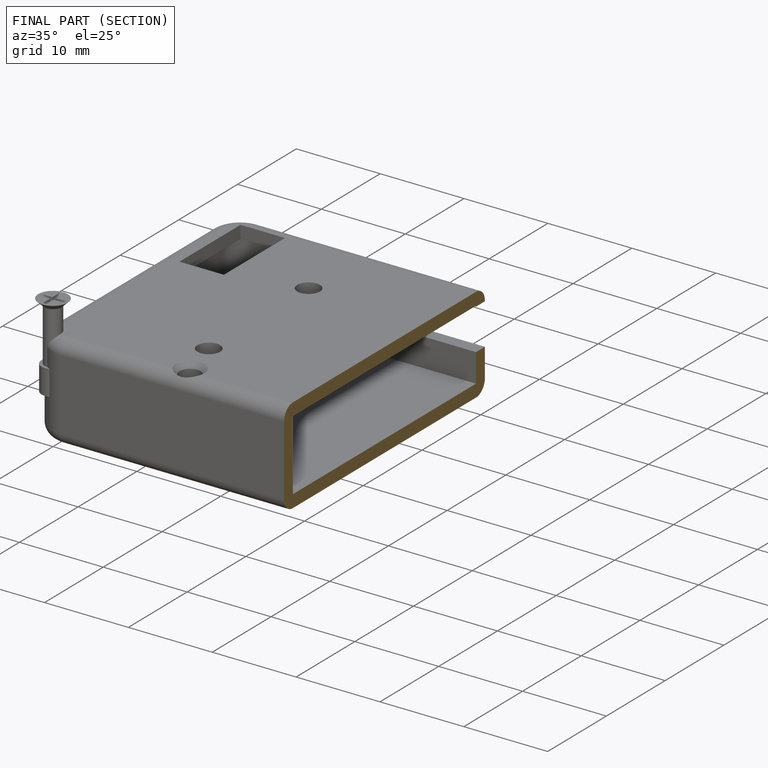
[diagram: finished part — half-section view (interior)]
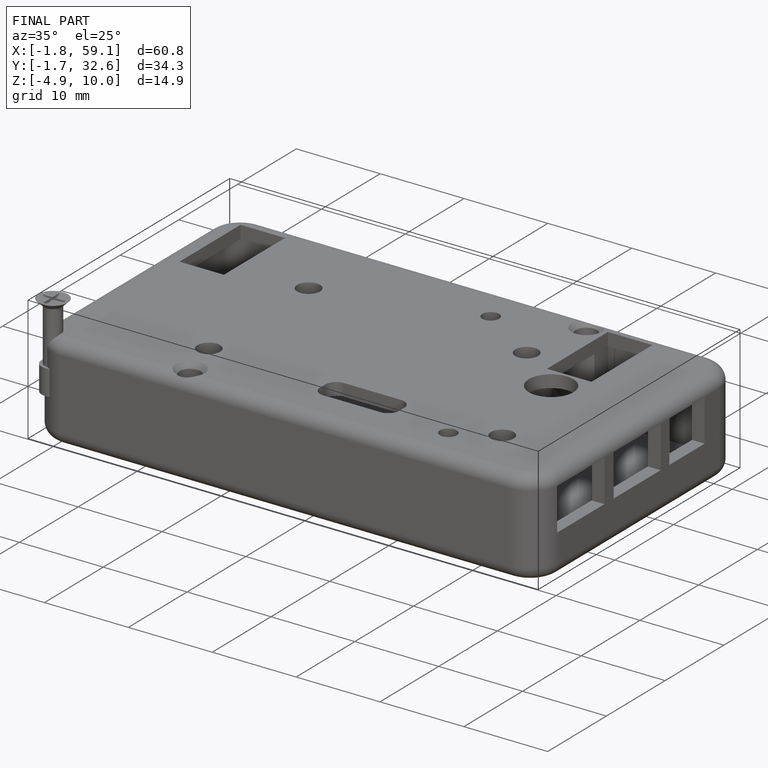
[diagram: finished part — iso view with bounding-box wireframe]
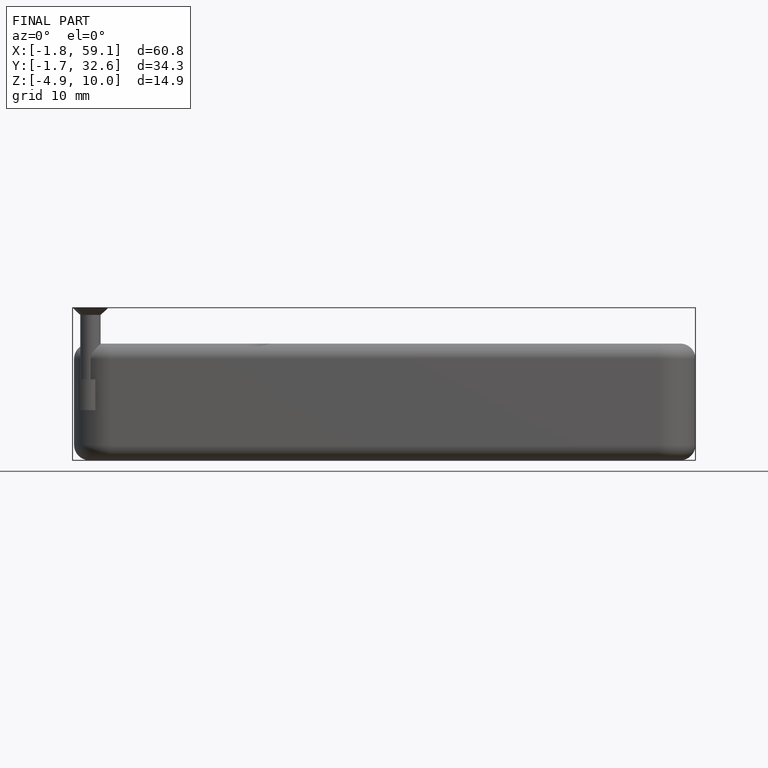
[diagram: finished part — front view with bounding-box wireframe]
